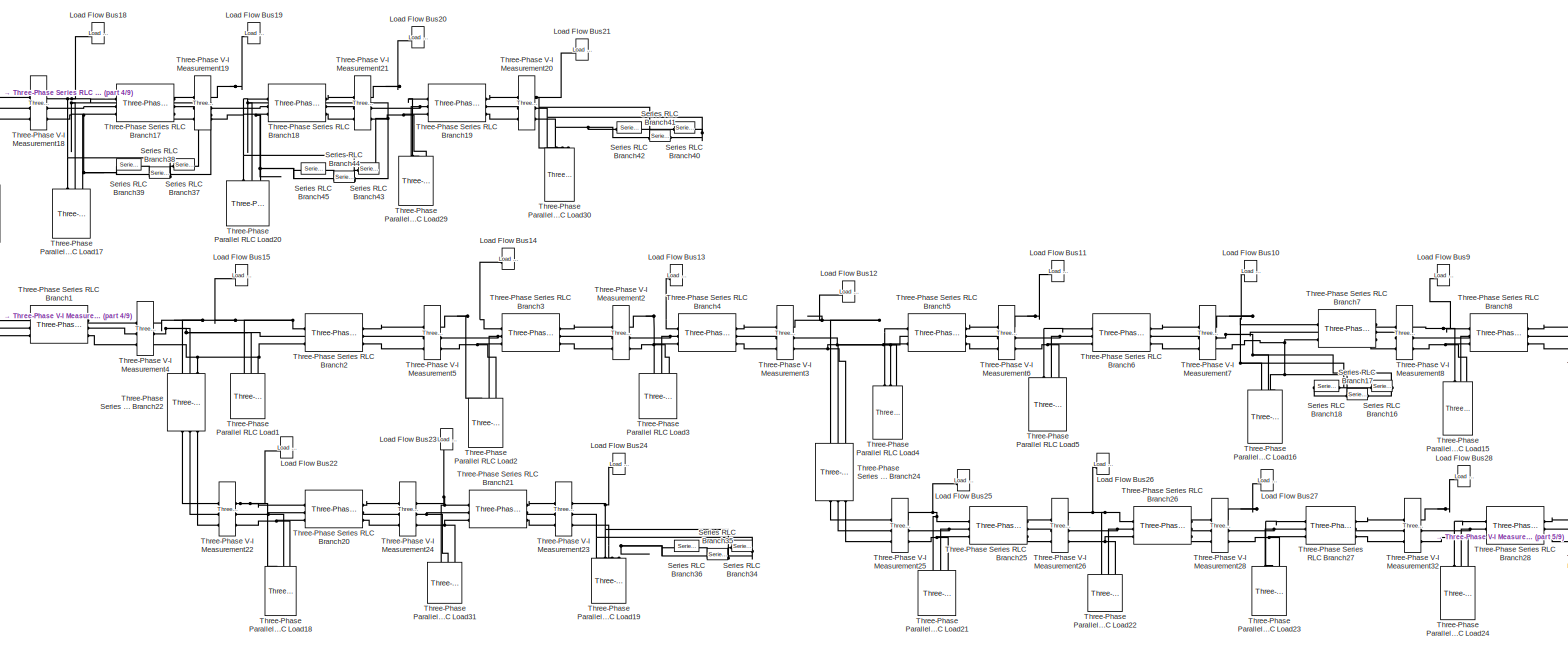
[diagram: root canvas - part 1/9, middle left region]
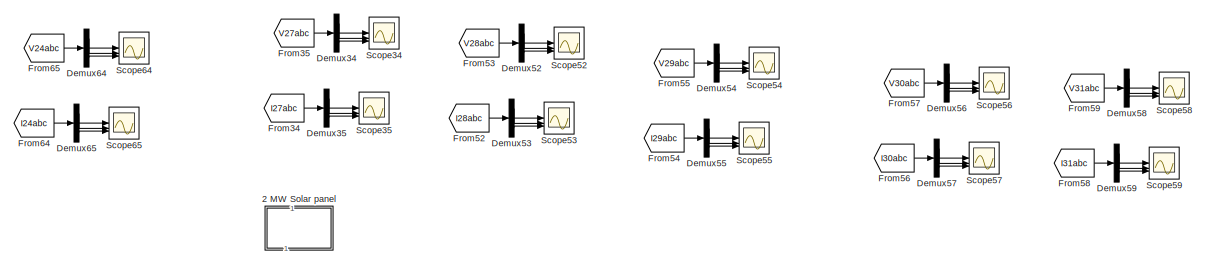
[diagram: root canvas - part 2/9, top right region]
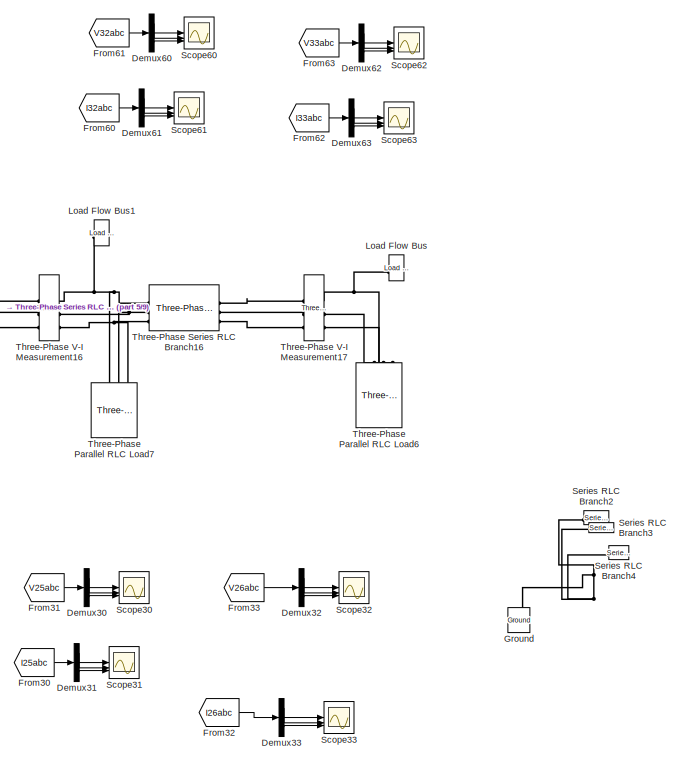
[diagram: root canvas - part 3/9, middle right region]
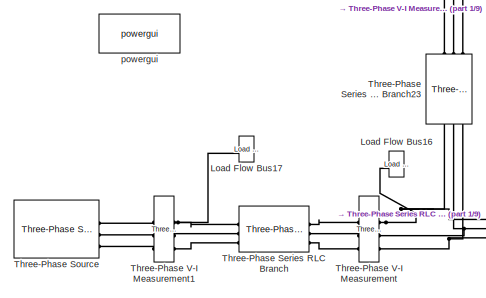
[diagram: root canvas - part 4/9, top left region]
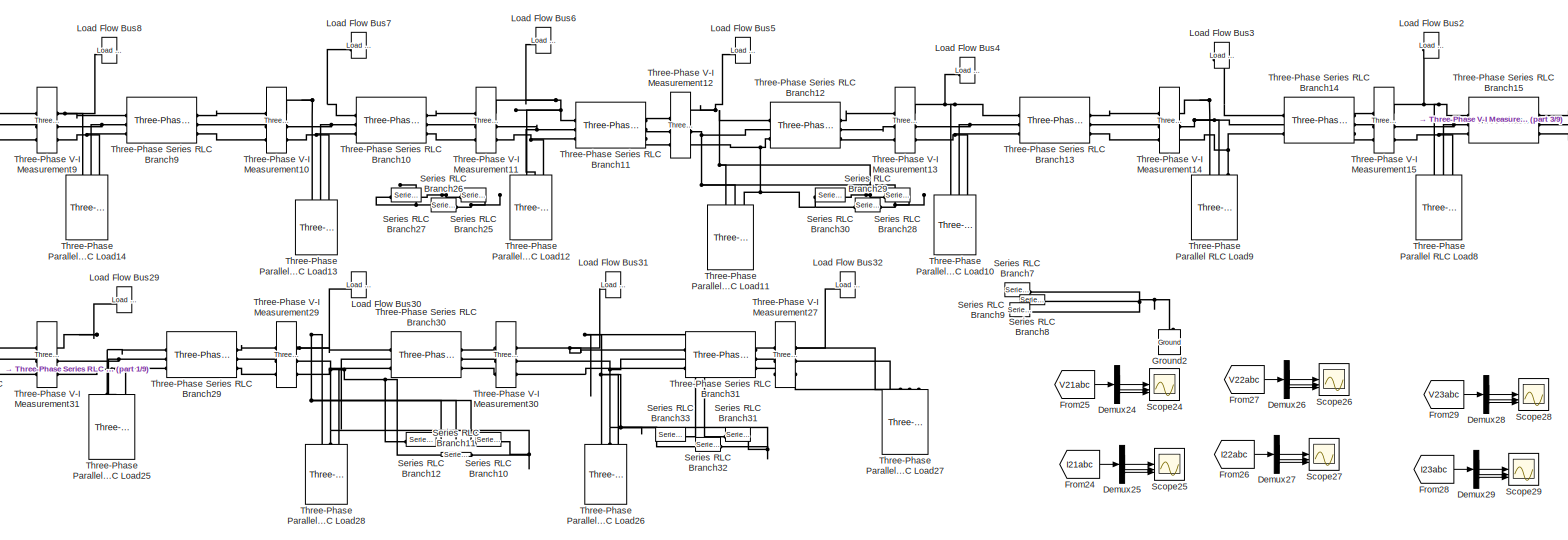
[diagram: root canvas - part 5/9, middle right region]
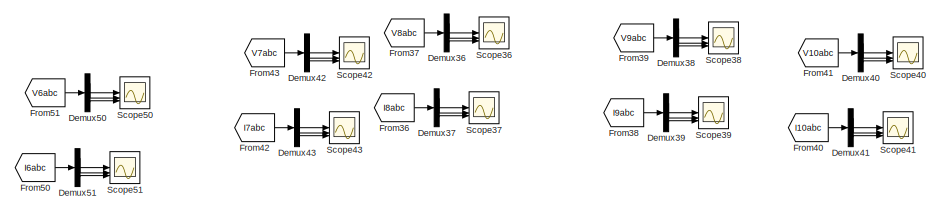
[diagram: root canvas - part 6/9, bottom left region]
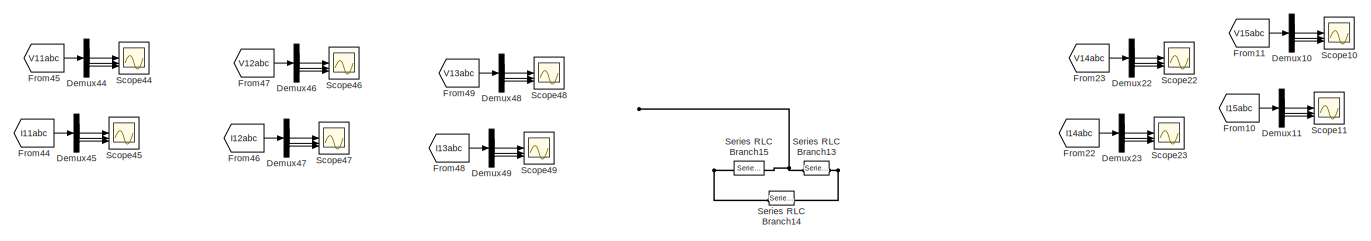
[diagram: root canvas - part 7/9, bottom center region]
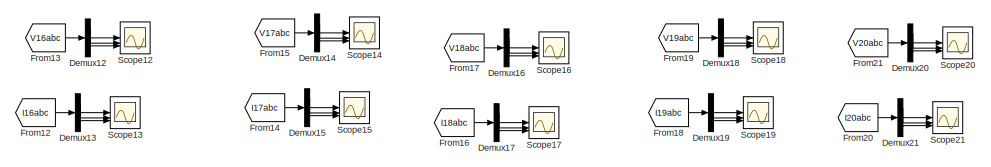
[diagram: root canvas - part 8/9, bottom right region]
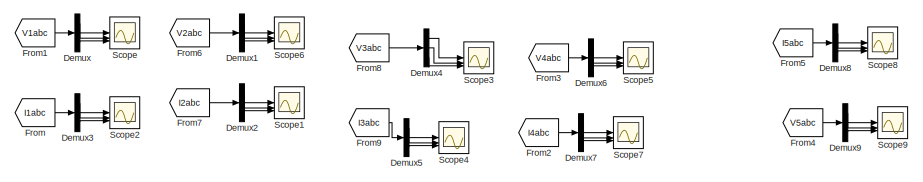
[diagram: root canvas - part 9/9, bottom left region]
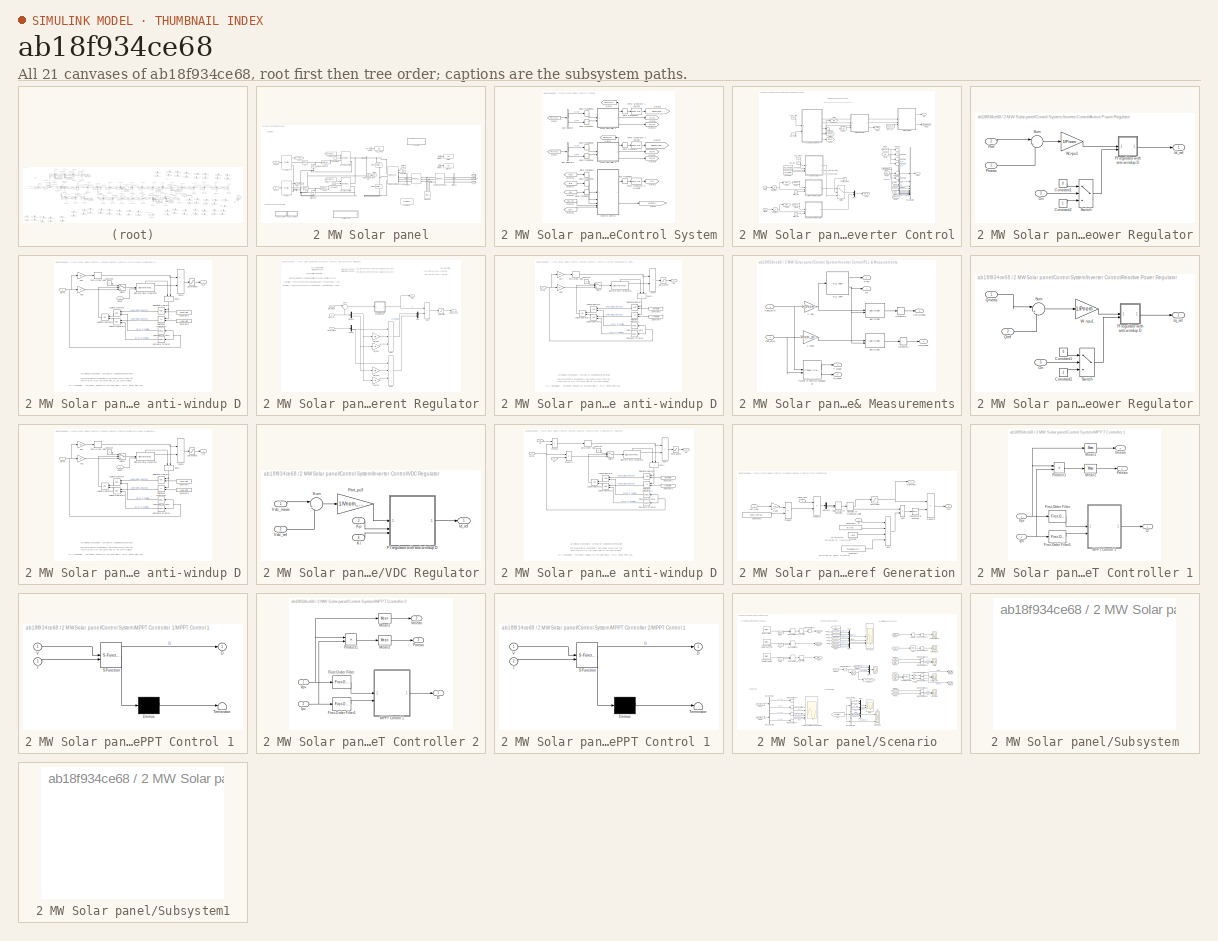
[diagram: thumbnail index - all 21 canvases of the model, root first then tree order]
MODEL slx_ab18f934ce68
KIND model
CONFIG AbsTol = auto
CONFIG EnableMultiTasking = on
CONFIG FixedStep = auto
CONFIG MaxStep = auto
CONFIG MinStep = auto
CONFIG RelTol = 1e-3
CONFIG SampleTimeConstraint = Unconstrained
CONFIG SolverName = FixedStepAuto
CONFIG StartTime = 0.0
CONFIG StopTime = 0.3
BLOCK [SubSystem] 2 MW Solar panel
  NameLocation = left
BLOCK [Reference] 2 MW Solar panel/150 kvar  REF=spsThreePhaseSeriesRLCLoadLib/Three-Phase
Series RLC Load
  AttributesFormatString = \n
  LibrarySourceBlock = sps_lib/Passives/Three-Phase\nSeries RLC Load
  SourceBlock = spsThreePhaseSeriesRLCLoadLib/Three-Phase\nSeries RLC Load
  SourceType = Three-Phase Series RLC Load
BLOCK [Reference] 2 MW Solar panel/2.25-MVA 500V // 25 kV  REF=spsThreePhaseTransformerTwoWindingsLib/Three-Phase
Transformer
(Two Windings)
  AttributesFormatString = \n
  LibrarySourceBlock = sps_lib/Power Grid Elements/Three-Phase\nTransformer\n(Two Windings)
  SourceBlock = spsThreePhaseTransformerTwoWindingsLib/Three-Phase\nTransformer\n(Two Windings)
  SourceType = Three-Phase Transformer (Two Windings)
BLOCK [Reference] 2 MW Solar panel/Boost Converter1  REF=spsBoostConverterLib/Boost Converter
  LibrarySourceBlock = sps_lib/Power Electronics/Boost Converter
  SourceBlock = spsBoostConverterLib/Boost Converter
  SourceType = Boost Converter
BLOCK [Reference] 2 MW Solar panel/Boost Converter2  REF=spsBoostConverterLib/Boost Converter
  LibrarySourceBlock = sps_lib/Power Electronics/Boost Converter
  SourceBlock = spsBoostConverterLib/Boost Converter
  SourceType = Boost Converter
BLOCK [Reference] 2 MW Solar panel/Clink M  REF=spsSeriesRLCBranchLib/Series RLC Branch
  LibrarySourceBlock = sps_lib/Passives/Series RLC Branch
  NameLocation = left
  SourceBlock = spsSeriesRLCBranchLib/Series RLC Branch
  SourceType = Series RLC Branch
BLOCK [Reference] 2 MW Solar panel/Clink P  REF=spsSeriesRLCBranchLib/Series RLC Branch
  LibrarySourceBlock = sps_lib/Passives/Series RLC Branch
  NameLocation = left
  SourceBlock = spsSeriesRLCBranchLib/Series RLC Branch
  SourceType = Series RLC Branch
BLOCK [Constant] 2 MW Solar panel/Constant
  SampleTime = Ts
  Value = 0
BLOCK [Constant] 2 MW Solar panel/Constant7
  SampleTime = Ts
  Value = 0
BLOCK [Constant] 2 MW Solar panel/Constant8
  SampleTime = Ts
  Value = 0
BLOCK [SubSystem] 2 MW Solar panel/Control System
BLOCK [BusSelector] 2 MW Solar panel/Control System/Bus Selector
  OutputSignals = V_PV,I_PV
BLOCK [BusSelector] 2 MW Solar panel/Control System/Bus Selector2
  OutputSignals = V_PV,I_PV
BLOCK [From] 2 MW Solar panel/Control System/From1
  GotoTag = PVArray1
  TagVisibility = global
BLOCK [From] 2 MW Solar panel/Control System/From2
  GotoTag = PVArray2
  TagVisibility = global
BLOCK [From] 2 MW Solar panel/Control System/From23
  GotoTag = Vgrid
  TagVisibility = global
BLOCK [From] 2 MW Solar panel/Control System/From24
  GotoTag = Igrid
  TagVisibility = global
BLOCK [From] 2 MW Solar panel/Control System/From25
  GotoTag = Vdc
  TagVisibility = global
BLOCK [From] 2 MW Solar panel/Control System/From26
  GotoTag = Qref
  TagVisibility = global
BLOCK [From] 2 MW Solar panel/Control System/From28
  GotoTag = Vdc_ref
  TagVisibility = global
BLOCK [Goto] 2 MW Solar panel/Control System/Goto1
  GotoTag = Dboost_PV1
  TagVisibility = global
BLOCK [Goto] 2 MW Solar panel/Control System/Goto10
  GotoTag = BoostConverter1
  TagVisibility = global
BLOCK [Goto] 2 MW Solar panel/Control System/Goto11
  GotoTag = Vref
  TagVisibility = global
BLOCK [Goto] 2 MW Solar panel/Control System/Goto13
  GotoTag = Pm_PV1
  TagVisibility = global
BLOCK [Goto] 2 MW Solar panel/Control System/Goto15
  GotoTag = BoostConverter2
  TagVisibility = global
BLOCK [Goto] 2 MW Solar panel/Control System/Goto19
  GotoTag = Pm_PV2
  TagVisibility = global
BLOCK [Goto] 2 MW Solar panel/Control System/Goto2
  GotoTag = Dboost_PV2
  TagVisibility = global
BLOCK [Goto] 2 MW Solar panel/Control System/Goto20
  GotoTag = Vm_PV2
  TagVisibility = global
BLOCK [Goto] 2 MW Solar panel/Control System/Goto7
  GotoTag = InverterControl
  TagVisibility = global
BLOCK [Goto] 2 MW Solar panel/Control System/Goto9
  GotoTag = Vm_PV1
  TagVisibility = global
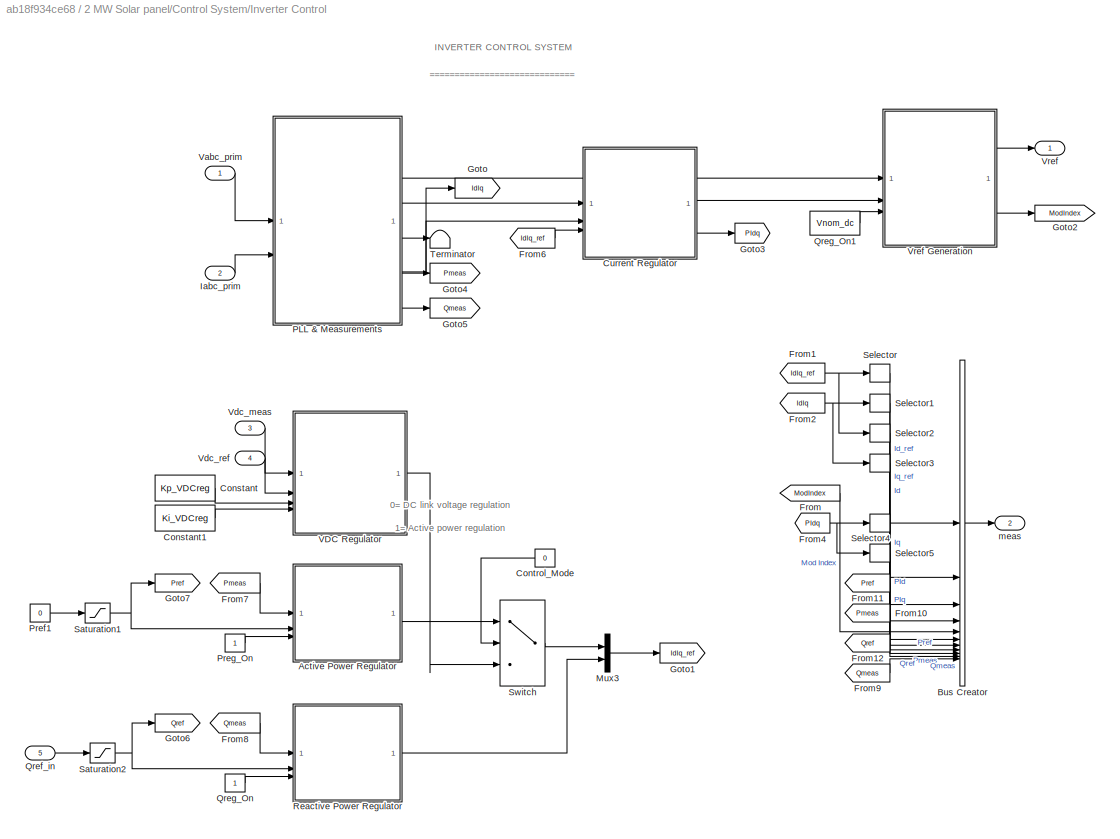
BLOCK [SubSystem] 2 MW Solar panel/Control System/Inverter Control
BLOCK [SubSystem] 2 MW Solar panel/Control System/Inverter Control/Active Power Regulator
BLOCK [Constant] 2 MW Solar panel/Control System/Inverter Control/Active Power Regulator/Constant1
  Value = 0
BLOCK [Constant] 2 MW Solar panel/Control System/Inverter Control/Active Power Regulator/Constant2
BLOCK [Outport] 2 MW Solar panel/Control System/Inverter Control/Active Power Regulator/Id_ref
  InitialOutput = 0
  VectorParamsAs1DForOutWhenUnconnected = off
BLOCK [Inport] 2 MW Solar panel/Control System/Inverter Control/Active Power Regulator/On
  Port = 3
  PortDimensions = 1
BLOCK [SubSystem] 2 MW Solar panel/Control System/Inverter Control/Active Power Regulator/PI regulator with anti-windup D
  DialogController = POWERSYS.PowerSysDialog
BLOCK [Reference] 2 MW Solar panel/Control System/Inverter Control/Active Power Regulator/PI regulator with anti-windup D/Compare To Zero  REF=simulink/Logic and Bit
Operations/Compare
To Zero
  SourceBlock = simulink/Logic and Bit\nOperations/Compare\nTo Zero
  SourceType = Compare To Zero
BLOCK [Reference] 2 MW Solar panel/Control System/Inverter Control/Active Power Regulator/PI regulator with anti-windup D/Compare To Zero1  REF=simulink/Logic and Bit
Operations/Compare
To Zero
  SourceBlock = simulink/Logic and Bit\nOperations/Compare\nTo Zero
  SourceType = Compare To Zero
BLOCK [Constant] 2 MW Solar panel/Control System/Inverter Control/Active Power Regulator/PI regulator with anti-windup D/Constant
  Value = 0
BLOCK [Constant] 2 MW Solar panel/Control System/Inverter Control/Active Power Regulator/PI regulator with anti-windup D/Constant1
  Value = UpperLimit
BLOCK [Constant] 2 MW Solar panel/Control System/Inverter Control/Active Power Regulator/PI regulator with anti-windup D/Constant3
  Value = LowerLimit
BLOCK [DiscreteIntegrator] 2 MW Solar panel/Control System/Inverter Control/Active Power Regulator/PI regulator with anti-windup D/Discrete-Time Integrator
  ExternalReset = level
  ICPrevOutput = DiscIntNeverNeededParam
  ICPrevScaledInput = DiscIntNeverNeededParam
  InitialCondition = Init
  IntegratorMethod = Integration: Trapezoidal
  LimitOutput = on
  LowerSaturationLimit = LowerLimit
  SampleTime = Ts
  ShowStatePort = on
  UpperSaturationLimit = UpperLimit
BLOCK [Inport] 2 MW Solar panel/Control System/Inverter Control/Active Power Regulator/PI regulator with anti-windup D/Error
  SampleTime = Ts
BLOCK [Gain] 2 MW Solar panel/Control System/Inverter Control/Active Power Regulator/PI regulator with anti-windup D/Kp4
  Gain = Kp
  OutDataTypeStr = Inherit: Same as input
  ParamDataTypeStr = Inherit: Same as input
  SampleTime = Ts
  SaturateOnIntegerOverflow = on
BLOCK [Gain] 2 MW Solar panel/Control System/Inverter Control/Active Power Regulator/PI regulator with anti-windup D/Kp5
  Gain = Ki
  OutDataTypeStr = Inherit: Same as input
  ParamDataTypeStr = Inherit: Same as input
  SampleTime = Ts
  SaturateOnIntegerOverflow = on
BLOCK [Logic] 2 MW Solar panel/Control System/Inverter Control/Active Power Regulator/PI regulator with anti-windup D/Logical Operator
  AllPortsSameDT = off
  OutDataTypeStr = boolean
BLOCK [Logic] 2 MW Solar panel/Control System/Inverter Control/Active Power Regulator/PI regulator with anti-windup D/Logical Operator1
  AllPortsSameDT = off
  OutDataTypeStr = boolean
BLOCK [Logic] 2 MW Solar panel/Control System/Inverter Control/Active Power Regulator/PI regulator with anti-windup D/Logical Operator2
  AllPortsSameDT = off
  Operator = OR
  OutDataTypeStr = boolean
BLOCK [Outport] 2 MW Solar panel/Control System/Inverter Control/Active Power Regulator/PI regulator with anti-windup D/Out
  InitialOutput = 0
  SampleTime = Ts
  VectorParamsAs1DForOutWhenUnconnected = off
BLOCK [RelationalOperator] 2 MW Solar panel/Control System/Inverter Control/Active Power Regulator/PI regulator with anti-windup D/Relational Operator
  InputSameDT = off
  OutDataTypeStr = boolean
BLOCK [RelationalOperator] 2 MW Solar panel/Control System/Inverter Control/Active Power Regulator/PI regulator with anti-windup D/Relational Operator1
  InputSameDT = off
  Operator = <=
  OutDataTypeStr = boolean
BLOCK [Inport] 2 MW Solar panel/Control System/Inverter Control/Active Power Regulator/PI regulator with anti-windup D/Reset
  Port = 2
  SampleTime = Ts
BLOCK [Saturate] 2 MW Solar panel/Control System/Inverter Control/Active Power Regulator/PI regulator with anti-windup D/Saturation2
  LowerLimit = LowerLimit
  NameLocation = top
  SampleTime = Ts
  UpperLimit = UpperLimit
BLOCK [Sum] 2 MW Solar panel/Control System/Inverter Control/Active Power Regulator/PI regulator with anti-windup D/Sum1
  IconShape = rectangular
  InputSameDT = on
  NameLocation = left
  OutDataTypeStr = Inherit: Same as first input
  SampleTime = Ts
  SaturateOnIntegerOverflow = on
BLOCK [Sum] 2 MW Solar panel/Control System/Inverter Control/Active Power Regulator/PI regulator with anti-windup D/Sum6
  IconShape = rectangular
  InputSameDT = on
  OutDataTypeStr = Inherit: Same as first input
  SampleTime = Ts
  SaturateOnIntegerOverflow = on
BLOCK [Switch] 2 MW Solar panel/Control System/Inverter Control/Active Power Regulator/PI regulator with anti-windup D/Switch
  Criteria = u2 > Threshold
  InputSameDT = off
  SaturateOnIntegerOverflow = off
BLOCK [ZeroOrderHold] 2 MW Solar panel/Control System/Inverter Control/Active Power Regulator/PI regulator with anti-windup D/Zero-Order Hold
  SampleTime = Ts
BLOCK [Inport] 2 MW Solar panel/Control System/Inverter Control/Active Power Regulator/Pmeas
  PortDimensions = 1
BLOCK [Inport] 2 MW Solar panel/Control System/Inverter Control/Active Power Regulator/Pref
  Port = 2
  PortDimensions = 1
BLOCK [Sum] 2 MW Solar panel/Control System/Inverter Control/Active Power Regulator/Sum
  Inputs = |+-
BLOCK [Switch] 2 MW Solar panel/Control System/Inverter Control/Active Power Regulator/Switch
  Criteria = u2 ~= 0
  InputSameDT = off
  SaturateOnIntegerOverflow = off
BLOCK [Gain] 2 MW Solar panel/Control System/Inverter Control/Active Power Regulator/W->pu1
  Gain = 1/Pnom
  OutDataTypeStr = Inherit: Same as input
  ParamDataTypeStr = Inherit: Same as input
  SaturateOnIntegerOverflow = on
BLOCK [BusCreator] 2 MW Solar panel/Control System/Inverter Control/Bus Creator
  DisplayOption = bar
  InheritFromInputs = on
  Inputs = 11
BLOCK [Constant] 2 MW Solar panel/Control System/Inverter Control/Constant
  SampleTime = Ts
  Value = Kp_VDCreg
BLOCK [Constant] 2 MW Solar panel/Control System/Inverter Control/Constant1
  SampleTime = Ts
  Value = Ki_VDCreg
BLOCK [Constant] 2 MW Solar panel/Control System/Inverter Control/Control_Mode
  Value = 0
BLOCK [SubSystem] 2 MW Solar panel/Control System/Inverter Control/Current Regulator
BLOCK [Sum] 2 MW Solar panel/Control System/Inverter Control/Current Regulator/Add1
  IconShape = rectangular
  Inputs = ++-
BLOCK [Sum] 2 MW Solar panel/Control System/Inverter Control/Current Regulator/Add2
  IconShape = rectangular
BLOCK [Sum] 2 MW Solar panel/Control System/Inverter Control/Current Regulator/Add3
  IconShape = rectangular
  Inputs = +++
BLOCK [Demux] 2 MW Solar panel/Control System/Inverter Control/Current Regulator/Demux
  Outputs = 2
BLOCK [Demux] 2 MW Solar panel/Control System/Inverter Control/Current Regulator/Demux1
  Outputs = 2
BLOCK [Inport] 2 MW Solar panel/Control System/Inverter Control/Current Regulator/IdIq_meas
  Port = 2
  PortDimensions = 2
BLOCK [Inport] 2 MW Solar panel/Control System/Inverter Control/Current Regulator/IdIq_ref
  Port = 3
  PortDimensions = 2
BLOCK [Gain] 2 MW Solar panel/Control System/Inverter Control/Current Regulator/Ltot_pu1
  Gain = Lff
  OutDataTypeStr = Inherit: Same as input
  ParamDataTypeStr = Inherit: Same as input
  SaturateOnIntegerOverflow = on
BLOCK [Gain] 2 MW Solar panel/Control System/Inverter Control/Current Regulator/Ltot_pu2
  Gain = Lff
  OutDataTypeStr = Inherit: Same as input
  ParamDataTypeStr = Inherit: Same as input
  SaturateOnIntegerOverflow = on
BLOCK [Mux] 2 MW Solar panel/Control System/Inverter Control/Current Regulator/Mux
  DisplayOption = bar
  Inputs = 2
BLOCK [SubSystem] 2 MW Solar panel/Control System/Inverter Control/Current Regulator/PI regulator with anti-windup D
  DialogController = POWERSYS.PowerSysDialog
BLOCK [Reference] 2 MW Solar panel/Control System/Inverter Control/Current Regulator/PI regulator with anti-windup D/Compare To Zero  REF=simulink/Logic and Bit
Operations/Compare
To Zero
  SourceBlock = simulink/Logic and Bit\nOperations/Compare\nTo Zero
  SourceType = Compare To Zero
BLOCK [Reference] 2 MW Solar panel/Control System/Inverter Control/Current Regulator/PI regulator with anti-windup D/Compare To Zero1  REF=simulink/Logic and Bit
Operations/Compare
To Zero
  SourceBlock = simulink/Logic and Bit\nOperations/Compare\nTo Zero
  SourceType = Compare To Zero
BLOCK [Constant] 2 MW Solar panel/Control System/Inverter Control/Current Regulator/PI regulator with anti-windup D/Constant
  Value = 0
BLOCK [Constant] 2 MW Solar panel/Control System/Inverter Control/Current Regulator/PI regulator with anti-windup D/Constant1
  Value = UpperLimit
BLOCK [Constant] 2 MW Solar panel/Control System/Inverter Control/Current Regulator/PI regulator with anti-windup D/Constant3
  Value = LowerLimit
BLOCK [DiscreteIntegrator] 2 MW Solar panel/Control System/Inverter Control/Current Regulator/PI regulator with anti-windup D/Discrete-Time Integrator
  ICPrevOutput = DiscIntNeverNeededParam
  ICPrevScaledInput = DiscIntNeverNeededParam
  InitialCondition = Init
  IntegratorMethod = Integration: Trapezoidal
  LimitOutput = on
  LowerSaturationLimit = LowerLimit
  SampleTime = Ts
  ShowStatePort = on
  UpperSaturationLimit = UpperLimit
BLOCK [Inport] 2 MW Solar panel/Control System/Inverter Control/Current Regulator/PI regulator with anti-windup D/Error
  SampleTime = Ts
BLOCK [Gain] 2 MW Solar panel/Control System/Inverter Control/Current Regulator/PI regulator with anti-windup D/Kp4
  Gain = Kp
  OutDataTypeStr = Inherit: Same as input
  ParamDataTypeStr = Inherit: Same as input
  SampleTime = Ts
  SaturateOnIntegerOverflow = on
BLOCK [Gain] 2 MW Solar panel/Control System/Inverter Control/Current Regulator/PI regulator with anti-windup D/Kp5
  Gain = Ki
  OutDataTypeStr = Inherit: Same as input
  ParamDataTypeStr = Inherit: Same as input
  SampleTime = Ts
  SaturateOnIntegerOverflow = on
BLOCK [Logic] 2 MW Solar panel/Control System/Inverter Control/Current Regulator/PI regulator with anti-windup D/Logical Operator
  AllPortsSameDT = off
  OutDataTypeStr = boolean
BLOCK [Logic] 2 MW Solar panel/Control System/Inverter Control/Current Regulator/PI regulator with anti-windup D/Logical Operator1
  AllPortsSameDT = off
  OutDataTypeStr = boolean
BLOCK [Logic] 2 MW Solar panel/Control System/Inverter Control/Current Regulator/PI regulator with anti-windup D/Logical Operator2
  AllPortsSameDT = off
  Operator = OR
  OutDataTypeStr = boolean
BLOCK [Outport] 2 MW Solar panel/Control System/Inverter Control/Current Regulator/PI regulator with anti-windup D/Out
  InitialOutput = 0
  SampleTime = Ts
  VectorParamsAs1DForOutWhenUnconnected = off
BLOCK [RelationalOperator] 2 MW Solar panel/Control System/Inverter Control/Current Regulator/PI regulator with anti-windup D/Relational Operator
  InputSameDT = off
  OutDataTypeStr = boolean
BLOCK [RelationalOperator] 2 MW Solar panel/Control System/Inverter Control/Current Regulator/PI regulator with anti-windup D/Relational Operator1
  InputSameDT = off
  Operator = <=
  OutDataTypeStr = boolean
BLOCK [Saturate] 2 MW Solar panel/Control System/Inverter Control/Current Regulator/PI regulator with anti-windup D/Saturation2
  LowerLimit = LowerLimit
  NameLocation = top
  SampleTime = Ts
  UpperLimit = UpperLimit
BLOCK [Sum] 2 MW Solar panel/Control System/Inverter Control/Current Regulator/PI regulator with anti-windup D/Sum1
  IconShape = rectangular
  InputSameDT = on
  NameLocation = left
  OutDataTypeStr = Inherit: Same as first input
  SampleTime = Ts
  SaturateOnIntegerOverflow = on
BLOCK [Sum] 2 MW Solar panel/Control System/Inverter Control/Current Regulator/PI regulator with anti-windup D/Sum6
  IconShape = rectangular
  InputSameDT = on
  OutDataTypeStr = Inherit: Same as first input
  SampleTime = Ts
  SaturateOnIntegerOverflow = on
BLOCK [Switch] 2 MW Solar panel/Control System/Inverter Control/Current Regulator/PI regulator with anti-windup D/Switch
  Criteria = u2 > Threshold
  InputSameDT = off
  SaturateOnIntegerOverflow = off
BLOCK [ZeroOrderHold] 2 MW Solar panel/Control System/Inverter Control/Current Regulator/PI regulator with anti-windup D/Zero-Order Hold
  SampleTime = Ts
BLOCK [Outport] 2 MW Solar panel/Control System/Inverter Control/Current Regulator/PIdq
  Port = 2
  VectorParamsAs1DForOutWhenUnconnected = off
BLOCK [Gain] 2 MW Solar panel/Control System/Inverter Control/Current Regulator/Rtot_pu1
  Gain = Rff
  NameLocation = top
  OutDataTypeStr = Inherit: Same as input
  ParamDataTypeStr = Inherit: Same as input
  SaturateOnIntegerOverflow = on
BLOCK [Gain] 2 MW Solar panel/Control System/Inverter Control/Current Regulator/Rtot_pu5
  Gain = Rff
  NameLocation = top
  OutDataTypeStr = Inherit: Same as input
  ParamDataTypeStr = Inherit: Same as input
  SaturateOnIntegerOverflow = on
BLOCK [Saturate] 2 MW Solar panel/Control System/Inverter Control/Current Regulator/Saturation
  LowerLimit = Limits_Ireg(2)
  UpperLimit = Limits_Ireg(1)
BLOCK [Sum] 2 MW Solar panel/Control System/Inverter Control/Current Regulator/Sum
  Inputs = |-+
BLOCK [Outport] 2 MW Solar panel/Control System/Inverter Control/Current Regulator/VdVq_conv
  VectorParamsAs1DForOutWhenUnconnected = off
BLOCK [Inport] 2 MW Solar panel/Control System/Inverter Control/Current Regulator/VdVq_meas
  PortDimensions = 2
BLOCK [From] 2 MW Solar panel/Control System/Inverter Control/From
  GotoTag = ModIndex
BLOCK [From] 2 MW Solar panel/Control System/Inverter Control/From1
  GotoTag = IdIq_ref
BLOCK [From] 2 MW Solar panel/Control System/Inverter Control/From10
  GotoTag = Pmeas
BLOCK [From] 2 MW Solar panel/Control System/Inverter Control/From11
  GotoTag = Pref
BLOCK [From] 2 MW Solar panel/Control System/Inverter Control/From12
  GotoTag = Qref
BLOCK [From] 2 MW Solar panel/Control System/Inverter Control/From2
  GotoTag = IdIq
BLOCK [From] 2 MW Solar panel/Control System/Inverter Control/From4
  GotoTag = PIdq
BLOCK [From] 2 MW Solar panel/Control System/Inverter Control/From6
  GotoTag = IdIq_ref
BLOCK [From] 2 MW Solar panel/Control System/Inverter Control/From7
  GotoTag = Pmeas
BLOCK [From] 2 MW Solar panel/Control System/Inverter Control/From8
  GotoTag = Qmeas
BLOCK [From] 2 MW Solar panel/Control System/Inverter Control/From9
  GotoTag = Qmeas
BLOCK [Goto] 2 MW Solar panel/Control System/Inverter Control/Goto
  GotoTag = IdIq
BLOCK [Goto] 2 MW Solar panel/Control System/Inverter Control/Goto1
  GotoTag = IdIq_ref
BLOCK [Goto] 2 MW Solar panel/Control System/Inverter Control/Goto2
  GotoTag = ModIndex
BLOCK [Goto] 2 MW Solar panel/Control System/Inverter Control/Goto3
  GotoTag = PIdq
BLOCK [Goto] 2 MW Solar panel/Control System/Inverter Control/Goto4
  GotoTag = Pmeas
BLOCK [Goto] 2 MW Solar panel/Control System/Inverter Control/Goto5
  GotoTag = Qmeas
BLOCK [Goto] 2 MW Solar panel/Control System/Inverter Control/Goto6
  GotoTag = Qref
BLOCK [Goto] 2 MW Solar panel/Control System/Inverter Control/Goto7
  GotoTag = Pref
BLOCK [Inport] 2 MW Solar panel/Control System/Inverter Control/Iabc_prim
  Port = 2
  PortDimensions = 3
BLOCK [Mux] 2 MW Solar panel/Control System/Inverter Control/Mux3
  DisplayOption = bar
  Inputs = 2
BLOCK [SubSystem] 2 MW Solar panel/Control System/Inverter Control/PLL & Measurements
BLOCK [Outport] 2 MW Solar panel/Control System/Inverter Control/PLL & Measurements/Freq
  Port = 4
  VectorParamsAs1DForOutWhenUnconnected = off
BLOCK [Inport] 2 MW Solar panel/Control System/Inverter Control/PLL & Measurements/Iabc_prim
  Port = 2
BLOCK [Outport] 2 MW Solar panel/Control System/Inverter Control/PLL & Measurements/IdIq_meas
  Port = 3
  VectorParamsAs1DForOutWhenUnconnected = off
BLOCK [Reference] 2 MW Solar panel/Control System/Inverter Control/PLL & Measurements/PLL (3ph)  REF=spsPLL3phLib/PLL
(3ph)
  LibrarySourceBlock = sps_lib/Control/PLL\n(3ph)
  SourceBlock = spsPLL3phLib/PLL\n(3ph)
  SourceType = PLL (3ph)
BLOCK [Outport] 2 MW Solar panel/Control System/Inverter Control/PLL & Measurements/P_meas
  Port = 5
  VectorParamsAs1DForOutWhenUnconnected = off
BLOCK [Reference] 2 MW Solar panel/Control System/Inverter Control/PLL & Measurements/Power (Positive-Sequence)  REF=spsPowerPositiveSequenceLib/Power
(Positive-Sequence)
  LibrarySourceBlock = sps_lib/Sensors and Measurements/Power\n(Positive-Sequence)
  SourceBlock = spsPowerPositiveSequenceLib/Power\n(Positive-Sequence)
  SourceType = Power (Positive-Sequence)
BLOCK [Outport] 2 MW Solar panel/Control System/Inverter Control/PLL & Measurements/Q_meas
  Port = 6
  VectorParamsAs1DForOutWhenUnconnected = off
BLOCK [Selector] 2 MW Solar panel/Control System/Inverter Control/PLL & Measurements/Selector1
  IndexOptions = Index vector (dialog)
  Indices = [1 2]
  InputPortWidth = 3
  OutputSizes = 1
BLOCK [Selector] 2 MW Solar panel/Control System/Inverter Control/PLL & Measurements/Selector2
  IndexOptions = Index vector (dialog)
  Indices = [1 2]
  InputPortWidth = 3
  OutputSizes = 1
BLOCK [Gain] 2 MW Solar panel/Control System/Inverter Control/PLL & Measurements/V->pu
  Gain = 1/(Vnom_prim*sqrt(2)/sqrt(3))
  OutDataTypeStr = Inherit: Same as input
  ParamDataTypeStr = Inherit: Same as input
  SaturateOnIntegerOverflow = on
BLOCK [Gain] 2 MW Solar panel/Control System/Inverter Control/PLL & Measurements/V->pu1
  Gain = Vnom_prim*sqrt(3)/Pnom/sqrt(2)
  OutDataTypeStr = Inherit: Same as input
  ParamDataTypeStr = Inherit: Same as input
  SaturateOnIntegerOverflow = on
BLOCK [Inport] 2 MW Solar panel/Control System/Inverter Control/PLL & Measurements/Vabc_prim
BLOCK [Outport] 2 MW Solar panel/Control System/Inverter Control/PLL & Measurements/VdVq_meas
  Port = 2
  VectorParamsAs1DForOutWhenUnconnected = off
BLOCK [Reference] 2 MW Solar panel/Control System/Inverter Control/PLL & Measurements/abc to dq0  REF=spsabctodq0Lib/abc to dq0
  LibrarySourceBlock = sps_lib/Control/abc to dq0
  SourceBlock = spsabctodq0Lib/abc to dq0
  SourceType = abc to dq0 Transformation
BLOCK [Reference] 2 MW Solar panel/Control System/Inverter Control/PLL & Measurements/abc to dq1  REF=spsabctodq0Lib/abc to dq0
  LibrarySourceBlock = sps_lib/Control/abc to dq0
  SourceBlock = spsabctodq0Lib/abc to dq0
  SourceType = abc to dq0 Transformation
BLOCK [Outport] 2 MW Solar panel/Control System/Inverter Control/PLL & Measurements/wt
  VectorParamsAs1DForOutWhenUnconnected = off
BLOCK [Constant] 2 MW Solar panel/Control System/Inverter Control/Pref1
  SampleTime = Ts
  Value = 0
BLOCK [Constant] 2 MW Solar panel/Control System/Inverter Control/Preg_On
BLOCK [Inport] 2 MW Solar panel/Control System/Inverter Control/Qref_in
  Port = 5
  PortDimensions = 1
BLOCK [Constant] 2 MW Solar panel/Control System/Inverter Control/Qreg_On
BLOCK [Constant] 2 MW Solar panel/Control System/Inverter Control/Qreg_On1
  Value = Vnom_dc
BLOCK [SubSystem] 2 MW Solar panel/Control System/Inverter Control/Reactive Power Regulator
BLOCK [Constant] 2 MW Solar panel/Control System/Inverter Control/Reactive Power Regulator/Constant1
  Value = 0
BLOCK [Constant] 2 MW Solar panel/Control System/Inverter Control/Reactive Power Regulator/Constant2
BLOCK [Outport] 2 MW Solar panel/Control System/Inverter Control/Reactive Power Regulator/Iq_ref
  InitialOutput = 0
  VectorParamsAs1DForOutWhenUnconnected = off
BLOCK [Inport] 2 MW Solar panel/Control System/Inverter Control/Reactive Power Regulator/On
  Port = 3
  PortDimensions = 1
BLOCK [SubSystem] 2 MW Solar panel/Control System/Inverter Control/Reactive Power Regulator/PI regulator with anti-windup D
  DialogController = POWERSYS.PowerSysDialog
BLOCK [Reference] 2 MW Solar panel/Control System/Inverter Control/Reactive Power Regulator/PI regulator with anti-windup D/Compare To Zero  REF=simulink/Logic and Bit
Operations/Compare
To Zero
  SourceBlock = simulink/Logic and Bit\nOperations/Compare\nTo Zero
  SourceType = Compare To Zero
BLOCK [Reference] 2 MW Solar panel/Control System/Inverter Control/Reactive Power Regulator/PI regulator with anti-windup D/Compare To Zero1  REF=simulink/Logic and Bit
Operations/Compare
To Zero
  SourceBlock = simulink/Logic and Bit\nOperations/Compare\nTo Zero
  SourceType = Compare To Zero
BLOCK [Constant] 2 MW Solar panel/Control System/Inverter Control/Reactive Power Regulator/PI regulator with anti-windup D/Constant
  Value = 0
BLOCK [Constant] 2 MW Solar panel/Control System/Inverter Control/Reactive Power Regulator/PI regulator with anti-windup D/Constant1
  Value = UpperLimit
BLOCK [Constant] 2 MW Solar panel/Control System/Inverter Control/Reactive Power Regulator/PI regulator with anti-windup D/Constant3
  Value = LowerLimit
BLOCK [DiscreteIntegrator] 2 MW Solar panel/Control System/Inverter Control/Reactive Power Regulator/PI regulator with anti-windup D/Discrete-Time Integrator
  ExternalReset = level
  ICPrevOutput = DiscIntNeverNeededParam
  ICPrevScaledInput = DiscIntNeverNeededParam
  InitialCondition = Init
  IntegratorMethod = Integration: Trapezoidal
  LimitOutput = on
  LowerSaturationLimit = LowerLimit
  SampleTime = Ts
  ShowStatePort = on
  UpperSaturationLimit = UpperLimit
BLOCK [Inport] 2 MW Solar panel/Control System/Inverter Control/Reactive Power Regulator/PI regulator with anti-windup D/Error
  SampleTime = Ts
BLOCK [Gain] 2 MW Solar panel/Control System/Inverter Control/Reactive Power Regulator/PI regulator with anti-windup D/Kp4
  Gain = Kp
  OutDataTypeStr = Inherit: Same as input
  ParamDataTypeStr = Inherit: Same as input
  SampleTime = Ts
  SaturateOnIntegerOverflow = on
BLOCK [Gain] 2 MW Solar panel/Control System/Inverter Control/Reactive Power Regulator/PI regulator with anti-windup D/Kp5
  Gain = Ki
  OutDataTypeStr = Inherit: Same as input
  ParamDataTypeStr = Inherit: Same as input
  SampleTime = Ts
  SaturateOnIntegerOverflow = on
BLOCK [Logic] 2 MW Solar panel/Control System/Inverter Control/Reactive Power Regulator/PI regulator with anti-windup D/Logical Operator
  AllPortsSameDT = off
  OutDataTypeStr = boolean
BLOCK [Logic] 2 MW Solar panel/Control System/Inverter Control/Reactive Power Regulator/PI regulator with anti-windup D/Logical Operator1
  AllPortsSameDT = off
  OutDataTypeStr = boolean
BLOCK [Logic] 2 MW Solar panel/Control System/Inverter Control/Reactive Power Regulator/PI regulator with anti-windup D/Logical Operator2
  AllPortsSameDT = off
  Operator = OR
  OutDataTypeStr = boolean
BLOCK [Outport] 2 MW Solar panel/Control System/Inverter Control/Reactive Power Regulator/PI regulator with anti-windup D/Out
  InitialOutput = 0
  SampleTime = Ts
  VectorParamsAs1DForOutWhenUnconnected = off
BLOCK [RelationalOperator] 2 MW Solar panel/Control System/Inverter Control/Reactive Power Regulator/PI regulator with anti-windup D/Relational Operator
  InputSameDT = off
  OutDataTypeStr = boolean
BLOCK [RelationalOperator] 2 MW Solar panel/Control System/Inverter Control/Reactive Power Regulator/PI regulator with anti-windup D/Relational Operator1
  InputSameDT = off
  Operator = <=
  OutDataTypeStr = boolean
BLOCK [Inport] 2 MW Solar panel/Control System/Inverter Control/Reactive Power Regulator/PI regulator with anti-windup D/Reset
  Port = 2
  SampleTime = Ts
BLOCK [Saturate] 2 MW Solar panel/Control System/Inverter Control/Reactive Power Regulator/PI regulator with anti-windup D/Saturation2
  LowerLimit = LowerLimit
  NameLocation = top
  SampleTime = Ts
  UpperLimit = UpperLimit
BLOCK [Sum] 2 MW Solar panel/Control System/Inverter Control/Reactive Power Regulator/PI regulator with anti-windup D/Sum1
  IconShape = rectangular
  InputSameDT = on
  NameLocation = left
  OutDataTypeStr = Inherit: Same as first input
  SampleTime = Ts
  SaturateOnIntegerOverflow = on
BLOCK [Sum] 2 MW Solar panel/Control System/Inverter Control/Reactive Power Regulator/PI regulator with anti-windup D/Sum6
  IconShape = rectangular
  InputSameDT = on
  OutDataTypeStr = Inherit: Same as first input
  SampleTime = Ts
  SaturateOnIntegerOverflow = on
BLOCK [Switch] 2 MW Solar panel/Control System/Inverter Control/Reactive Power Regulator/PI regulator with anti-windup D/Switch
  Criteria = u2 > Threshold
  InputSameDT = off
  SaturateOnIntegerOverflow = off
BLOCK [ZeroOrderHold] 2 MW Solar panel/Control System/Inverter Control/Reactive Power Regulator/PI regulator with anti-windup D/Zero-Order Hold
  SampleTime = Ts
BLOCK [Inport] 2 MW Solar panel/Control System/Inverter Control/Reactive Power Regulator/Qmeas
  PortDimensions = 1
BLOCK [Inport] 2 MW Solar panel/Control System/Inverter Control/Reactive Power Regulator/Qref
  Port = 2
  PortDimensions = 1
BLOCK [Sum] 2 MW Solar panel/Control System/Inverter Control/Reactive Power Regulator/Sum
  Inputs = |+-
BLOCK [Switch] 2 MW Solar panel/Control System/Inverter Control/Reactive Power Regulator/Switch
  Criteria = u2 ~= 0
  InputSameDT = off
  SaturateOnIntegerOverflow = off
BLOCK [Gain] 2 MW Solar panel/Control System/Inverter Control/Reactive Power Regulator/W->pu1
  Gain = 1/Pnom
  OutDataTypeStr = Inherit: Same as input
  ParamDataTypeStr = Inherit: Same as input
  SaturateOnIntegerOverflow = on
BLOCK [Saturate] 2 MW Solar panel/Control System/Inverter Control/Saturation1
  LowerLimit = -2e6
  UpperLimit = 2e6
BLOCK [Saturate] 2 MW Solar panel/Control System/Inverter Control/Saturation2
  LowerLimit = -1e6
  UpperLimit = 1e6
BLOCK [Selector] 2 MW Solar panel/Control System/Inverter Control/Selector
  IndexOptions = Index vector (dialog)
  Indices = 1
  InputPortWidth = 2
  OutputSizes = 1
BLOCK [Selector] 2 MW Solar panel/Control System/Inverter Control/Selector1
  IndexOptions = Index vector (dialog)
  Indices = 1
  InputPortWidth = 2
  OutputSizes = 1
BLOCK [Selector] 2 MW Solar panel/Control System/Inverter Control/Selector2
  IndexOptions = Index vector (dialog)
  Indices = 2
  InputPortWidth = 2
  OutputSizes = 1
BLOCK [Selector] 2 MW Solar panel/Control System/Inverter Control/Selector3
  IndexOptions = Index vector (dialog)
  Indices = 2
  InputPortWidth = 2
  OutputSizes = 1
BLOCK [Selector] 2 MW Solar panel/Control System/Inverter Control/Selector4
  IndexOptions = Index vector (dialog)
  Indices = 1
  InputPortWidth = 2
  OutputSizes = 1
BLOCK [Selector] 2 MW Solar panel/Control System/Inverter Control/Selector5
  IndexOptions = Index vector (dialog)
  Indices = 2
  InputPortWidth = 2
  OutputSizes = 1
BLOCK [Switch] 2 MW Solar panel/Control System/Inverter Control/Switch
  Criteria = u2 ~= 0
  InputSameDT = off
  SaturateOnIntegerOverflow = off
BLOCK [Terminator] 2 MW Solar panel/Control System/Inverter Control/Terminator
BLOCK [SubSystem] 2 MW Solar panel/Control System/Inverter Control/VDC Regulator
BLOCK [Outport] 2 MW Solar panel/Control System/Inverter Control/VDC Regulator/Id_ref
  InitialOutput = 0
  SampleTime = Ts
  VectorParamsAs1DForOutWhenUnconnected = off
BLOCK [Inport] 2 MW Solar panel/Control System/Inverter Control/VDC Regulator/Ki
  Port = 4
  PortDimensions = 1
BLOCK [Inport] 2 MW Solar panel/Control System/Inverter Control/VDC Regulator/Kp
  Port = 3
  PortDimensions = 1
BLOCK [SubSystem] 2 MW Solar panel/Control System/Inverter Control/VDC Regulator/PI regulator with anti-windup D
  DialogController = POWERSYS.PowerSysDialog
BLOCK [Reference] 2 MW Solar panel/Control System/Inverter Control/VDC Regulator/PI regulator with anti-windup D/Compare To Zero  REF=simulink/Logic and Bit
Operations/Compare
To Zero
  SourceBlock = simulink/Logic and Bit\nOperations/Compare\nTo Zero
  SourceType = Compare To Zero
BLOCK [Reference] 2 MW Solar panel/Control System/Inverter Control/VDC Regulator/PI regulator with anti-windup D/Compare To Zero1  REF=simulink/Logic and Bit
Operations/Compare
To Zero
  SourceBlock = simulink/Logic and Bit\nOperations/Compare\nTo Zero
  SourceType = Compare To Zero
BLOCK [Constant] 2 MW Solar panel/Control System/Inverter Control/VDC Regulator/PI regulator with anti-windup D/Constant
  Value = 0
BLOCK [Constant] 2 MW Solar panel/Control System/Inverter Control/VDC Regulator/PI regulator with anti-windup D/Constant1
  Value = UpperLimit
BLOCK [Constant] 2 MW Solar panel/Control System/Inverter Control/VDC Regulator/PI regulator with anti-windup D/Constant3
  Value = LowerLimit
BLOCK [DiscreteIntegrator] 2 MW Solar panel/Control System/Inverter Control/VDC Regulator/PI regulator with anti-windup D/Discrete-Time Integrator
  ICPrevOutput = DiscIntNeverNeededParam
  ICPrevScaledInput = DiscIntNeverNeededParam
  InitialCondition = Init
  IntegratorMethod = Integration: Trapezoidal
  LimitOutput = on
  LowerSaturationLimit = LowerLimit
  SampleTime = Ts
  ShowStatePort = on
  UpperSaturationLimit = UpperLimit
BLOCK [Inport] 2 MW Solar panel/Control System/Inverter Control/VDC Regulator/PI regulator with anti-windup D/Error
  SampleTime = Ts
BLOCK [Inport] 2 MW Solar panel/Control System/Inverter Control/VDC Regulator/PI regulator with anti-windup D/Ki
  Port = 3
  SampleTime = Ts
BLOCK [Inport] 2 MW Solar panel/Control System/Inverter Control/VDC Regulator/PI regulator with anti-windup D/Kp
  Port = 2
  SampleTime = Ts
BLOCK [Logic] 2 MW Solar panel/Control System/Inverter Control/VDC Regulator/PI regulator with anti-windup D/Logical Operator
  AllPortsSameDT = off
  OutDataTypeStr = boolean
BLOCK [Logic] 2 MW Solar panel/Control System/Inverter Control/VDC Regulator/PI regulator with anti-windup D/Logical Operator1
  AllPortsSameDT = off
  OutDataTypeStr = boolean
BLOCK [Logic] 2 MW Solar panel/Control System/Inverter Control/VDC Regulator/PI regulator with anti-windup D/Logical Operator2
  AllPortsSameDT = off
  Operator = OR
  OutDataTypeStr = boolean
BLOCK [Outport] 2 MW Solar panel/Control System/Inverter Control/VDC Regulator/PI regulator with anti-windup D/Out
  InitialOutput = 0
  SampleTime = Ts
  VectorParamsAs1DForOutWhenUnconnected = off
BLOCK [Product] 2 MW Solar panel/Control System/Inverter Control/VDC Regulator/PI regulator with anti-windup D/Product
BLOCK [Product] 2 MW Solar panel/Control System/Inverter Control/VDC Regulator/PI regulator with anti-windup D/Product1
BLOCK [RelationalOperator] 2 MW Solar panel/Control System/Inverter Control/VDC Regulator/PI regulator with anti-windup D/Relational Operator
  InputSameDT = off
  OutDataTypeStr = boolean
BLOCK [RelationalOperator] 2 MW Solar panel/Control System/Inverter Control/VDC Regulator/PI regulator with anti-windup D/Relational Operator1
  InputSameDT = off
  Operator = <=
  OutDataTypeStr = boolean
BLOCK [Saturate] 2 MW Solar panel/Control System/Inverter Control/VDC Regulator/PI regulator with anti-windup D/Saturation2
  LowerLimit = LowerLimit
  NameLocation = top
  SampleTime = Ts
  UpperLimit = UpperLimit
BLOCK [Sum] 2 MW Solar panel/Control System/Inverter Control/VDC Regulator/PI regulator with anti-windup D/Sum1
  IconShape = rectangular
  InputSameDT = on
  NameLocation = left
  OutDataTypeStr = Inherit: Same as first input
  SampleTime = Ts
  SaturateOnIntegerOverflow = on
BLOCK [Sum] 2 MW Solar panel/Control System/Inverter Control/VDC Regulator/PI regulator with anti-windup D/Sum6
  IconShape = rectangular
  InputSameDT = on
  OutDataTypeStr = Inherit: Same as first input
  SampleTime = Ts
  SaturateOnIntegerOverflow = on
BLOCK [Switch] 2 MW Solar panel/Control System/Inverter Control/VDC Regulator/PI regulator with anti-windup D/Switch
  Criteria = u2 > Threshold
  InputSameDT = off
  SaturateOnIntegerOverflow = off
BLOCK [ZeroOrderHold] 2 MW Solar panel/Control System/Inverter Control/VDC Regulator/PI regulator with anti-windup D/Zero-Order Hold
  SampleTime = Ts
BLOCK [Gain] 2 MW Solar panel/Control System/Inverter Control/VDC Regulator/Rtot_pu3
  Gain = 1/Vnom_dc
  OutDataTypeStr = Inherit: Same as input
  ParamDataTypeStr = Inherit: Same as input
  SaturateOnIntegerOverflow = on
BLOCK [Sum] 2 MW Solar panel/Control System/Inverter Control/VDC Regulator/Sum
  Inputs = |+-
BLOCK [Inport] 2 MW Solar panel/Control System/Inverter Control/VDC Regulator/Vdc_meas
  PortDimensions = 1
BLOCK [Inport] 2 MW Solar panel/Control System/Inverter Control/VDC Regulator/Vdc_ref
  Port = 2
  PortDimensions = 1
BLOCK [Inport] 2 MW Solar panel/Control System/Inverter Control/Vabc_prim
  PortDimensions = 3
BLOCK [Inport] 2 MW Solar panel/Control System/Inverter Control/Vdc_meas
  Port = 3
  PortDimensions = 1
BLOCK [Inport] 2 MW Solar panel/Control System/Inverter Control/Vdc_ref
  Port = 4
  PortDimensions = 1
BLOCK [Outport] 2 MW Solar panel/Control System/Inverter Control/Vref
  NameLocation = top
  VectorParamsAs1DForOutWhenUnconnected = off
BLOCK [SubSystem] 2 MW Solar panel/Control System/Inverter Control/Vref Generation
BLOCK [Sum] 2 MW Solar panel/Control System/Inverter Control/Vref Generation/Add1
  IconShape = rectangular
  Inputs = ++++
BLOCK [Sum] 2 MW Solar panel/Control System/Inverter Control/Vref Generation/Add2
  IconShape = rectangular
BLOCK [ComplexToMagnitudeAngle] 2 MW Solar panel/Control System/Inverter Control/Vref Generation/Complex to Magnitude-Angle
BLOCK [Constant] 2 MW Solar panel/Control System/Inverter Control/Vref Generation/Constant
  Value = -pi/6
BLOCK [Constant] 2 MW Solar panel/Control System/Inverter Control/Vref Generation/Constant2
  Value = [ 0  -2*pi/3  2*pi/3  ]
BLOCK [Constant] 2 MW Solar panel/Control System/Inverter Control/Vref Generation/Constant3
  Value = Vnom_sec*sqrt(2)/sqrt(3)
BLOCK [Constant] 2 MW Solar panel/Control System/Inverter Control/Vref Generation/Constant4
  Value = Ts*Fnom*(2*pi)
BLOCK [Demux] 2 MW Solar panel/Control System/Inverter Control/Vref Generation/Demux1
  Outputs = 2
BLOCK [Gain] 2 MW Solar panel/Control System/Inverter Control/Vref Generation/Gain1
  Gain = 1/2
BLOCK [Outport] 2 MW Solar panel/Control System/Inverter Control/Vref Generation/ModIndex
  Port = 2
  VectorParamsAs1DForOutWhenUnconnected = off
BLOCK [Product] 2 MW Solar panel/Control System/Inverter Control/Vref Generation/Product
  Inputs = */
  RndMeth = Zero
BLOCK [Product] 2 MW Solar panel/Control System/Inverter Control/Vref Generation/Product1
  Inputs = */
  RndMeth = Zero
BLOCK [Product] 2 MW Solar panel/Control System/Inverter Control/Vref Generation/Product2
  Inputs = **
  RndMeth = Zero
BLOCK [RealImagToComplex] 2 MW Solar panel/Control System/Inverter Control/Vref Generation/Real-Imag to Complex
BLOCK [Saturate] 2 MW Solar panel/Control System/Inverter Control/Vref Generation/Saturation
  LowerLimit = 0
  UpperLimit = 1
BLOCK [Trigonometry] 2 MW Solar panel/Control System/Inverter Control/Vref Generation/Trigonometric Function
BLOCK [Inport] 2 MW Solar panel/Control System/Inverter Control/Vref Generation/VdVq_conv
  Port = 2
BLOCK [Inport] 2 MW Solar panel/Control System/Inverter Control/Vref Generation/Vdc_meas
  Port = 3
BLOCK [Outport] 2 MW Solar panel/Control System/Inverter Control/Vref Generation/Vref
  VectorParamsAs1DForOutWhenUnconnected = off
BLOCK [Inport] 2 MW Solar panel/Control System/Inverter Control/Vref Generation/wt
BLOCK [Outport] 2 MW Solar panel/Control System/Inverter Control/meas
  NameLocation = top
  Port = 2
  VectorParamsAs1DForOutWhenUnconnected = off
BLOCK [SubSystem] 2 MW Solar panel/Control System/MPPT Controller 1
BLOCK [Outport] 2 MW Solar panel/Control System/MPPT Controller 1/D
  VectorParamsAs1DForOutWhenUnconnected = off
BLOCK [Reference] 2 MW Solar panel/Control System/MPPT Controller 1/First-Order Filter  REF=spsFirstOrderFilterLib/First-Order
Filter
  LibrarySourceBlock = sps_lib/Control/Filters/First-Order\nFilter
  SourceBlock = spsFirstOrderFilterLib/First-Order\nFilter
  SourceType = First-Order Filter
BLOCK [Reference] 2 MW Solar panel/Control System/MPPT Controller 1/First-Order Filter1  REF=spsFirstOrderFilterLib/First-Order
Filter
  LibrarySourceBlock = sps_lib/Control/Filters/First-Order\nFilter
  SourceBlock = spsFirstOrderFilterLib/First-Order\nFilter
  SourceType = First-Order Filter
BLOCK [Inport] 2 MW Solar panel/Control System/MPPT Controller 1/Ipv
  Port = 2
BLOCK [SubSystem] 2 MW Solar panel/Control System/MPPT Controller 1/MPPT Control 1 
  ErrorFcn = Stateflow.Translate.translate
  NameLocation = top
  PermitHierarchicalResolution = ExplicitOnly
  SFBlockType = MATLAB Function
  TreatAsAtomicUnit = on
BLOCK [Demux] 2 MW Solar panel/Control System/MPPT Controller 1/MPPT Control 1 / Demux 
  Outputs = 1
BLOCK [S-Function] 2 MW Solar panel/Control System/MPPT Controller 1/MPPT Control 1 / SFunction 
  EnableBusSupport = on
  FunctionName = sf_sfun
  Parameters = Dinit,Dmax,Dmin,deltaD
  PortCounts = [2 2]
  SFcnIsStateOwnerBlock = off
  SFunctionDeploymentMode = off
  Tag = Stateflow S-Function 2
BLOCK [Terminator] 2 MW Solar panel/Control System/MPPT Controller 1/MPPT Control 1 / Terminator 
BLOCK [Outport] 2 MW Solar panel/Control System/MPPT Controller 1/MPPT Control 1 /D
  VectorParamsAs1DForOutWhenUnconnected = off
BLOCK [Inport] 2 MW Solar panel/Control System/MPPT Controller 1/MPPT Control 1 /I
  Port = 2
BLOCK [Inport] 2 MW Solar panel/Control System/MPPT Controller 1/MPPT Control 1 /V
BLOCK [Reference] 2 MW Solar panel/Control System/MPPT Controller 1/Mean1  REF=spsMeanLib/Mean
  LibrarySourceBlock = sps_lib/Sensors and Measurements/Mean
  SourceBlock = spsMeanLib/Mean
  SourceType = Mean
BLOCK [Reference] 2 MW Solar panel/Control System/MPPT Controller 1/Mean2  REF=spsMeanLib/Mean
  LibrarySourceBlock = sps_lib/Sensors and Measurements/Mean
  SourceBlock = spsMeanLib/Mean
  SourceType = Mean
BLOCK [Outport] 2 MW Solar panel/Control System/MPPT Controller 1/Pmean
  Port = 3
  VectorParamsAs1DForOutWhenUnconnected = off
BLOCK [Product] 2 MW Solar panel/Control System/MPPT Controller 1/Product1
BLOCK [Outport] 2 MW Solar panel/Control System/MPPT Controller 1/Vmean
  Port = 2
  VectorParamsAs1DForOutWhenUnconnected = off
BLOCK [Inport] 2 MW Solar panel/Control System/MPPT Controller 1/Vpv
BLOCK [SubSystem] 2 MW Solar panel/Control System/MPPT Controller 2
BLOCK [Outport] 2 MW Solar panel/Control System/MPPT Controller 2/D
  VectorParamsAs1DForOutWhenUnconnected = off
BLOCK [Reference] 2 MW Solar panel/Control System/MPPT Controller 2/First-Order Filter  REF=spsFirstOrderFilterLib/First-Order
Filter
  LibrarySourceBlock = sps_lib/Control/Filters/First-Order\nFilter
  SourceBlock = spsFirstOrderFilterLib/First-Order\nFilter
  SourceType = First-Order Filter
BLOCK [Reference] 2 MW Solar panel/Control System/MPPT Controller 2/First-Order Filter1  REF=spsFirstOrderFilterLib/First-Order
Filter
  LibrarySourceBlock = sps_lib/Control/Filters/First-Order\nFilter
  SourceBlock = spsFirstOrderFilterLib/First-Order\nFilter
  SourceType = First-Order Filter
BLOCK [Inport] 2 MW Solar panel/Control System/MPPT Controller 2/Ipv
  Port = 2
BLOCK [SubSystem] 2 MW Solar panel/Control System/MPPT Controller 2/MPPT Control 1 
  ErrorFcn = Stateflow.Translate.translate
  NameLocation = top
  PermitHierarchicalResolution = ExplicitOnly
  SFBlockType = MATLAB Function
  TreatAsAtomicUnit = on
BLOCK [Demux] 2 MW Solar panel/Control System/MPPT Controller 2/MPPT Control 1 / Demux 
  Outputs = 1
BLOCK [S-Function] 2 MW Solar panel/Control System/MPPT Controller 2/MPPT Control 1 / SFunction 
  EnableBusSupport = on
  FunctionName = sf_sfun
  Parameters = Dinit,Dmax,Dmin,deltaD
  PortCounts = [2 2]
  SFcnIsStateOwnerBlock = off
  SFunctionDeploymentMode = off
  Tag = Stateflow S-Function 3
BLOCK [Terminator] 2 MW Solar panel/Control System/MPPT Controller 2/MPPT Control 1 / Terminator 
BLOCK [Outport] 2 MW Solar panel/Control System/MPPT Controller 2/MPPT Control 1 /D
  VectorParamsAs1DForOutWhenUnconnected = off
BLOCK [Inport] 2 MW Solar panel/Control System/MPPT Controller 2/MPPT Control 1 /I
  Port = 2
BLOCK [Inport] 2 MW Solar panel/Control System/MPPT Controller 2/MPPT Control 1 /V
BLOCK [Reference] 2 MW Solar panel/Control System/MPPT Controller 2/Mean1  REF=spsMeanLib/Mean
  LibrarySourceBlock = sps_lib/Sensors and Measurements/Mean
  SourceBlock = spsMeanLib/Mean
  SourceType = Mean
BLOCK [Reference] 2 MW Solar panel/Control System/MPPT Controller 2/Mean2  REF=spsMeanLib/Mean
  LibrarySourceBlock = sps_lib/Sensors and Measurements/Mean
  SourceBlock = spsMeanLib/Mean
  SourceType = Mean
BLOCK [Outport] 2 MW Solar panel/Control System/MPPT Controller 2/Pmean
  Port = 3
  VectorParamsAs1DForOutWhenUnconnected = off
BLOCK [Product] 2 MW Solar panel/Control System/MPPT Controller 2/Product1
BLOCK [Outport] 2 MW Solar panel/Control System/MPPT Controller 2/Vmean
  Port = 2
  VectorParamsAs1DForOutWhenUnconnected = off
BLOCK [Inport] 2 MW Solar panel/Control System/MPPT Controller 2/Vpv
BLOCK [Reference] 2 MW Solar panel/Control System/PWM Generator 1 (DC-DC)  REF=spsPWMGeneratorDCDCLib/PWM Generator
(DC-DC)
  LibrarySourceBlock = sps_lib/Power Electronics/Power Electronics Control/PWM Generator\n(DC-DC)
  NameLocation = top
  SourceBlock = spsPWMGeneratorDCDCLib/PWM Generator\n(DC-DC)
  SourceType = PWM Generator (DC-DC)
BLOCK [Reference] 2 MW Solar panel/Control System/PWM Generator 2 (DC-DC)  REF=spsPWMGeneratorDCDCLib/PWM Generator
(DC-DC)
  LibrarySourceBlock = sps_lib/Power Electronics/Power Electronics Control/PWM Generator\n(DC-DC)
  NameLocation = top
  SourceBlock = spsPWMGeneratorDCDCLib/PWM Generator\n(DC-DC)
  SourceType = PWM Generator (DC-DC)
BLOCK [Reference] 2 MW Solar panel/Control System/PWM Generator 3 (3-Level)  REF=spsPWMGenerator3LevelLib/PWM Generator
(3-Level)
  LibrarySourceBlock = sps_lib/Power Electronics/Power Electronics Control/PWM Generator\n(3-Level)
  NameLocation = top
  SourceBlock = spsPWMGenerator3LevelLib/PWM Generator\n(3-Level)
  SourceType = PWM Generator (3-Level)
BLOCK [RateTransition] 2 MW Solar panel/Control System/Rate Transition1
  OutPortSampleTime = Ts_Power
BLOCK [RateTransition] 2 MW Solar panel/Control System/Rate Transition10
  OutPortSampleTime = Ts_Power
BLOCK [RateTransition] 2 MW Solar panel/Control System/Rate Transition2
  OutPortSampleTime = Ts_Power
BLOCK [RateTransition] 2 MW Solar panel/Control System/Rate Transition3
  OutPortSampleTime = Ts
BLOCK [RateTransition] 2 MW Solar panel/Control System/Rate Transition4
  OutPortSampleTime = Ts
BLOCK [RateTransition] 2 MW Solar panel/Control System/Rate Transition5
  OutPortSampleTime = Ts
BLOCK [RateTransition] 2 MW Solar panel/Control System/Rate Transition6
  OutPortSampleTime = Ts
BLOCK [RateTransition] 2 MW Solar panel/Control System/Rate Transition7
  OutPortSampleTime = Ts
BLOCK [RateTransition] 2 MW Solar panel/Control System/Rate Transition8
  OutPortSampleTime = Ts
BLOCK [RateTransition] 2 MW Solar panel/Control System/Rate Transition9
  OutPortSampleTime = Ts
BLOCK [Reference] 2 MW Solar panel/D1  REF=spsDiodeLib/Diode
  LibrarySourceBlock = sps_lib/Power Electronics/Diode
  SourceBlock = spsDiodeLib/Diode
  SourceType = Diode
BLOCK [Reference] 2 MW Solar panel/D2  REF=spsDiodeLib/Diode
  LibrarySourceBlock = sps_lib/Power Electronics/Diode
  SourceBlock = spsDiodeLib/Diode
  SourceType = Diode
BLOCK [From] 2 MW Solar panel/From18
  GotoTag = Irr
  TagVisibility = global
BLOCK [From] 2 MW Solar panel/From19
  GotoTag = Vref
  TagVisibility = global
BLOCK [From] 2 MW Solar panel/From20
  GotoTag = BoostConverter1
  TagVisibility = global
BLOCK [From] 2 MW Solar panel/From30
  GotoTag = Irr
  TagVisibility = global
BLOCK [From] 2 MW Solar panel/From33
  GotoTag = Vdc_mean
  TagVisibility = global
BLOCK [From] 2 MW Solar panel/From35
  GotoTag = Pgrid
  TagVisibility = global
BLOCK [From] 2 MW Solar panel/From36
  GotoTag = Qgrid
  TagVisibility = global
BLOCK [From] 2 MW Solar panel/From6
  GotoTag = BoostConverter2
  TagVisibility = global
BLOCK [Goto] 2 MW Solar panel/Goto
  GotoTag = PVArray2
  TagVisibility = global
BLOCK [Goto] 2 MW Solar panel/Goto1
  GotoTag = PVArray1
  TagVisibility = global
BLOCK [Goto] 2 MW Solar panel/Goto2
  GotoTag = Vdc
  TagVisibility = global
BLOCK [Reference] 2 MW Solar panel/Grid bus  REF=spsThreePhaseVIMeasurementLib/Three-Phase
V-I Measurement
  LibrarySourceBlock = sps_lib/Sensors and Measurements/Three-Phase\nV-I Measurement
  SourceBlock = spsThreePhaseVIMeasurementLib/Three-Phase\nV-I Measurement
  SourceType = Three-Phase VI Measurement
BLOCK [Reference] 2 MW Solar panel/Inverter bus  REF=spsThreePhaseVIMeasurementLib/Three-Phase
V-I Measurement
  LibrarySourceBlock = sps_lib/Sensors and Measurements/Three-Phase\nV-I Measurement
  SourceBlock = spsThreePhaseVIMeasurementLib/Three-Phase\nV-I Measurement
  SourceType = Three-Phase VI Measurement
BLOCK [Reference] 2 MW Solar panel/L  REF=spsThreePhaseSeriesRLCBranchLib/Three-Phase
Series RLC Branch
  AttributesFormatString = \n
  LibrarySourceBlock = sps_lib/Passives/Three-Phase\nSeries RLC Branch
  SourceBlock = spsThreePhaseSeriesRLCBranchLib/Three-Phase\nSeries RLC Branch
  SourceType = Three-Phase Series RLC Branch
BLOCK [Reference] 2 MW Solar panel/Lpv1  REF=spsSeriesRLCBranchLib/Series RLC Branch
  LibrarySourceBlock = sps_lib/Passives/Series RLC Branch
  NameLocation = top
  SourceBlock = spsSeriesRLCBranchLib/Series RLC Branch
  SourceType = Series RLC Branch
BLOCK [Reference] 2 MW Solar panel/Lpv2  REF=spsSeriesRLCBranchLib/Series RLC Branch
  LibrarySourceBlock = sps_lib/Passives/Series RLC Branch
  NameLocation = top
  SourceBlock = spsSeriesRLCBranchLib/Series RLC Branch
  SourceType = Series RLC Branch
BLOCK [Display] 2 MW Solar panel/P (MW)
  Decimation = 200
  Format = bank
BLOCK [Reference] 2 MW Solar panel/PV Array 1  REF=spsPVArrayLib/PV Array
  AttributesFormatString = (%<RobustCellTemperature> deg. C)
  LibrarySourceBlock = sps_lib/Sources/PV Array
  SourceBlock = spsPVArrayLib/PV Array
  SourceType = PV array
BLOCK [Reference] 2 MW Solar panel/PV Array 2  REF=spsPVArrayLib/PV Array
  AttributesFormatString = (%<RobustCellTemperature> deg. C)
  LibrarySourceBlock = sps_lib/Sources/PV Array
  SourceBlock = spsPVArrayLib/PV Array
  SourceType = PV array
BLOCK [Display] 2 MW Solar panel/Q (Mvar)
  Decimation = 200
  Format = bank
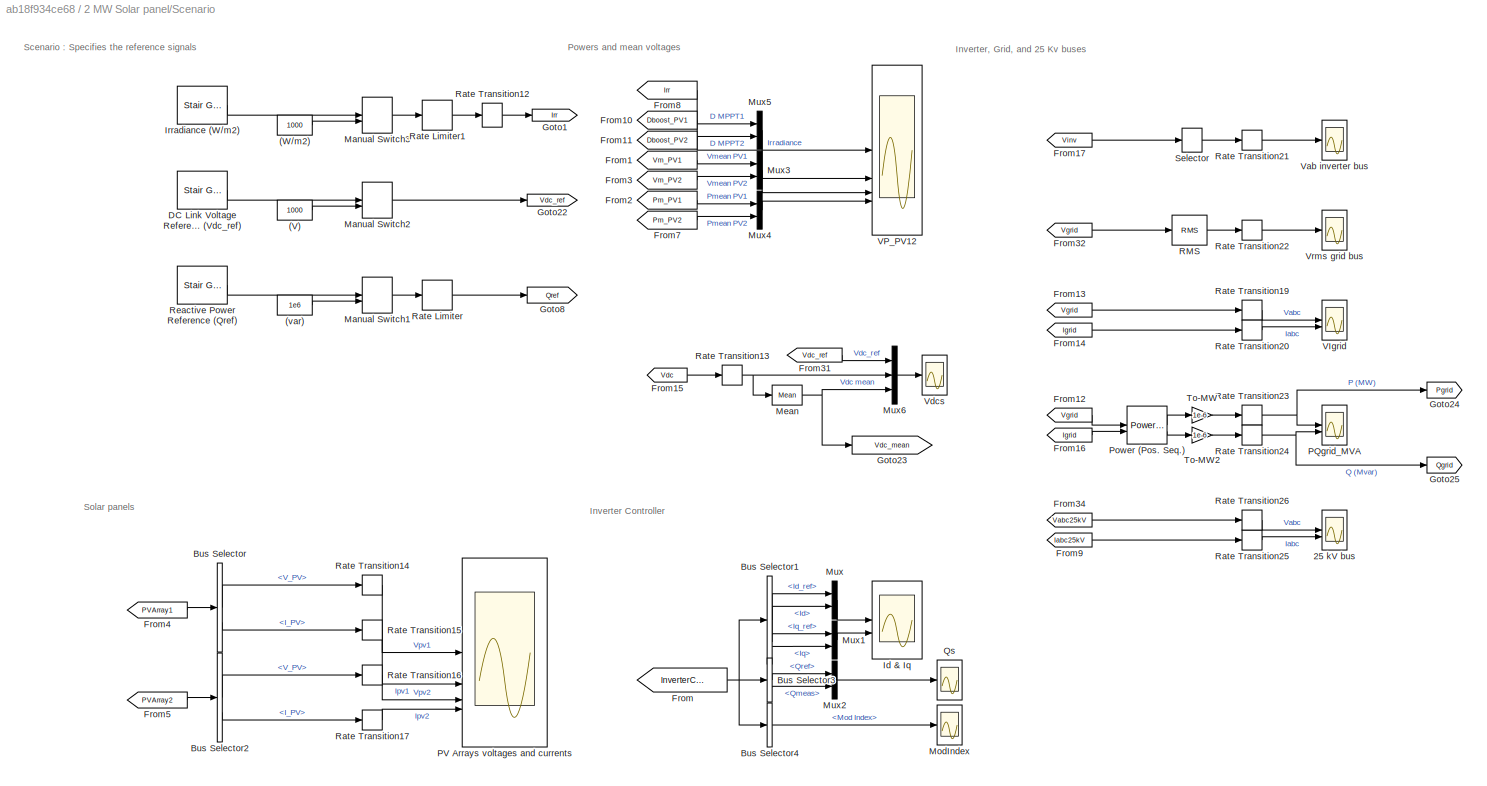
BLOCK [SubSystem] 2 MW Solar panel/Scenario
BLOCK [Constant] 2 MW Solar panel/Scenario/(V)
  Value = 1000
BLOCK [Constant] 2 MW Solar panel/Scenario/(W//m2)
  Value = 1000
BLOCK [Constant] 2 MW Solar panel/Scenario/(var)
  Value = 1e6
BLOCK [Scope] 2 MW Solar panel/Scenario/25 kV bus
  Floating = off
  NumInputPorts = 2
  ScopeSpecificationString = Simulink.scopes.TimeScopeBlockCfg('CurrentConfiguration', extmgr.ConfigurationSet(extmgr.Configuration('Core','General UI',true),extmgr.Configuration('Core','Source UI',true),extmgr.Configuration('Sources','WiredSimulink',true,'DataLoggingVariableName','ScopeData7','DataLoggingSaveFormat','StructureWithTime','DataLoggingDecimation','100'),extmgr.Configuration('Visuals','Time Domain',true,'Serializ...<+2159ch>
BLOCK [BusSelector] 2 MW Solar panel/Scenario/Bus Selector
  OutputSignals = V_PV,I_PV
BLOCK [BusSelector] 2 MW Solar panel/Scenario/Bus Selector1
  OutputSignals = Id_ref,Id,Iq_ref,Iq
BLOCK [BusSelector] 2 MW Solar panel/Scenario/Bus Selector2
  OutputSignals = V_PV,I_PV
BLOCK [BusSelector] 2 MW Solar panel/Scenario/Bus Selector3
  OutputSignals = Qref,Qmeas
BLOCK [BusSelector] 2 MW Solar panel/Scenario/Bus Selector4
  OutputSignals = Mod Index
BLOCK [Reference] 2 MW Solar panel/Scenario/DC Link Voltage Reference (Vdc_ref)  REF=spsStairGeneratorLib/Stair
Generator
  LibrarySourceBlock = sps_lib/Sources/Signal Generator Sources/Stair\nGenerator
  SourceBlock = spsStairGeneratorLib/Stair\nGenerator
  SourceType = Stair Generator
BLOCK [From] 2 MW Solar panel/Scenario/From
  GotoTag = InverterControl
  TagVisibility = global
BLOCK [From] 2 MW Solar panel/Scenario/From1
  GotoTag = Vm_PV1
  TagVisibility = global
BLOCK [From] 2 MW Solar panel/Scenario/From10
  GotoTag = Dboost_PV1
  TagVisibility = global
BLOCK [From] 2 MW Solar panel/Scenario/From11
  GotoTag = Dboost_PV2
  TagVisibility = global
BLOCK [From] 2 MW Solar panel/Scenario/From12
  GotoTag = Vgrid
  TagVisibility = global
BLOCK [From] 2 MW Solar panel/Scenario/From13
  GotoTag = Vgrid
  TagVisibility = global
BLOCK [From] 2 MW Solar panel/Scenario/From14
  GotoTag = Igrid
  TagVisibility = global
BLOCK [From] 2 MW Solar panel/Scenario/From15
  GotoTag = Vdc
  TagVisibility = global
BLOCK [From] 2 MW Solar panel/Scenario/From16
  GotoTag = Igrid
  TagVisibility = global
BLOCK [From] 2 MW Solar panel/Scenario/From17
  GotoTag = Vinv
  TagVisibility = global
BLOCK [From] 2 MW Solar panel/Scenario/From2
  GotoTag = Pm_PV1
  TagVisibility = global
BLOCK [From] 2 MW Solar panel/Scenario/From3
  GotoTag = Vm_PV2
  TagVisibility = global
BLOCK [From] 2 MW Solar panel/Scenario/From31
  GotoTag = Vdc_ref
  TagVisibility = global
BLOCK [From] 2 MW Solar panel/Scenario/From32
  GotoTag = Vgrid
  TagVisibility = global
BLOCK [From] 2 MW Solar panel/Scenario/From34
  GotoTag = Vabc25kV
BLOCK [From] 2 MW Solar panel/Scenario/From4
  GotoTag = PVArray1
  TagVisibility = global
BLOCK [From] 2 MW Solar panel/Scenario/From5
  GotoTag = PVArray2
  TagVisibility = global
BLOCK [From] 2 MW Solar panel/Scenario/From7
  GotoTag = Pm_PV2
  TagVisibility = global
BLOCK [From] 2 MW Solar panel/Scenario/From8
  GotoTag = Irr
  TagVisibility = global
BLOCK [From] 2 MW Solar panel/Scenario/From9
  GotoTag = Iabc25kV
BLOCK [Goto] 2 MW Solar panel/Scenario/Goto1
  GotoTag = Irr
  TagVisibility = global
BLOCK [Goto] 2 MW Solar panel/Scenario/Goto22
  GotoTag = Vdc_ref
  TagVisibility = global
BLOCK [Goto] 2 MW Solar panel/Scenario/Goto23
  GotoTag = Vdc_mean
  TagVisibility = global
BLOCK [Goto] 2 MW Solar panel/Scenario/Goto24
  GotoTag = Pgrid
  TagVisibility = global
BLOCK [Goto] 2 MW Solar panel/Scenario/Goto25
  GotoTag = Qgrid
  TagVisibility = global
BLOCK [Goto] 2 MW Solar panel/Scenario/Goto8
  GotoTag = Qref
  TagVisibility = global
BLOCK [Scope] 2 MW Solar panel/Scenario/Id & Iq
  Floating = off
  NumInputPorts = 2
  ScopeSpecificationString = Simulink.scopes.TimeScopeBlockCfg('CurrentConfiguration', extmgr.ConfigurationSet(extmgr.Configuration('Core','General UI',true),extmgr.Configuration('Core','Source UI',true),extmgr.Configuration('Sources','WiredSimulink',true,'DataLoggingVariableName','ScopeData1'),extmgr.Configuration('Visuals','Time Domain',true,'SerializedDisplays',{struct('MinYLimReal','-1.96699','MaxYLimReal','2.70288','YLab...<+2077ch>
BLOCK [Reference] 2 MW Solar panel/Scenario/Irradiance (W//m2)  REF=spsStairGeneratorLib/Stair
Generator
  LibrarySourceBlock = sps_lib/Sources/Signal Generator Sources/Stair\nGenerator
  SourceBlock = spsStairGeneratorLib/Stair\nGenerator
  SourceType = Stair Generator
BLOCK [ManualSwitch] 2 MW Solar panel/Scenario/Manual Switch1
  CurrentSetting = 0
BLOCK [ManualSwitch] 2 MW Solar panel/Scenario/Manual Switch2
  CurrentSetting = 0
BLOCK [ManualSwitch] 2 MW Solar panel/Scenario/Manual Switch3
  CurrentSetting = 0
BLOCK [Reference] 2 MW Solar panel/Scenario/Mean  REF=spsMeanLib/Mean
  LibrarySourceBlock = sps_lib/Sensors and Measurements/Mean
  SourceBlock = spsMeanLib/Mean
  SourceType = Mean
BLOCK [Scope] 2 MW Solar panel/Scenario/ModIndex
  Floating = off
  NumInputPorts = 1
  ScopeSpecificationString = Simulink.scopes.TimeScopeBlockCfg('CurrentConfiguration', extmgr.ConfigurationSet(extmgr.Configuration('Core','General UI',true),extmgr.Configuration('Core','Source UI',true),extmgr.Configuration('Sources','WiredSimulink',true,'DataLoggingVariableName','ScopeData3'),extmgr.Configuration('Visuals','Time Domain',true,'SerializedDisplays',{struct('MinYLimReal','0.26945','MaxYLimReal','1.07072','YLabe...<+1470ch>
BLOCK [Mux] 2 MW Solar panel/Scenario/Mux
  DisplayOption = bar
  Inputs = 2
BLOCK [Mux] 2 MW Solar panel/Scenario/Mux1
  DisplayOption = bar
  Inputs = 2
BLOCK [Mux] 2 MW Solar panel/Scenario/Mux2
  DisplayOption = bar
  Inputs = 2
BLOCK [Mux] 2 MW Solar panel/Scenario/Mux3
  DisplayOption = bar
  Inputs = 2
BLOCK [Mux] 2 MW Solar panel/Scenario/Mux4
  DisplayOption = bar
  Inputs = 2
BLOCK [Mux] 2 MW Solar panel/Scenario/Mux5
  DisplayOption = bar
  Inputs = 2
BLOCK [Mux] 2 MW Solar panel/Scenario/Mux6
  DisplayOption = bar
  Inputs = 3
BLOCK [Scope] 2 MW Solar panel/Scenario/PQgrid_MVA
  Floating = off
  NumInputPorts = 2
  ScopeSpecificationString = Simulink.scopes.TimeScopeBlockCfg('CurrentConfiguration', extmgr.ConfigurationSet(extmgr.Configuration('Core','General UI',true),extmgr.Configuration('Core','Source UI',true),extmgr.Configuration('Sources','WiredSimulink',true,'DataLoggingVariableName','ScopeData4','DataLogging',true,'DataLoggingSaveFormat','StructureWithTime'),extmgr.Configuration('Visuals','Time Domain',true,'SerializedDisplays'...<+2242ch>
BLOCK [Scope] 2 MW Solar panel/Scenario/PV Arrays voltages and currents
  Floating = off
  NumInputPorts = 4
  ScopeSpecificationString = Simulink.scopes.TimeScopeBlockCfg('CurrentConfiguration', extmgr.ConfigurationSet(extmgr.Configuration('Core','General UI',true),extmgr.Configuration('Core','Source UI',true),extmgr.Configuration('Sources','WiredSimulink',true,'DataLoggingVariableName','ScopeData6','DataLogging',true,'DataLoggingSaveFormat','StructureWithTime'),extmgr.Configuration('Visuals','Time Domain',true,'SerializedDisplays'...<+3549ch>
BLOCK [Reference] 2 MW Solar panel/Scenario/Power (Pos. Seq.)  REF=spsPowerPositiveSequenceLib/Power
(Positive-Sequence)
  LibrarySourceBlock = sps_lib/Sensors and Measurements/Power\n(Positive-Sequence)
  SourceBlock = spsPowerPositiveSequenceLib/Power\n(Positive-Sequence)
  SourceType = Power (Positive-Sequence)
BLOCK [Scope] 2 MW Solar panel/Scenario/Qs
  Floating = off
  NameLocation = top
  NumInputPorts = 1
  ScopeSpecificationString = Simulink.scopes.TimeScopeBlockCfg('CurrentConfiguration', extmgr.ConfigurationSet(extmgr.Configuration('Core','General UI',true),extmgr.Configuration('Core','Source UI',true),extmgr.Configuration('Sources','WiredSimulink',true,'DataLoggingVariableName','ScopeData5','DataLogging',true,'DataLoggingSaveFormat','StructureWithTime'),extmgr.Configuration('Visuals','Time Domain',true,'SerializedDisplays'...<+1664ch>
BLOCK [Reference] 2 MW Solar panel/Scenario/RMS  REF=spsRMSLib/RMS
  LibrarySourceBlock = sps_lib/Sensors and Measurements/RMS
  SourceBlock = spsRMSLib/RMS
  SourceType = RMS
BLOCK [RateLimiter] 2 MW Solar panel/Scenario/Rate Limiter
  FallingSlewLimit = -1e6/(1/60)
  InitialCondition = 1e6
  RisingSlewLimit = 1e6/(1/60)
  SampleTimeMode = inherited
BLOCK [RateLimiter] 2 MW Solar panel/Scenario/Rate Limiter1
  FallingSlewLimit = -1000/(1/60)
  InitialCondition = 1000
  RisingSlewLimit = 1000/(1/60)
  SampleTimeMode = inherited
BLOCK [RateTransition] 2 MW Solar panel/Scenario/Rate Transition12
  OutPortSampleTime = Ts_Power
BLOCK [RateTransition] 2 MW Solar panel/Scenario/Rate Transition13
  OutPortSampleTime = Ts
BLOCK [RateTransition] 2 MW Solar panel/Scenario/Rate Transition14
  OutPortSampleTime = Ts
BLOCK [RateTransition] 2 MW Solar panel/Scenario/Rate Transition15
  OutPortSampleTime = Ts
BLOCK [RateTransition] 2 MW Solar panel/Scenario/Rate Transition16
  OutPortSampleTime = Ts
BLOCK [RateTransition] 2 MW Solar panel/Scenario/Rate Transition17
  OutPortSampleTime = Ts
BLOCK [RateTransition] 2 MW Solar panel/Scenario/Rate Transition19
  OutPortSampleTime = Ts
BLOCK [RateTransition] 2 MW Solar panel/Scenario/Rate Transition20
  OutPortSampleTime = Ts
BLOCK [RateTransition] 2 MW Solar panel/Scenario/Rate Transition21
  OutPortSampleTime = Ts
BLOCK [RateTransition] 2 MW Solar panel/Scenario/Rate Transition22
  OutPortSampleTime = Ts
BLOCK [RateTransition] 2 MW Solar panel/Scenario/Rate Transition23
  OutPortSampleTime = Ts
BLOCK [RateTransition] 2 MW Solar panel/Scenario/Rate Transition24
  OutPortSampleTime = Ts
BLOCK [RateTransition] 2 MW Solar panel/Scenario/Rate Transition25
  OutPortSampleTime = Ts
BLOCK [RateTransition] 2 MW Solar panel/Scenario/Rate Transition26
  OutPortSampleTime = Ts
BLOCK [Reference] 2 MW Solar panel/Scenario/Reactive Power Reference (Qref)   REF=spsStairGeneratorLib/Stair
Generator
  LibrarySourceBlock = sps_lib/Sources/Signal Generator Sources/Stair\nGenerator
  SourceBlock = spsStairGeneratorLib/Stair\nGenerator
  SourceType = Stair Generator
BLOCK [Selector] 2 MW Solar panel/Scenario/Selector
  IndexOptions = Index vector (dialog)
  Indices = 1
  InputPortWidth = 3
  OutputSizes = 1
BLOCK [Gain] 2 MW Solar panel/Scenario/To-MW
  Gain = 1e-6
  NameLocation = top
BLOCK [Gain] 2 MW Solar panel/Scenario/To-MW2
  Gain = 1e-6
  NameLocation = top
BLOCK [Scope] 2 MW Solar panel/Scenario/VIgrid
  Floating = off
  NumInputPorts = 2
  ScopeSpecificationString = Simulink.scopes.TimeScopeBlockCfg('CurrentConfiguration', extmgr.ConfigurationSet(extmgr.Configuration('Core','General UI',true),extmgr.Configuration('Core','Source UI',true),extmgr.Configuration('Sources','WiredSimulink',true,'DataLoggingVariableName','ScopeData8','DataLoggingSaveFormat','StructureWithTime','DataLoggingDecimation','100','DataLogging',true),extmgr.Configuration('Visuals','Time Dom...<+2189ch>
BLOCK [Scope] 2 MW Solar panel/Scenario/VP_PV12
  Floating = off
  NumInputPorts = 4
  ScopeSpecificationString = Simulink.scopes.TimeScopeBlockCfg('CurrentConfiguration', extmgr.ConfigurationSet(extmgr.Configuration('Core','General UI',true),extmgr.Configuration('Core','Source UI',true),extmgr.Configuration('Sources','WiredSimulink',true,'DataLoggingVariableName','ScopeData9','DataLogging',true,'DataLoggingSaveFormat','StructureWithTime'),extmgr.Configuration('Visuals','Time Domain',true,'SerializedDisplays'...<+4001ch>
BLOCK [Scope] 2 MW Solar panel/Scenario/Vab inverter bus
  Floating = off
  NumInputPorts = 1
  ScopeSpecificationString = Simulink.scopes.TimeScopeBlockCfg('CurrentConfiguration', extmgr.ConfigurationSet(extmgr.Configuration('Core','General UI',true),extmgr.Configuration('Core','Source UI',true),extmgr.Configuration('Sources','WiredSimulink',true,'DataLoggingVariableName','ScopeData10','DataLogging',true,'DataLoggingSaveFormat','StructureWithTime'),extmgr.Configuration('Visuals','Time Domain',true,'SerializedDisplays...<+1548ch>
BLOCK [Scope] 2 MW Solar panel/Scenario/Vdcs
  Floating = off
  NumInputPorts = 1
  ScopeSpecificationString = Simulink.scopes.TimeScopeBlockCfg('CurrentConfiguration', extmgr.ConfigurationSet(extmgr.Configuration('Core','General UI',true),extmgr.Configuration('Core','Source UI',true),extmgr.Configuration('Sources','WiredSimulink',true,'DataLoggingVariableName','ScopeData11','DataLogging',true,'DataLoggingSaveFormat','StructureWithTime'),extmgr.Configuration('Visuals','Time Domain',true,'SerializedDisplays...<+1649ch>
BLOCK [Scope] 2 MW Solar panel/Scenario/Vrms grid bus
  Floating = off
  NumInputPorts = 1
  ScopeSpecificationString = Simulink.scopes.TimeScopeBlockCfg('CurrentConfiguration', extmgr.ConfigurationSet(extmgr.Configuration('Core','General UI',true),extmgr.Configuration('Core','Source UI',true),extmgr.Configuration('Sources','WiredSimulink',true,'DataLogging',true,'DataLoggingSaveFormat','StructureWithTime'),extmgr.Configuration('Visuals','Time Domain',true,'SerializedDisplays',{struct('MinYLimReal','-2419.42944','M...<+1574ch>
BLOCK [Reference] 2 MW Solar panel/Series RLC Branch  REF=spsSeriesRLCBranchLib/Series RLC Branch
  LibrarySourceBlock = sps_lib/Passives/Series RLC Branch
  SourceBlock = spsSeriesRLCBranchLib/Series RLC Branch
  SourceType = Series RLC Branch
BLOCK [Reference] 2 MW Solar panel/Series RLC Branch1  REF=spsSeriesRLCBranchLib/Series RLC Branch
  LibrarySourceBlock = sps_lib/Passives/Series RLC Branch
  SourceBlock = spsSeriesRLCBranchLib/Series RLC Branch
  SourceType = Series RLC Branch
BLOCK [SubSystem] 2 MW Solar panel/Subsystem
  OpenFcn = SystemName1=gcs;\nBlockName1=[SystemName1, '/', 'PV Array 1'];\nset_param(BlockName1,'RobustCellTemperature','25');\nset_param(BlockName1,'ForegroundColor','black');\nBlockName2=[SystemName1, '/', 'PV Array 2'];\nset_param(BlockName2,'RobustCellTemperature','25');\nset_param(BlockName2,'ForegroundColor','black');
BLOCK [SubSystem] 2 MW Solar panel/Subsystem1
  OpenFcn = SystemName1=gcs;\nBlockName1=[SystemName1, '/', 'PV Array 1'];\nset_param(BlockName1,'RobustCellTemperature','45');\nset_param(BlockName1,'ForegroundColor','red');\nBlockName2=[SystemName1, '/', 'PV Array 2'];\nset_param(BlockName2,'RobustCellTemperature','45');\nset_param(BlockName2,'ForegroundColor','red');
BLOCK [Reference] 2 MW Solar panel/Three-Level NPC Converter  REF=spsThreeLevelNPCConverterLib/Three-Level
NPC Converter
  LibrarySourceBlock = sps_lib/Power Electronics/Three-Level\nNPC Converter
  SourceBlock = spsThreeLevelNPCConverterLib/Three-Level\nNPC Converter
  SourceType = Three-Level NPC Converter
BLOCK [Display] 2 MW Solar panel/Vdc_mean
  Decimation = 200
BLOCK [Reference] 2 MW Solar panel/Voltage Measurement  REF=spsVoltageMeasurementLib/Voltage Measurement
  LibrarySourceBlock = sps_lib/Sensors and Measurements/Voltage Measurement
  SourceBlock = spsVoltageMeasurementLib/Voltage Measurement
  SourceType = Voltage Measurement
  UserDataPersistent = on
BLOCK [PMIOPort] 2 MW Solar panel/a
  Side = Right
BLOCK [PMIOPort] 2 MW Solar panel/b
  Port = 2
  Side = Right
BLOCK [PMIOPort] 2 MW Solar panel/c
  Port = 3
  Side = Right
BLOCK [Reference] 2 MW Solar panel/powergui  REF=spspowerguiLib/powergui
  LibrarySourceBlock = sps_lib/powergui
  Priority = 2
  SourceBlock = spspowerguiLib/powergui
  SourceType = PSB option menu block
BLOCK [Demux] Demux
  Outputs = 3
BLOCK [Demux] Demux1
  Outputs = 3
BLOCK [Demux] Demux10
  Outputs = 3
BLOCK [Demux] Demux11
  Outputs = 3
BLOCK [Demux] Demux12
  Outputs = 3
BLOCK [Demux] Demux13
  Outputs = 3
BLOCK [Demux] Demux14
  Outputs = 3
BLOCK [Demux] Demux15
  Outputs = 3
BLOCK [Demux] Demux16
  Outputs = 3
BLOCK [Demux] Demux17
  Outputs = 3
BLOCK [Demux] Demux18
  Outputs = 3
BLOCK [Demux] Demux19
  Outputs = 3
BLOCK [Demux] Demux2
  Outputs = 3
BLOCK [Demux] Demux20
  Outputs = 3
BLOCK [Demux] Demux21
  Outputs = 3
BLOCK [Demux] Demux22
  Outputs = 3
BLOCK [Demux] Demux23
  Outputs = 3
BLOCK [Demux] Demux24
  Outputs = 3
BLOCK [Demux] Demux25
  Outputs = 3
BLOCK [Demux] Demux26
  Outputs = 3
BLOCK [Demux] Demux27
  Outputs = 3
BLOCK [Demux] Demux28
  Outputs = 3
BLOCK [Demux] Demux29
  Outputs = 3
BLOCK [Demux] Demux3
  Outputs = 3
BLOCK [Demux] Demux30
  Outputs = 3
BLOCK [Demux] Demux31
  Outputs = 3
BLOCK [Demux] Demux32
  Outputs = 3
BLOCK [Demux] Demux33
  Outputs = 3
BLOCK [Demux] Demux34
  Outputs = 3
BLOCK [Demux] Demux35
  Outputs = 3
BLOCK [Demux] Demux36
  Outputs = 3
BLOCK [Demux] Demux37
  Outputs = 3
BLOCK [Demux] Demux38
  Outputs = 3
BLOCK [Demux] Demux39
  Outputs = 3
BLOCK [Demux] Demux4
  Outputs = 3
BLOCK [Demux] Demux40
  Outputs = 3
BLOCK [Demux] Demux41
  Outputs = 3
BLOCK [Demux] Demux42
  Outputs = 3
BLOCK [Demux] Demux43
  Outputs = 3
BLOCK [Demux] Demux44
  Outputs = 3
BLOCK [Demux] Demux45
  Outputs = 3
BLOCK [Demux] Demux46
  Outputs = 3
BLOCK [Demux] Demux47
  Outputs = 3
BLOCK [Demux] Demux48
  Outputs = 3
BLOCK [Demux] Demux49
  Outputs = 3
BLOCK [Demux] Demux5
  Outputs = 3
BLOCK [Demux] Demux50
  Outputs = 3
BLOCK [Demux] Demux51
  Outputs = 3
BLOCK [Demux] Demux52
  Outputs = 3
BLOCK [Demux] Demux53
  Outputs = 3
BLOCK [Demux] Demux54
  Outputs = 3
BLOCK [Demux] Demux55
  Outputs = 3
BLOCK [Demux] Demux56
  Outputs = 3
BLOCK [Demux] Demux57
  Outputs = 3
BLOCK [Demux] Demux58
  Outputs = 3
BLOCK [Demux] Demux59
  Outputs = 3
BLOCK [Demux] Demux6
  Outputs = 3
BLOCK [Demux] Demux60
  Outputs = 3
BLOCK [Demux] Demux61
  Outputs = 3
BLOCK [Demux] Demux62
  Outputs = 3
BLOCK [Demux] Demux63
  Outputs = 3
BLOCK [Demux] Demux64
  Outputs = 3
BLOCK [Demux] Demux65
  Outputs = 3
BLOCK [Demux] Demux7
  Outputs = 3
BLOCK [Demux] Demux8
  Outputs = 3
BLOCK [Demux] Demux9
  Outputs = 3
BLOCK [From] From
  GotoTag = I1abc
  TagVisibility = global
BLOCK [From] From1
  GotoTag = V1abc
  TagVisibility = global
BLOCK [From] From10
  GotoTag = I15abc
  TagVisibility = global
BLOCK [From] From11
  GotoTag = V15abc
  TagVisibility = global
BLOCK [From] From12
  GotoTag = I16abc
  TagVisibility = global
BLOCK [From] From13
  GotoTag = V16abc
  TagVisibility = global
BLOCK [From] From14
  GotoTag = I17abc
  TagVisibility = global
BLOCK [From] From15
  GotoTag = V17abc
  TagVisibility = global
BLOCK [From] From16
  GotoTag = I18abc
  TagVisibility = global
BLOCK [From] From17
  GotoTag = V18abc
  TagVisibility = global
BLOCK [From] From18
  GotoTag = I19abc
  TagVisibility = global
BLOCK [From] From19
  GotoTag = V19abc
  TagVisibility = global
BLOCK [From] From2
  GotoTag = I4abc
  TagVisibility = global
BLOCK [From] From20
  GotoTag = I20abc
  TagVisibility = global
BLOCK [From] From21
  GotoTag = V20abc
  TagVisibility = global
BLOCK [From] From22
  GotoTag = I14abc
  TagVisibility = global
BLOCK [From] From23
  GotoTag = V14abc
  TagVisibility = global
BLOCK [From] From24
  GotoTag = I21abc
  TagVisibility = global
BLOCK [From] From25
  GotoTag = V21abc
  TagVisibility = global
BLOCK [From] From26
  GotoTag = I22abc
  TagVisibility = global
BLOCK [From] From27
  GotoTag = V22abc
  TagVisibility = global
BLOCK [From] From28
  GotoTag = I23abc
  TagVisibility = global
BLOCK [From] From29
  GotoTag = V23abc
  TagVisibility = global
BLOCK [From] From3
  GotoTag = V4abc
  TagVisibility = global
BLOCK [From] From30
  GotoTag = I25abc
  TagVisibility = global
BLOCK [From] From31
  GotoTag = V25abc
  TagVisibility = global
BLOCK [From] From32
  GotoTag = I26abc
  TagVisibility = global
BLOCK [From] From33
  GotoTag = V26abc
  TagVisibility = global
BLOCK [From] From34
  GotoTag = I27abc
  TagVisibility = global
BLOCK [From] From35
  GotoTag = V27abc
  TagVisibility = global
BLOCK [From] From36
  GotoTag = I8abc
  TagVisibility = global
BLOCK [From] From37
  GotoTag = V8abc
  TagVisibility = global
BLOCK [From] From38
  GotoTag = I9abc
  TagVisibility = global
BLOCK [From] From39
  GotoTag = V9abc
  TagVisibility = global
BLOCK [From] From4
  GotoTag = V5abc
  TagVisibility = global
BLOCK [From] From40
  GotoTag = I10abc
  TagVisibility = global
BLOCK [From] From41
  GotoTag = V10abc
  TagVisibility = global
BLOCK [From] From42
  GotoTag = I7abc
  TagVisibility = global
BLOCK [From] From43
  GotoTag = V7abc
  TagVisibility = global
BLOCK [From] From44
  GotoTag = I11abc
  TagVisibility = global
BLOCK [From] From45
  GotoTag = V11abc
  TagVisibility = global
BLOCK [From] From46
  GotoTag = I12abc
  TagVisibility = global
BLOCK [From] From47
  GotoTag = V12abc
  TagVisibility = global
BLOCK [From] From48
  GotoTag = I13abc
  TagVisibility = global
BLOCK [From] From49
  GotoTag = V13abc
  TagVisibility = global
BLOCK [From] From5
  GotoTag = I5abc
  TagVisibility = global
BLOCK [From] From50
  GotoTag = I6abc
  TagVisibility = global
BLOCK [From] From51
  GotoTag = V6abc
  TagVisibility = global
BLOCK [From] From52
  GotoTag = I28abc
  TagVisibility = global
BLOCK [From] From53
  GotoTag = V28abc
  TagVisibility = global
BLOCK [From] From54
  GotoTag = I29abc
  TagVisibility = global
BLOCK [From] From55
  GotoTag = V29abc
  TagVisibility = global
BLOCK [From] From56
  GotoTag = I30abc
  TagVisibility = global
BLOCK [From] From57
  GotoTag = V30abc
  TagVisibility = global
BLOCK [From] From58
  GotoTag = I31abc
  TagVisibility = global
BLOCK [From] From59
  GotoTag = V31abc
  TagVisibility = global
BLOCK [From] From6
  GotoTag = V2abc
  TagVisibility = global
BLOCK [From] From60
  GotoTag = I32abc
  TagVisibility = global
BLOCK [From] From61
  GotoTag = V32abc
  TagVisibility = global
BLOCK [From] From62
  GotoTag = I33abc
  TagVisibility = global
BLOCK [From] From63
  GotoTag = V33abc
  TagVisibility = global
BLOCK [From] From64
  GotoTag = I24abc
  TagVisibility = global
BLOCK [From] From65
  GotoTag = V24abc
  TagVisibility = global
BLOCK [From] From7
  GotoTag = I2abc
  TagVisibility = global
BLOCK [From] From8
  GotoTag = V3abc
  TagVisibility = global
BLOCK [From] From9
  GotoTag = I3abc
  TagVisibility = global
BLOCK [Reference] Ground  REF=spsGroundLib/Ground
  LibrarySourceBlock = sps_lib/Utilities/Ground
  NameLocation = right
  SourceBlock = spsGroundLib/Ground
  SourceType = Ground
BLOCK [Reference] Ground2  REF=spsGroundLib/Ground
  LibrarySourceBlock = sps_lib/Utilities/Ground
  NameLocation = right
  SourceBlock = spsGroundLib/Ground
  SourceType = Ground
BLOCK [Reference] Load Flow Bus  REF=spsLoadFlowBusLib/Load Flow Bus
  AttributesFormatString = %<ID>\n%<Vbase>V\n%<VLF>pu\n%<angleLF>deg.
  LibrarySourceBlock = sps_lib/Utilities/Load Flow Bus
  SourceBlock = spsLoadFlowBusLib/Load Flow Bus
  SourceType = Load Flow Bus
BLOCK [Reference] Load Flow Bus1  REF=spsLoadFlowBusLib/Load Flow Bus
  AttributesFormatString = %<ID>\n%<Vbase>V\n%<VLF>pu\n%<angleLF>deg.
  LibrarySourceBlock = sps_lib/Utilities/Load Flow Bus
  SourceBlock = spsLoadFlowBusLib/Load Flow Bus
  SourceType = Load Flow Bus
BLOCK [Reference] Load Flow Bus10  REF=spsLoadFlowBusLib/Load Flow Bus
  AttributesFormatString = %<ID>\n%<Vbase>V\n%<VLF>pu\n%<angleLF>deg.
  LibrarySourceBlock = sps_lib/Utilities/Load Flow Bus
  SourceBlock = spsLoadFlowBusLib/Load Flow Bus
  SourceType = Load Flow Bus
BLOCK [Reference] Load Flow Bus11  REF=spsLoadFlowBusLib/Load Flow Bus
  AttributesFormatString = %<ID>\n%<Vbase>V\n%<VLF>pu\n%<angleLF>deg.
  LibrarySourceBlock = sps_lib/Utilities/Load Flow Bus
  SourceBlock = spsLoadFlowBusLib/Load Flow Bus
  SourceType = Load Flow Bus
BLOCK [Reference] Load Flow Bus12  REF=spsLoadFlowBusLib/Load Flow Bus
  AttributesFormatString = %<ID>\n%<Vbase>V\n%<VLF>pu\n%<angleLF>deg.
  LibrarySourceBlock = sps_lib/Utilities/Load Flow Bus
  SourceBlock = spsLoadFlowBusLib/Load Flow Bus
  SourceType = Load Flow Bus
BLOCK [Reference] Load Flow Bus13  REF=spsLoadFlowBusLib/Load Flow Bus
  AttributesFormatString = %<ID>\n%<Vbase>V\n%<VLF>pu\n%<angleLF>deg.
  LibrarySourceBlock = sps_lib/Utilities/Load Flow Bus
  SourceBlock = spsLoadFlowBusLib/Load Flow Bus
  SourceType = Load Flow Bus
BLOCK [Reference] Load Flow Bus14  REF=spsLoadFlowBusLib/Load Flow Bus
  AttributesFormatString = %<ID>\n%<Vbase>V\n%<VLF>pu\n%<angleLF>deg.
  LibrarySourceBlock = sps_lib/Utilities/Load Flow Bus
  SourceBlock = spsLoadFlowBusLib/Load Flow Bus
  SourceType = Load Flow Bus
BLOCK [Reference] Load Flow Bus15  REF=spsLoadFlowBusLib/Load Flow Bus
  AttributesFormatString = %<ID>\n%<Vbase>V\n%<VLF>pu\n%<angleLF>deg.
  LibrarySourceBlock = sps_lib/Utilities/Load Flow Bus
  SourceBlock = spsLoadFlowBusLib/Load Flow Bus
  SourceType = Load Flow Bus
BLOCK [Reference] Load Flow Bus16  REF=spsLoadFlowBusLib/Load Flow Bus
  AttributesFormatString = %<ID>\n%<Vbase>V\n%<VLF>pu\n%<angleLF>deg.
  LibrarySourceBlock = sps_lib/Utilities/Load Flow Bus
  SourceBlock = spsLoadFlowBusLib/Load Flow Bus
  SourceType = Load Flow Bus
BLOCK [Reference] Load Flow Bus17  REF=spsLoadFlowBusLib/Load Flow Bus
  AttributesFormatString = %<ID>\n%<Vbase>V\n%<VLF>pu\n%<angleLF>deg.
  LibrarySourceBlock = sps_lib/Utilities/Load Flow Bus
  SourceBlock = spsLoadFlowBusLib/Load Flow Bus
  SourceType = Load Flow Bus
BLOCK [Reference] Load Flow Bus18  REF=spsLoadFlowBusLib/Load Flow Bus
  AttributesFormatString = %<ID>\n%<Vbase>V\n%<VLF>pu\n%<angleLF>deg.
  LibrarySourceBlock = sps_lib/Utilities/Load Flow Bus
  SourceBlock = spsLoadFlowBusLib/Load Flow Bus
  SourceType = Load Flow Bus
BLOCK [Reference] Load Flow Bus19  REF=spsLoadFlowBusLib/Load Flow Bus
  AttributesFormatString = %<ID>\n%<Vbase>V\n%<VLF>pu\n%<angleLF>deg.
  LibrarySourceBlock = sps_lib/Utilities/Load Flow Bus
  SourceBlock = spsLoadFlowBusLib/Load Flow Bus
  SourceType = Load Flow Bus
BLOCK [Reference] Load Flow Bus2  REF=spsLoadFlowBusLib/Load Flow Bus
  AttributesFormatString = %<ID>\n%<Vbase>V\n%<VLF>pu\n%<angleLF>deg.
  LibrarySourceBlock = sps_lib/Utilities/Load Flow Bus
  SourceBlock = spsLoadFlowBusLib/Load Flow Bus
  SourceType = Load Flow Bus
BLOCK [Reference] Load Flow Bus20  REF=spsLoadFlowBusLib/Load Flow Bus
  AttributesFormatString = %<ID>\n%<Vbase>V\n%<VLF>pu\n%<angleLF>deg.
  LibrarySourceBlock = sps_lib/Utilities/Load Flow Bus
  SourceBlock = spsLoadFlowBusLib/Load Flow Bus
  SourceType = Load Flow Bus
BLOCK [Reference] Load Flow Bus21  REF=spsLoadFlowBusLib/Load Flow Bus
  AttributesFormatString = %<ID>\n%<Vbase>V\n%<VLF>pu\n%<angleLF>deg.
  LibrarySourceBlock = sps_lib/Utilities/Load Flow Bus
  SourceBlock = spsLoadFlowBusLib/Load Flow Bus
  SourceType = Load Flow Bus
BLOCK [Reference] Load Flow Bus22  REF=spsLoadFlowBusLib/Load Flow Bus
  AttributesFormatString = %<ID>\n%<Vbase>V\n%<VLF>pu\n%<angleLF>deg.
  LibrarySourceBlock = sps_lib/Utilities/Load Flow Bus
  SourceBlock = spsLoadFlowBusLib/Load Flow Bus
  SourceType = Load Flow Bus
BLOCK [Reference] Load Flow Bus23  REF=spsLoadFlowBusLib/Load Flow Bus
  AttributesFormatString = %<ID>\n%<Vbase>V\n%<VLF>pu\n%<angleLF>deg.
  LibrarySourceBlock = sps_lib/Utilities/Load Flow Bus
  SourceBlock = spsLoadFlowBusLib/Load Flow Bus
  SourceType = Load Flow Bus
BLOCK [Reference] Load Flow Bus24  REF=spsLoadFlowBusLib/Load Flow Bus
  AttributesFormatString = %<ID>\n%<Vbase>V\n%<VLF>pu\n%<angleLF>deg.
  LibrarySourceBlock = sps_lib/Utilities/Load Flow Bus
  SourceBlock = spsLoadFlowBusLib/Load Flow Bus
  SourceType = Load Flow Bus
BLOCK [Reference] Load Flow Bus25  REF=spsLoadFlowBusLib/Load Flow Bus
  AttributesFormatString = %<ID>\n%<Vbase>V\n%<VLF>pu\n%<angleLF>deg.
  LibrarySourceBlock = sps_lib/Utilities/Load Flow Bus
  SourceBlock = spsLoadFlowBusLib/Load Flow Bus
  SourceType = Load Flow Bus
BLOCK [Reference] Load Flow Bus26  REF=spsLoadFlowBusLib/Load Flow Bus
  AttributesFormatString = %<ID>\n%<Vbase>V\n%<VLF>pu\n%<angleLF>deg.
  LibrarySourceBlock = sps_lib/Utilities/Load Flow Bus
  SourceBlock = spsLoadFlowBusLib/Load Flow Bus
  SourceType = Load Flow Bus
BLOCK [Reference] Load Flow Bus27  REF=spsLoadFlowBusLib/Load Flow Bus
  AttributesFormatString = %<ID>\n%<Vbase>V\n%<VLF>pu\n%<angleLF>deg.
  LibrarySourceBlock = sps_lib/Utilities/Load Flow Bus
  SourceBlock = spsLoadFlowBusLib/Load Flow Bus
  SourceType = Load Flow Bus
BLOCK [Reference] Load Flow Bus28  REF=spsLoadFlowBusLib/Load Flow Bus
  AttributesFormatString = %<ID>\n%<Vbase>V\n%<VLF>pu\n%<angleLF>deg.
  LibrarySourceBlock = sps_lib/Utilities/Load Flow Bus
  SourceBlock = spsLoadFlowBusLib/Load Flow Bus
  SourceType = Load Flow Bus
BLOCK [Reference] Load Flow Bus29  REF=spsLoadFlowBusLib/Load Flow Bus
  AttributesFormatString = %<ID>\n%<Vbase>V\n%<VLF>pu\n%<angleLF>deg.
  LibrarySourceBlock = sps_lib/Utilities/Load Flow Bus
  SourceBlock = spsLoadFlowBusLib/Load Flow Bus
  SourceType = Load Flow Bus
BLOCK [Reference] Load Flow Bus3  REF=spsLoadFlowBusLib/Load Flow Bus
  AttributesFormatString = %<ID>\n%<Vbase>V\n%<VLF>pu\n%<angleLF>deg.
  LibrarySourceBlock = sps_lib/Utilities/Load Flow Bus
  SourceBlock = spsLoadFlowBusLib/Load Flow Bus
  SourceType = Load Flow Bus
BLOCK [Reference] Load Flow Bus30  REF=spsLoadFlowBusLib/Load Flow Bus
  AttributesFormatString = %<ID>\n%<Vbase>V\n%<VLF>pu\n%<angleLF>deg.
  LibrarySourceBlock = sps_lib/Utilities/Load Flow Bus
  SourceBlock = spsLoadFlowBusLib/Load Flow Bus
  SourceType = Load Flow Bus
BLOCK [Reference] Load Flow Bus31  REF=spsLoadFlowBusLib/Load Flow Bus
  AttributesFormatString = %<ID>\n%<Vbase>V\n%<VLF>pu\n%<angleLF>deg.
  LibrarySourceBlock = sps_lib/Utilities/Load Flow Bus
  SourceBlock = spsLoadFlowBusLib/Load Flow Bus
  SourceType = Load Flow Bus
BLOCK [Reference] Load Flow Bus32  REF=spsLoadFlowBusLib/Load Flow Bus
  AttributesFormatString = %<ID>\n%<Vbase>V\n%<VLF>pu\n%<angleLF>deg.
  LibrarySourceBlock = sps_lib/Utilities/Load Flow Bus
  SourceBlock = spsLoadFlowBusLib/Load Flow Bus
  SourceType = Load Flow Bus
BLOCK [Reference] Load Flow Bus4  REF=spsLoadFlowBusLib/Load Flow Bus
  AttributesFormatString = %<ID>\n%<Vbase>V\n%<VLF>pu\n%<angleLF>deg.
  LibrarySourceBlock = sps_lib/Utilities/Load Flow Bus
  SourceBlock = spsLoadFlowBusLib/Load Flow Bus
  SourceType = Load Flow Bus
BLOCK [Reference] Load Flow Bus5  REF=spsLoadFlowBusLib/Load Flow Bus
  AttributesFormatString = %<ID>\n%<Vbase>V\n%<VLF>pu\n%<angleLF>deg.
  LibrarySourceBlock = sps_lib/Utilities/Load Flow Bus
  SourceBlock = spsLoadFlowBusLib/Load Flow Bus
  SourceType = Load Flow Bus
BLOCK [Reference] Load Flow Bus6  REF=spsLoadFlowBusLib/Load Flow Bus
  AttributesFormatString = %<ID>\n%<Vbase>V\n%<VLF>pu\n%<angleLF>deg.
  LibrarySourceBlock = sps_lib/Utilities/Load Flow Bus
  SourceBlock = spsLoadFlowBusLib/Load Flow Bus
  SourceType = Load Flow Bus
BLOCK [Reference] Load Flow Bus7  REF=spsLoadFlowBusLib/Load Flow Bus
  AttributesFormatString = %<ID>\n%<Vbase>V\n%<VLF>pu\n%<angleLF>deg.
  LibrarySourceBlock = sps_lib/Utilities/Load Flow Bus
  SourceBlock = spsLoadFlowBusLib/Load Flow Bus
  SourceType = Load Flow Bus
BLOCK [Reference] Load Flow Bus8  REF=spsLoadFlowBusLib/Load Flow Bus
  AttributesFormatString = %<ID>\n%<Vbase>V\n%<VLF>pu\n%<angleLF>deg.
  LibrarySourceBlock = sps_lib/Utilities/Load Flow Bus
  SourceBlock = spsLoadFlowBusLib/Load Flow Bus
  SourceType = Load Flow Bus
BLOCK [Reference] Load Flow Bus9  REF=spsLoadFlowBusLib/Load Flow Bus
  AttributesFormatString = %<ID>\n%<Vbase>V\n%<VLF>pu\n%<angleLF>deg.
  LibrarySourceBlock = sps_lib/Utilities/Load Flow Bus
  SourceBlock = spsLoadFlowBusLib/Load Flow Bus
  SourceType = Load Flow Bus
BLOCK [Scope] Scope
  Floating = off
  NumInputPorts = 3
  ScopeSpecificationString = Simulink.scopes.TimeScopeBlockCfg('CurrentConfiguration', extmgr.ConfigurationSet(extmgr.Configuration('Core','General UI',true),extmgr.Configuration('Core','Source UI',true),extmgr.Configuration('Sources','WiredSimulink',true,'DataLoggingVariableName','V1abc','DataLogging',true,'DataLoggingSaveFormat','StructureWithTime'),extmgr.Configuration('Visuals','Time Domain',true,'SerializedDisplays',{str...<+2748ch>
BLOCK [Scope] Scope1
  Floating = off
  NumInputPorts = 3
  ScopeSpecificationString = Simulink.scopes.TimeScopeBlockCfg('CurrentConfiguration', extmgr.ConfigurationSet(extmgr.Configuration('Core','General UI',true),extmgr.Configuration('Core','Source UI',true),extmgr.Configuration('Sources','WiredSimulink',true,'DataLoggingVariableName','I2abc','DataLogging',true,'DataLoggingSaveFormat','StructureWithTime'),extmgr.Configuration('Visuals','Time Domain',true,'SerializedDisplays',{str...<+2735ch>
BLOCK [Scope] Scope10
  Floating = off
  NumInputPorts = 3
  ScopeSpecificationString = Simulink.scopes.TimeScopeBlockCfg('CurrentConfiguration', extmgr.ConfigurationSet(extmgr.Configuration('Core','General UI',true),extmgr.Configuration('Core','Source UI',true),extmgr.Configuration('Sources','WiredSimulink',true,'DataLoggingVariableName','V15abc','DataLogging',true,'DataLoggingSaveFormat','StructureWithTime'),extmgr.Configuration('Visuals','Time Domain',true,'SerializedDisplays',{st...<+2752ch>
BLOCK [Scope] Scope11
  Floating = off
  NumInputPorts = 3
  ScopeSpecificationString = Simulink.scopes.TimeScopeBlockCfg('CurrentConfiguration', extmgr.ConfigurationSet(extmgr.Configuration('Core','General UI',true),extmgr.Configuration('Core','Source UI',true),extmgr.Configuration('Sources','WiredSimulink',true,'DataLoggingVariableName','I15abc','DataLogging',true,'DataLoggingSaveFormat','StructureWithTime'),extmgr.Configuration('Visuals','Time Domain',true,'SerializedDisplays',{st...<+2731ch>
BLOCK [Scope] Scope12
  Floating = off
  NumInputPorts = 3
  ScopeSpecificationString = Simulink.scopes.TimeScopeBlockCfg('CurrentConfiguration', extmgr.ConfigurationSet(extmgr.Configuration('Core','General UI',true),extmgr.Configuration('Core','Source UI',true),extmgr.Configuration('Sources','WiredSimulink',true,'DataLoggingVariableName','V16abc','DataLogging',true,'DataLoggingSaveFormat','StructureWithTime'),extmgr.Configuration('Visuals','Time Domain',true,'SerializedDisplays',{st...<+2755ch>
BLOCK [Scope] Scope13
  Floating = off
  NumInputPorts = 3
  ScopeSpecificationString = Simulink.scopes.TimeScopeBlockCfg('CurrentConfiguration', extmgr.ConfigurationSet(extmgr.Configuration('Core','General UI',true),extmgr.Configuration('Core','Source UI',true),extmgr.Configuration('Sources','WiredSimulink',true,'DataLoggingVariableName','I16abc','DataLogging',true,'DataLoggingSaveFormat','StructureWithTime'),extmgr.Configuration('Visuals','Time Domain',true,'SerializedDisplays',{st...<+2729ch>
BLOCK [Scope] Scope14
  Floating = off
  NumInputPorts = 3
  ScopeSpecificationString = Simulink.scopes.TimeScopeBlockCfg('CurrentConfiguration', extmgr.ConfigurationSet(extmgr.Configuration('Core','General UI',true),extmgr.Configuration('Core','Source UI',true),extmgr.Configuration('Sources','WiredSimulink',true,'DataLoggingVariableName','V17abc','DataLogging',true,'DataLoggingSaveFormat','StructureWithTime'),extmgr.Configuration('Visuals','Time Domain',true,'SerializedDisplays',{st...<+2755ch>
BLOCK [Scope] Scope15
  Floating = off
  NumInputPorts = 3
  ScopeSpecificationString = Simulink.scopes.TimeScopeBlockCfg('CurrentConfiguration', extmgr.ConfigurationSet(extmgr.Configuration('Core','General UI',true),extmgr.Configuration('Core','Source UI',true),extmgr.Configuration('Sources','WiredSimulink',true,'DataLoggingVariableName','I17abc','DataLogging',true,'DataLoggingSaveFormat','StructureWithTime'),extmgr.Configuration('Visuals','Time Domain',true,'SerializedDisplays',{st...<+2730ch>
BLOCK [Scope] Scope16
  Floating = off
  NumInputPorts = 3
  ScopeSpecificationString = Simulink.scopes.TimeScopeBlockCfg('CurrentConfiguration', extmgr.ConfigurationSet(extmgr.Configuration('Core','General UI',true),extmgr.Configuration('Core','Source UI',true),extmgr.Configuration('Sources','WiredSimulink',true,'DataLoggingVariableName','V18abc','DataLogging',true,'DataLoggingSaveFormat','StructureWithTime'),extmgr.Configuration('Visuals','Time Domain',true,'SerializedDisplays',{st...<+2788ch>
BLOCK [Scope] Scope17
  Floating = off
  NumInputPorts = 3
  ScopeSpecificationString = Simulink.scopes.TimeScopeBlockCfg('CurrentConfiguration', extmgr.ConfigurationSet(extmgr.Configuration('Core','General UI',true),extmgr.Configuration('Core','Source UI',true),extmgr.Configuration('Sources','WiredSimulink',true,'DataLoggingVariableName','I18abc','DataLogging',true,'DataLoggingSaveFormat','StructureWithTime'),extmgr.Configuration('Visuals','Time Domain',true,'SerializedDisplays',{st...<+2721ch>
BLOCK [Scope] Scope18
  Floating = off
  NumInputPorts = 3
  ScopeSpecificationString = Simulink.scopes.TimeScopeBlockCfg('CurrentConfiguration', extmgr.ConfigurationSet(extmgr.Configuration('Core','General UI',true),extmgr.Configuration('Core','Source UI',true),extmgr.Configuration('Sources','WiredSimulink',true,'DataLoggingVariableName','V19abc','DataLogging',true,'DataLoggingSaveFormat','StructureWithTime'),extmgr.Configuration('Visuals','Time Domain',true,'SerializedDisplays',{st...<+2755ch>
BLOCK [Scope] Scope19
  Floating = off
  NumInputPorts = 3
  ScopeSpecificationString = Simulink.scopes.TimeScopeBlockCfg('CurrentConfiguration', extmgr.ConfigurationSet(extmgr.Configuration('Core','General UI',true),extmgr.Configuration('Core','Source UI',true),extmgr.Configuration('Sources','WiredSimulink',true,'DataLoggingVariableName','I19abc','DataLogging',true,'DataLoggingSaveFormat','StructureWithTime'),extmgr.Configuration('Visuals','Time Domain',true,'SerializedDisplays',{st...<+2724ch>
BLOCK [Scope] Scope2
  Floating = off
  NumInputPorts = 3
  ScopeSpecificationString = Simulink.scopes.TimeScopeBlockCfg('CurrentConfiguration', extmgr.ConfigurationSet(extmgr.Configuration('Core','General UI',true),extmgr.Configuration('Core','Source UI',true),extmgr.Configuration('Sources','WiredSimulink',true,'DataLoggingVariableName','I1abc','DataLogging',true,'DataLoggingSaveFormat','StructureWithTime'),extmgr.Configuration('Visuals','Time Domain',true,'SerializedDisplays',{str...<+2735ch>
BLOCK [Scope] Scope20
  Floating = off
  NumInputPorts = 3
  ScopeSpecificationString = Simulink.scopes.TimeScopeBlockCfg('CurrentConfiguration', extmgr.ConfigurationSet(extmgr.Configuration('Core','General UI',true),extmgr.Configuration('Core','Source UI',true),extmgr.Configuration('Sources','WiredSimulink',true,'DataLoggingVariableName','V20abc','DataLogging',true,'DataLoggingSaveFormat','StructureWithTime'),extmgr.Configuration('Visuals','Time Domain',true,'SerializedDisplays',{st...<+2755ch>
BLOCK [Scope] Scope21
  Floating = off
  NumInputPorts = 3
  ScopeSpecificationString = Simulink.scopes.TimeScopeBlockCfg('CurrentConfiguration', extmgr.ConfigurationSet(extmgr.Configuration('Core','General UI',true),extmgr.Configuration('Core','Source UI',true),extmgr.Configuration('Sources','WiredSimulink',true,'DataLoggingVariableName','I20abc','DataLogging',true,'DataLoggingSaveFormat','StructureWithTime'),extmgr.Configuration('Visuals','Time Domain',true,'SerializedDisplays',{st...<+2724ch>
BLOCK [Scope] Scope22
  Floating = off
  NumInputPorts = 3
  ScopeSpecificationString = Simulink.scopes.TimeScopeBlockCfg('CurrentConfiguration', extmgr.ConfigurationSet(extmgr.Configuration('Core','General UI',true),extmgr.Configuration('Core','Source UI',true),extmgr.Configuration('Sources','WiredSimulink',true,'DataLoggingVariableName','V14abc','DataLogging',true,'DataLoggingSaveFormat','StructureWithTime'),extmgr.Configuration('Visuals','Time Domain',true,'SerializedDisplays',{st...<+2755ch>
BLOCK [Scope] Scope23
  Floating = off
  NumInputPorts = 3
  ScopeSpecificationString = Simulink.scopes.TimeScopeBlockCfg('CurrentConfiguration', extmgr.ConfigurationSet(extmgr.Configuration('Core','General UI',true),extmgr.Configuration('Core','Source UI',true),extmgr.Configuration('Sources','WiredSimulink',true,'DataLoggingVariableName','I14abc','DataLogging',true,'DataLoggingSaveFormat','StructureWithTime'),extmgr.Configuration('Visuals','Time Domain',true,'SerializedDisplays',{st...<+2731ch>
BLOCK [Scope] Scope24
  Floating = off
  NumInputPorts = 3
  ScopeSpecificationString = Simulink.scopes.TimeScopeBlockCfg('CurrentConfiguration', extmgr.ConfigurationSet(extmgr.Configuration('Core','General UI',true),extmgr.Configuration('Core','Source UI',true),extmgr.Configuration('Sources','WiredSimulink',true,'DataLoggingVariableName','V21abc','DataLogging',true,'DataLoggingSaveFormat','StructureWithTime'),extmgr.Configuration('Visuals','Time Domain',true,'SerializedDisplays',{st...<+2752ch>
BLOCK [Scope] Scope25
  Floating = off
  NumInputPorts = 3
  ScopeSpecificationString = Simulink.scopes.TimeScopeBlockCfg('CurrentConfiguration', extmgr.ConfigurationSet(extmgr.Configuration('Core','General UI',true),extmgr.Configuration('Core','Source UI',true),extmgr.Configuration('Sources','WiredSimulink',true,'DataLoggingVariableName','I21abc','DataLogging',true,'DataLoggingSaveFormat','StructureWithTime'),extmgr.Configuration('Visuals','Time Domain',true,'SerializedDisplays',{st...<+2724ch>
BLOCK [Scope] Scope26
  Floating = off
  NumInputPorts = 3
  ScopeSpecificationString = Simulink.scopes.TimeScopeBlockCfg('CurrentConfiguration', extmgr.ConfigurationSet(extmgr.Configuration('Core','General UI',true),extmgr.Configuration('Core','Source UI',true),extmgr.Configuration('Sources','WiredSimulink',true,'DataLoggingVariableName','V22abc','DataLogging',true,'DataLoggingSaveFormat','StructureWithTime'),extmgr.Configuration('Visuals','Time Domain',true,'SerializedDisplays',{st...<+2755ch>
BLOCK [Scope] Scope27
  Floating = off
  NumInputPorts = 3
  ScopeSpecificationString = Simulink.scopes.TimeScopeBlockCfg('CurrentConfiguration', extmgr.ConfigurationSet(extmgr.Configuration('Core','General UI',true),extmgr.Configuration('Core','Source UI',true),extmgr.Configuration('Sources','WiredSimulink',true,'DataLoggingVariableName','I22abc','DataLogging',true,'DataLoggingSaveFormat','StructureWithTime'),extmgr.Configuration('Visuals','Time Domain',true,'SerializedDisplays',{st...<+2757ch>
BLOCK [Scope] Scope28
  Floating = off
  NumInputPorts = 3
  ScopeSpecificationString = Simulink.scopes.TimeScopeBlockCfg('CurrentConfiguration', extmgr.ConfigurationSet(extmgr.Configuration('Core','General UI',true),extmgr.Configuration('Core','Source UI',true),extmgr.Configuration('Sources','WiredSimulink',true,'DataLoggingVariableName','V23abc','DataLogging',true,'DataLoggingSaveFormat','StructureWithTime'),extmgr.Configuration('Visuals','Time Domain',true,'SerializedDisplays',{st...<+2754ch>
BLOCK [Scope] Scope29
  Floating = off
  NumInputPorts = 3
  ScopeSpecificationString = Simulink.scopes.TimeScopeBlockCfg('CurrentConfiguration', extmgr.ConfigurationSet(extmgr.Configuration('Core','General UI',true),extmgr.Configuration('Core','Source UI',true),extmgr.Configuration('Sources','WiredSimulink',true,'DataLoggingVariableName','I23abc','DataLogging',true,'DataLoggingSaveFormat','StructureWithTime'),extmgr.Configuration('Visuals','Time Domain',true,'SerializedDisplays',{st...<+2728ch>
BLOCK [Scope] Scope3
  Floating = off
  NumInputPorts = 3
  ScopeSpecificationString = Simulink.scopes.TimeScopeBlockCfg('CurrentConfiguration', extmgr.ConfigurationSet(extmgr.Configuration('Core','General UI',true),extmgr.Configuration('Core','Source UI',true),extmgr.Configuration('Sources','WiredSimulink',true,'DataLoggingVariableName','V3abc','DataLogging',true,'DataLoggingSaveFormat','StructureWithTime'),extmgr.Configuration('Visuals','Time Domain',true,'SerializedDisplays',{str...<+2751ch>
BLOCK [Scope] Scope30
  Floating = off
  NumInputPorts = 3
  ScopeSpecificationString = Simulink.scopes.TimeScopeBlockCfg('CurrentConfiguration', extmgr.ConfigurationSet(extmgr.Configuration('Core','General UI',true),extmgr.Configuration('Core','Source UI',true),extmgr.Configuration('Sources','WiredSimulink',true,'DataLoggingVariableName','V25abc','DataLogging',true,'DataLoggingSaveFormat','StructureWithTime'),extmgr.Configuration('Visuals','Time Domain',true,'SerializedDisplays',{st...<+2755ch>
BLOCK [Scope] Scope31
  Floating = off
  NumInputPorts = 3
  ScopeSpecificationString = Simulink.scopes.TimeScopeBlockCfg('CurrentConfiguration', extmgr.ConfigurationSet(extmgr.Configuration('Core','General UI',true),extmgr.Configuration('Core','Source UI',true),extmgr.Configuration('Sources','WiredSimulink',true,'DataLoggingVariableName','I25abc','DataLogging',true,'DataLoggingSaveFormat','StructureWithTime'),extmgr.Configuration('Visuals','Time Domain',true,'SerializedDisplays',{st...<+2731ch>
BLOCK [Scope] Scope32
  Floating = off
  NumInputPorts = 3
  ScopeSpecificationString = Simulink.scopes.TimeScopeBlockCfg('CurrentConfiguration', extmgr.ConfigurationSet(extmgr.Configuration('Core','General UI',true),extmgr.Configuration('Core','Source UI',true),extmgr.Configuration('Sources','WiredSimulink',true,'DataLoggingVariableName','V26abc','DataLogging',true,'DataLoggingSaveFormat','StructureWithTime'),extmgr.Configuration('Visuals','Time Domain',true,'SerializedDisplays',{st...<+2752ch>
BLOCK [Scope] Scope33
  Floating = off
  NumInputPorts = 3
  ScopeSpecificationString = Simulink.scopes.TimeScopeBlockCfg('CurrentConfiguration', extmgr.ConfigurationSet(extmgr.Configuration('Core','General UI',true),extmgr.Configuration('Core','Source UI',true),extmgr.Configuration('Sources','WiredSimulink',true,'DataLoggingVariableName','I26abc','DataLogging',true,'DataLoggingSaveFormat','StructureWithTime'),extmgr.Configuration('Visuals','Time Domain',true,'SerializedDisplays',{st...<+2728ch>
BLOCK [Scope] Scope34
  Floating = off
  NumInputPorts = 3
  ScopeSpecificationString = Simulink.scopes.TimeScopeBlockCfg('CurrentConfiguration', extmgr.ConfigurationSet(extmgr.Configuration('Core','General UI',true),extmgr.Configuration('Core','Source UI',true),extmgr.Configuration('Sources','WiredSimulink',true,'DataLoggingVariableName','V27abc','DataLogging',true,'DataLoggingSaveFormat','StructureWithTime'),extmgr.Configuration('Visuals','Time Domain',true,'SerializedDisplays',{st...<+2753ch>
BLOCK [Scope] Scope35
  Floating = off
  NumInputPorts = 3
  ScopeSpecificationString = Simulink.scopes.TimeScopeBlockCfg('CurrentConfiguration', extmgr.ConfigurationSet(extmgr.Configuration('Core','General UI',true),extmgr.Configuration('Core','Source UI',true),extmgr.Configuration('Sources','WiredSimulink',true,'DataLoggingVariableName','I27abc','DataLogging',true,'DataLoggingSaveFormat','StructureWithTime'),extmgr.Configuration('Visuals','Time Domain',true,'SerializedDisplays',{st...<+2728ch>
BLOCK [Scope] Scope36
  Floating = off
  NumInputPorts = 3
  ScopeSpecificationString = Simulink.scopes.TimeScopeBlockCfg('CurrentConfiguration', extmgr.ConfigurationSet(extmgr.Configuration('Core','General UI',true),extmgr.Configuration('Core','Source UI',true),extmgr.Configuration('Sources','WiredSimulink',true,'DataLoggingVariableName','V8abc','DataLogging',true,'DataLoggingSaveFormat','StructureWithTime'),extmgr.Configuration('Visuals','Time Domain',true,'SerializedDisplays',{str...<+2824ch>
BLOCK [Scope] Scope37
  Floating = off
  NumInputPorts = 3
  ScopeSpecificationString = Simulink.scopes.TimeScopeBlockCfg('CurrentConfiguration', extmgr.ConfigurationSet(extmgr.Configuration('Core','General UI',true),extmgr.Configuration('Core','Source UI',true),extmgr.Configuration('Sources','WiredSimulink',true,'DataLoggingVariableName','I8abc','DataLogging',true,'DataLoggingSaveFormat','StructureWithTime'),extmgr.Configuration('Visuals','Time Domain',true,'SerializedDisplays',{str...<+2730ch>
BLOCK [Scope] Scope38
  Floating = off
  NumInputPorts = 3
  ScopeSpecificationString = Simulink.scopes.TimeScopeBlockCfg('CurrentConfiguration', extmgr.ConfigurationSet(extmgr.Configuration('Core','General UI',true),extmgr.Configuration('Core','Source UI',true),extmgr.Configuration('Sources','WiredSimulink',true,'DataLoggingVariableName','V9abc','DataLogging',true,'DataLoggingSaveFormat','StructureWithTime'),extmgr.Configuration('Visuals','Time Domain',true,'SerializedDisplays',{str...<+2754ch>
BLOCK [Scope] Scope39
  Floating = off
  NumInputPorts = 3
  ScopeSpecificationString = Simulink.scopes.TimeScopeBlockCfg('CurrentConfiguration', extmgr.ConfigurationSet(extmgr.Configuration('Core','General UI',true),extmgr.Configuration('Core','Source UI',true),extmgr.Configuration('Sources','WiredSimulink',true,'DataLoggingVariableName','I9abc','DataLogging',true,'DataLoggingSaveFormat','StructureWithTime'),extmgr.Configuration('Visuals','Time Domain',true,'SerializedDisplays',{str...<+2742ch>
BLOCK [Scope] Scope4
  Floating = off
  NumInputPorts = 3
  ScopeSpecificationString = Simulink.scopes.TimeScopeBlockCfg('CurrentConfiguration', extmgr.ConfigurationSet(extmgr.Configuration('Core','General UI',true),extmgr.Configuration('Core','Source UI',true),extmgr.Configuration('Sources','WiredSimulink',true,'DataLoggingVariableName','I3abc','DataLogging',true,'DataLoggingSaveFormat','StructureWithTime'),extmgr.Configuration('Visuals','Time Domain',true,'SerializedDisplays',{str...<+2735ch>
BLOCK [Scope] Scope40
  Floating = off
  NumInputPorts = 3
  ScopeSpecificationString = Simulink.scopes.TimeScopeBlockCfg('CurrentConfiguration', extmgr.ConfigurationSet(extmgr.Configuration('Core','General UI',true),extmgr.Configuration('Core','Source UI',true),extmgr.Configuration('Sources','WiredSimulink',true,'DataLoggingVariableName','V10abc','DataLogging',true,'DataLoggingSaveFormat','StructureWithTime'),extmgr.Configuration('Visuals','Time Domain',true,'SerializedDisplays',{st...<+2755ch>
BLOCK [Scope] Scope41
  Floating = off
  NumInputPorts = 3
  ScopeSpecificationString = Simulink.scopes.TimeScopeBlockCfg('CurrentConfiguration', extmgr.ConfigurationSet(extmgr.Configuration('Core','General UI',true),extmgr.Configuration('Core','Source UI',true),extmgr.Configuration('Sources','WiredSimulink',true,'DataLoggingVariableName','I10abc','DataLogging',true,'DataLoggingSaveFormat','StructureWithTime'),extmgr.Configuration('Visuals','Time Domain',true,'SerializedDisplays',{st...<+2731ch>
BLOCK [Scope] Scope42
  Floating = off
  NumInputPorts = 3
  ScopeSpecificationString = Simulink.scopes.TimeScopeBlockCfg('CurrentConfiguration', extmgr.ConfigurationSet(extmgr.Configuration('Core','General UI',true),extmgr.Configuration('Core','Source UI',true),extmgr.Configuration('Sources','WiredSimulink',true,'DataLoggingVariableName','V7abc','DataLogging',true,'DataLoggingSaveFormat','StructureWithTime'),extmgr.Configuration('Visuals','Time Domain',true,'SerializedDisplays',{str...<+2752ch>
BLOCK [Scope] Scope43
  Floating = off
  NumInputPorts = 3
  ScopeSpecificationString = Simulink.scopes.TimeScopeBlockCfg('CurrentConfiguration', extmgr.ConfigurationSet(extmgr.Configuration('Core','General UI',true),extmgr.Configuration('Core','Source UI',true),extmgr.Configuration('Sources','WiredSimulink',true,'DataLoggingVariableName','I7abc','DataLogging',true,'DataLoggingSaveFormat','StructureWithTime'),extmgr.Configuration('Visuals','Time Domain',true,'SerializedDisplays',{str...<+2727ch>
BLOCK [Scope] Scope44
  Floating = off
  NumInputPorts = 3
  ScopeSpecificationString = Simulink.scopes.TimeScopeBlockCfg('CurrentConfiguration', extmgr.ConfigurationSet(extmgr.Configuration('Core','General UI',true),extmgr.Configuration('Core','Source UI',true),extmgr.Configuration('Sources','WiredSimulink',true,'DataLoggingVariableName','V11abc','DataLogging',true,'DataLoggingSaveFormat','StructureWithTime'),extmgr.Configuration('Visuals','Time Domain',true,'SerializedDisplays',{st...<+2755ch>
BLOCK [Scope] Scope45
  Floating = off
  NumInputPorts = 3
  ScopeSpecificationString = Simulink.scopes.TimeScopeBlockCfg('CurrentConfiguration', extmgr.ConfigurationSet(extmgr.Configuration('Core','General UI',true),extmgr.Configuration('Core','Source UI',true),extmgr.Configuration('Sources','WiredSimulink',true,'DataLoggingVariableName','I11abc','DataLogging',true,'DataLoggingSaveFormat','StructureWithTime'),extmgr.Configuration('Visuals','Time Domain',true,'SerializedDisplays',{st...<+2729ch>
BLOCK [Scope] Scope46
  Floating = off
  NumInputPorts = 3
  ScopeSpecificationString = Simulink.scopes.TimeScopeBlockCfg('CurrentConfiguration', extmgr.ConfigurationSet(extmgr.Configuration('Core','General UI',true),extmgr.Configuration('Core','Source UI',true),extmgr.Configuration('Sources','WiredSimulink',true,'DataLoggingVariableName','V12abc','DataLogging',true,'DataLoggingSaveFormat','StructureWithTime'),extmgr.Configuration('Visuals','Time Domain',true,'SerializedDisplays',{st...<+2753ch>
BLOCK [Scope] Scope47
  Floating = off
  NumInputPorts = 3
  ScopeSpecificationString = Simulink.scopes.TimeScopeBlockCfg('CurrentConfiguration', extmgr.ConfigurationSet(extmgr.Configuration('Core','General UI',true),extmgr.Configuration('Core','Source UI',true),extmgr.Configuration('Sources','WiredSimulink',true,'DataLoggingVariableName','I12abc','DataLogging',true,'DataLoggingSaveFormat','StructureWithTime'),extmgr.Configuration('Visuals','Time Domain',true,'SerializedDisplays',{st...<+2776ch>
BLOCK [Scope] Scope48
  Floating = off
  NumInputPorts = 3
  ScopeSpecificationString = Simulink.scopes.TimeScopeBlockCfg('CurrentConfiguration', extmgr.ConfigurationSet(extmgr.Configuration('Core','General UI',true),extmgr.Configuration('Core','Source UI',true),extmgr.Configuration('Sources','WiredSimulink',true,'DataLoggingVariableName','V13abc','DataLogging',true,'DataLoggingSaveFormat','StructureWithTime'),extmgr.Configuration('Visuals','Time Domain',true,'SerializedDisplays',{st...<+2754ch>
BLOCK [Scope] Scope49
  Floating = off
  NumInputPorts = 3
  ScopeSpecificationString = Simulink.scopes.TimeScopeBlockCfg('CurrentConfiguration', extmgr.ConfigurationSet(extmgr.Configuration('Core','General UI',true),extmgr.Configuration('Core','Source UI',true),extmgr.Configuration('Sources','WiredSimulink',true,'DataLoggingVariableName','I13abc','DataLogging',true,'DataLoggingSaveFormat','StructureWithTime'),extmgr.Configuration('Visuals','Time Domain',true,'SerializedDisplays',{st...<+2731ch>
BLOCK [Scope] Scope5
  Floating = off
  NumInputPorts = 3
  ScopeSpecificationString = Simulink.scopes.TimeScopeBlockCfg('CurrentConfiguration', extmgr.ConfigurationSet(extmgr.Configuration('Core','General UI',true),extmgr.Configuration('Core','Source UI',true),extmgr.Configuration('Sources','WiredSimulink',true,'DataLoggingVariableName','V4abc','DataLogging',true,'DataLoggingSaveFormat','StructureWithTime'),extmgr.Configuration('Visuals','Time Domain',true,'SerializedDisplays',{str...<+2750ch>
BLOCK [Scope] Scope50
  Floating = off
  NumInputPorts = 3
  ScopeSpecificationString = Simulink.scopes.TimeScopeBlockCfg('CurrentConfiguration', extmgr.ConfigurationSet(extmgr.Configuration('Core','General UI',true),extmgr.Configuration('Core','Source UI',true),extmgr.Configuration('Sources','WiredSimulink',true,'DataLoggingVariableName','V6abc','DataLogging',true,'DataLoggingSaveFormat','StructureWithTime'),extmgr.Configuration('Visuals','Time Domain',true,'SerializedDisplays',{str...<+2752ch>
BLOCK [Scope] Scope51
  Floating = off
  NumInputPorts = 3
  ScopeSpecificationString = Simulink.scopes.TimeScopeBlockCfg('CurrentConfiguration', extmgr.ConfigurationSet(extmgr.Configuration('Core','General UI',true),extmgr.Configuration('Core','Source UI',true),extmgr.Configuration('Sources','WiredSimulink',true,'DataLoggingVariableName','I6abc','DataLogging',true,'DataLoggingSaveFormat','StructureWithTime'),extmgr.Configuration('Visuals','Time Domain',true,'SerializedDisplays',{str...<+2730ch>
BLOCK [Scope] Scope52
  Floating = off
  NumInputPorts = 3
  ScopeSpecificationString = Simulink.scopes.TimeScopeBlockCfg('CurrentConfiguration', extmgr.ConfigurationSet(extmgr.Configuration('Core','General UI',true),extmgr.Configuration('Core','Source UI',true),extmgr.Configuration('Sources','WiredSimulink',true,'DataLoggingVariableName','V28abc','DataLogging',true,'DataLoggingSaveFormat','StructureWithTime'),extmgr.Configuration('Visuals','Time Domain',true,'SerializedDisplays',{st...<+2754ch>
BLOCK [Scope] Scope53
  Floating = off
  NumInputPorts = 3
  ScopeSpecificationString = Simulink.scopes.TimeScopeBlockCfg('CurrentConfiguration', extmgr.ConfigurationSet(extmgr.Configuration('Core','General UI',true),extmgr.Configuration('Core','Source UI',true),extmgr.Configuration('Sources','WiredSimulink',true,'DataLoggingVariableName','I28abc','DataLogging',true,'DataLoggingSaveFormat','StructureWithTime'),extmgr.Configuration('Visuals','Time Domain',true,'SerializedDisplays',{st...<+2731ch>
BLOCK [Scope] Scope54
  Floating = off
  NumInputPorts = 3
  ScopeSpecificationString = Simulink.scopes.TimeScopeBlockCfg('CurrentConfiguration', extmgr.ConfigurationSet(extmgr.Configuration('Core','General UI',true),extmgr.Configuration('Core','Source UI',true),extmgr.Configuration('Sources','WiredSimulink',true,'DataLoggingVariableName','V29abc','DataLogging',true,'DataLoggingSaveFormat','StructureWithTime'),extmgr.Configuration('Visuals','Time Domain',true,'SerializedDisplays',{st...<+2752ch>
BLOCK [Scope] Scope55
  Floating = off
  NumInputPorts = 3
  ScopeSpecificationString = Simulink.scopes.TimeScopeBlockCfg('CurrentConfiguration', extmgr.ConfigurationSet(extmgr.Configuration('Core','General UI',true),extmgr.Configuration('Core','Source UI',true),extmgr.Configuration('Sources','WiredSimulink',true,'DataLoggingVariableName','I29abc','DataLogging',true,'DataLoggingSaveFormat','StructureWithTime'),extmgr.Configuration('Visuals','Time Domain',true,'SerializedDisplays',{st...<+2731ch>
BLOCK [Scope] Scope56
  Floating = off
  NumInputPorts = 3
  ScopeSpecificationString = Simulink.scopes.TimeScopeBlockCfg('CurrentConfiguration', extmgr.ConfigurationSet(extmgr.Configuration('Core','General UI',true),extmgr.Configuration('Core','Source UI',true),extmgr.Configuration('Sources','WiredSimulink',true,'DataLoggingVariableName','V30abc','DataLogging',true,'DataLoggingSaveFormat','StructureWithTime'),extmgr.Configuration('Visuals','Time Domain',true,'SerializedDisplays',{st...<+2755ch>
BLOCK [Scope] Scope57
  Floating = off
  NumInputPorts = 3
  ScopeSpecificationString = Simulink.scopes.TimeScopeBlockCfg('CurrentConfiguration', extmgr.ConfigurationSet(extmgr.Configuration('Core','General UI',true),extmgr.Configuration('Core','Source UI',true),extmgr.Configuration('Sources','WiredSimulink',true,'DataLoggingVariableName','I30abc','DataLogging',true,'DataLoggingSaveFormat','StructureWithTime'),extmgr.Configuration('Visuals','Time Domain',true,'SerializedDisplays',{st...<+2731ch>
BLOCK [Scope] Scope58
  Floating = off
  NumInputPorts = 3
  ScopeSpecificationString = Simulink.scopes.TimeScopeBlockCfg('CurrentConfiguration', extmgr.ConfigurationSet(extmgr.Configuration('Core','General UI',true),extmgr.Configuration('Core','Source UI',true),extmgr.Configuration('Sources','WiredSimulink',true,'DataLoggingVariableName','V31abc','DataLogging',true,'DataLoggingSaveFormat','StructureWithTime'),extmgr.Configuration('Visuals','Time Domain',true,'SerializedDisplays',{st...<+2754ch>
BLOCK [Scope] Scope59
  Floating = off
  NumInputPorts = 3
  ScopeSpecificationString = Simulink.scopes.TimeScopeBlockCfg('CurrentConfiguration', extmgr.ConfigurationSet(extmgr.Configuration('Core','General UI',true),extmgr.Configuration('Core','Source UI',true),extmgr.Configuration('Sources','WiredSimulink',true,'DataLoggingVariableName','I31abc','DataLogging',true,'DataLoggingSaveFormat','StructureWithTime'),extmgr.Configuration('Visuals','Time Domain',true,'SerializedDisplays',{st...<+2728ch>
BLOCK [Scope] Scope6
  Floating = off
  NumInputPorts = 3
  ScopeSpecificationString = Simulink.scopes.TimeScopeBlockCfg('CurrentConfiguration', extmgr.ConfigurationSet(extmgr.Configuration('Core','General UI',true),extmgr.Configuration('Core','Source UI',true),extmgr.Configuration('Sources','WiredSimulink',true,'DataLoggingVariableName','V2abc','DataLogging',true,'DataLoggingSaveFormat','StructureWithTime'),extmgr.Configuration('Visuals','Time Domain',true,'SerializedDisplays',{str...<+2747ch>
BLOCK [Scope] Scope60
  Floating = off
  NumInputPorts = 3
  ScopeSpecificationString = Simulink.scopes.TimeScopeBlockCfg('CurrentConfiguration', extmgr.ConfigurationSet(extmgr.Configuration('Core','General UI',true),extmgr.Configuration('Core','Source UI',true),extmgr.Configuration('Sources','WiredSimulink',true,'DataLoggingVariableName','V32abc','DataLogging',true,'DataLoggingSaveFormat','StructureWithTime'),extmgr.Configuration('Visuals','Time Domain',true,'SerializedDisplays',{st...<+2754ch>
BLOCK [Scope] Scope61
  Floating = off
  NumInputPorts = 3
  ScopeSpecificationString = Simulink.scopes.TimeScopeBlockCfg('CurrentConfiguration', extmgr.ConfigurationSet(extmgr.Configuration('Core','General UI',true),extmgr.Configuration('Core','Source UI',true),extmgr.Configuration('Sources','WiredSimulink',true,'DataLoggingVariableName','I32abc','DataLogging',true,'DataLoggingSaveFormat','StructureWithTime'),extmgr.Configuration('Visuals','Time Domain',true,'SerializedDisplays',{st...<+2734ch>
BLOCK [Scope] Scope62
  Floating = off
  NumInputPorts = 3
  ScopeSpecificationString = Simulink.scopes.TimeScopeBlockCfg('CurrentConfiguration', extmgr.ConfigurationSet(extmgr.Configuration('Core','General UI',true),extmgr.Configuration('Core','Source UI',true),extmgr.Configuration('Sources','WiredSimulink',true,'DataLoggingVariableName','V33abc','DataLogging',true,'DataLoggingSaveFormat','StructureWithTime'),extmgr.Configuration('Visuals','Time Domain',true,'SerializedDisplays',{st...<+3505ch>
BLOCK [Scope] Scope63
  Floating = off
  NumInputPorts = 3
  ScopeSpecificationString = Simulink.scopes.TimeScopeBlockCfg('CurrentConfiguration', extmgr.ConfigurationSet(extmgr.Configuration('Core','General UI',true),extmgr.Configuration('Core','Source UI',true),extmgr.Configuration('Sources','WiredSimulink',true,'DataLoggingVariableName','I33abc','DataLogging',true,'DataLoggingSaveFormat','StructureWithTime'),extmgr.Configuration('Visuals','Time Domain',true,'SerializedDisplays',{st...<+2724ch>
BLOCK [Scope] Scope64
  Floating = off
  NumInputPorts = 3
  ScopeSpecificationString = Simulink.scopes.TimeScopeBlockCfg('CurrentConfiguration', extmgr.ConfigurationSet(extmgr.Configuration('Core','General UI',true),extmgr.Configuration('Core','Source UI',true),extmgr.Configuration('Sources','WiredSimulink',true,'DataLoggingVariableName','V24abc','DataLogging',true,'DataLoggingSaveFormat','StructureWithTime'),extmgr.Configuration('Visuals','Time Domain',true,'SerializedDisplays',{st...<+2755ch>
BLOCK [Scope] Scope65
  Floating = off
  NumInputPorts = 3
  ScopeSpecificationString = Simulink.scopes.TimeScopeBlockCfg('CurrentConfiguration', extmgr.ConfigurationSet(extmgr.Configuration('Core','General UI',true),extmgr.Configuration('Core','Source UI',true),extmgr.Configuration('Sources','WiredSimulink',true,'DataLoggingVariableName','I24abc','DataLogging',true,'DataLoggingSaveFormat','StructureWithTime'),extmgr.Configuration('Visuals','Time Domain',true,'SerializedDisplays',{st...<+2731ch>
BLOCK [Scope] Scope7
  Floating = off
  NumInputPorts = 3
  ScopeSpecificationString = Simulink.scopes.TimeScopeBlockCfg('CurrentConfiguration', extmgr.ConfigurationSet(extmgr.Configuration('Core','General UI',true),extmgr.Configuration('Core','Source UI',true),extmgr.Configuration('Sources','WiredSimulink',true,'DataLoggingVariableName','I4abc','DataLogging',true,'DataLoggingSaveFormat','StructureWithTime'),extmgr.Configuration('Visuals','Time Domain',true,'SerializedDisplays',{str...<+2728ch>
BLOCK [Scope] Scope8
  Floating = off
  NumInputPorts = 3
  ScopeSpecificationString = Simulink.scopes.TimeScopeBlockCfg('CurrentConfiguration', extmgr.ConfigurationSet(extmgr.Configuration('Core','General UI',true),extmgr.Configuration('Core','Source UI',true),extmgr.Configuration('Sources','WiredSimulink',true,'DataLoggingVariableName','I5abc','DataLogging',true,'DataLoggingSaveFormat','StructureWithTime'),extmgr.Configuration('Visuals','Time Domain',true,'SerializedDisplays',{str...<+2735ch>
BLOCK [Scope] Scope9
  Floating = off
  NumInputPorts = 3
  ScopeSpecificationString = Simulink.scopes.TimeScopeBlockCfg('CurrentConfiguration', extmgr.ConfigurationSet(extmgr.Configuration('Core','General UI',true),extmgr.Configuration('Core','Source UI',true),extmgr.Configuration('Sources','WiredSimulink',true,'DataLogging',true,'DataLoggingVariableName','V5abc','DataLoggingSaveFormat','StructureWithTime'),extmgr.Configuration('Visuals','Time Domain',true,'SerializedDisplays',{str...<+2751ch>
BLOCK [Reference] Series RLC Branch10  REF=spsSeriesRLCBranchLib/Series RLC Branch
  LibrarySourceBlock = sps_lib/Passives/Series RLC Branch
  SourceBlock = spsSeriesRLCBranchLib/Series RLC Branch
  SourceType = Series RLC Branch
BLOCK [Reference] Series RLC Branch11  REF=spsSeriesRLCBranchLib/Series RLC Branch
  LibrarySourceBlock = sps_lib/Passives/Series RLC Branch
  SourceBlock = spsSeriesRLCBranchLib/Series RLC Branch
  SourceType = Series RLC Branch
BLOCK [Reference] Series RLC Branch12  REF=spsSeriesRLCBranchLib/Series RLC Branch
  LibrarySourceBlock = sps_lib/Passives/Series RLC Branch
  SourceBlock = spsSeriesRLCBranchLib/Series RLC Branch
  SourceType = Series RLC Branch
BLOCK [Reference] Series RLC Branch13  REF=spsSeriesRLCBranchLib/Series RLC Branch
  LibrarySourceBlock = sps_lib/Passives/Series RLC Branch
  SourceBlock = spsSeriesRLCBranchLib/Series RLC Branch
  SourceType = Series RLC Branch
BLOCK [Reference] Series RLC Branch14  REF=spsSeriesRLCBranchLib/Series RLC Branch
  LibrarySourceBlock = sps_lib/Passives/Series RLC Branch
  SourceBlock = spsSeriesRLCBranchLib/Series RLC Branch
  SourceType = Series RLC Branch
BLOCK [Reference] Series RLC Branch15  REF=spsSeriesRLCBranchLib/Series RLC Branch
  LibrarySourceBlock = sps_lib/Passives/Series RLC Branch
  SourceBlock = spsSeriesRLCBranchLib/Series RLC Branch
  SourceType = Series RLC Branch
BLOCK [Reference] Series RLC Branch16  REF=spsSeriesRLCBranchLib/Series RLC Branch
  LibrarySourceBlock = sps_lib/Passives/Series RLC Branch
  SourceBlock = spsSeriesRLCBranchLib/Series RLC Branch
  SourceType = Series RLC Branch
BLOCK [Reference] Series RLC Branch17  REF=spsSeriesRLCBranchLib/Series RLC Branch
  LibrarySourceBlock = sps_lib/Passives/Series RLC Branch
  SourceBlock = spsSeriesRLCBranchLib/Series RLC Branch
  SourceType = Series RLC Branch
BLOCK [Reference] Series RLC Branch18  REF=spsSeriesRLCBranchLib/Series RLC Branch
  LibrarySourceBlock = sps_lib/Passives/Series RLC Branch
  SourceBlock = spsSeriesRLCBranchLib/Series RLC Branch
  SourceType = Series RLC Branch
BLOCK [Reference] Series RLC Branch2  REF=spsSeriesRLCBranchLib/Series RLC Branch
  LibrarySourceBlock = sps_lib/Passives/Series RLC Branch
  SourceBlock = spsSeriesRLCBranchLib/Series RLC Branch
  SourceType = Series RLC Branch
BLOCK [Reference] Series RLC Branch25  REF=spsSeriesRLCBranchLib/Series RLC Branch
  LibrarySourceBlock = sps_lib/Passives/Series RLC Branch
  SourceBlock = spsSeriesRLCBranchLib/Series RLC Branch
  SourceType = Series RLC Branch
BLOCK [Reference] Series RLC Branch26  REF=spsSeriesRLCBranchLib/Series RLC Branch
  LibrarySourceBlock = sps_lib/Passives/Series RLC Branch
  SourceBlock = spsSeriesRLCBranchLib/Series RLC Branch
  SourceType = Series RLC Branch
BLOCK [Reference] Series RLC Branch27  REF=spsSeriesRLCBranchLib/Series RLC Branch
  LibrarySourceBlock = sps_lib/Passives/Series RLC Branch
  SourceBlock = spsSeriesRLCBranchLib/Series RLC Branch
  SourceType = Series RLC Branch
BLOCK [Reference] Series RLC Branch28  REF=spsSeriesRLCBranchLib/Series RLC Branch
  LibrarySourceBlock = sps_lib/Passives/Series RLC Branch
  SourceBlock = spsSeriesRLCBranchLib/Series RLC Branch
  SourceType = Series RLC Branch
BLOCK [Reference] Series RLC Branch29  REF=spsSeriesRLCBranchLib/Series RLC Branch
  LibrarySourceBlock = sps_lib/Passives/Series RLC Branch
  SourceBlock = spsSeriesRLCBranchLib/Series RLC Branch
  SourceType = Series RLC Branch
BLOCK [Reference] Series RLC Branch3  REF=spsSeriesRLCBranchLib/Series RLC Branch
  LibrarySourceBlock = sps_lib/Passives/Series RLC Branch
  SourceBlock = spsSeriesRLCBranchLib/Series RLC Branch
  SourceType = Series RLC Branch
BLOCK [Reference] Series RLC Branch30  REF=spsSeriesRLCBranchLib/Series RLC Branch
  LibrarySourceBlock = sps_lib/Passives/Series RLC Branch
  SourceBlock = spsSeriesRLCBranchLib/Series RLC Branch
  SourceType = Series RLC Branch
BLOCK [Reference] Series RLC Branch31  REF=spsSeriesRLCBranchLib/Series RLC Branch
  LibrarySourceBlock = sps_lib/Passives/Series RLC Branch
  SourceBlock = spsSeriesRLCBranchLib/Series RLC Branch
  SourceType = Series RLC Branch
BLOCK [Reference] Series RLC Branch32  REF=spsSeriesRLCBranchLib/Series RLC Branch
  LibrarySourceBlock = sps_lib/Passives/Series RLC Branch
  SourceBlock = spsSeriesRLCBranchLib/Series RLC Branch
  SourceType = Series RLC Branch
BLOCK [Reference] Series RLC Branch33  REF=spsSeriesRLCBranchLib/Series RLC Branch
  LibrarySourceBlock = sps_lib/Passives/Series RLC Branch
  SourceBlock = spsSeriesRLCBranchLib/Series RLC Branch
  SourceType = Series RLC Branch
BLOCK [Reference] Series RLC Branch34  REF=spsSeriesRLCBranchLib/Series RLC Branch
  LibrarySourceBlock = sps_lib/Passives/Series RLC Branch
  SourceBlock = spsSeriesRLCBranchLib/Series RLC Branch
  SourceType = Series RLC Branch
BLOCK [Reference] Series RLC Branch35  REF=spsSeriesRLCBranchLib/Series RLC Branch
  LibrarySourceBlock = sps_lib/Passives/Series RLC Branch
  SourceBlock = spsSeriesRLCBranchLib/Series RLC Branch
  SourceType = Series RLC Branch
BLOCK [Reference] Series RLC Branch36  REF=spsSeriesRLCBranchLib/Series RLC Branch
  LibrarySourceBlock = sps_lib/Passives/Series RLC Branch
  SourceBlock = spsSeriesRLCBranchLib/Series RLC Branch
  SourceType = Series RLC Branch
BLOCK [Reference] Series RLC Branch37  REF=spsSeriesRLCBranchLib/Series RLC Branch
  LibrarySourceBlock = sps_lib/Passives/Series RLC Branch
  SourceBlock = spsSeriesRLCBranchLib/Series RLC Branch
  SourceType = Series RLC Branch
BLOCK [Reference] Series RLC Branch38  REF=spsSeriesRLCBranchLib/Series RLC Branch
  LibrarySourceBlock = sps_lib/Passives/Series RLC Branch
  SourceBlock = spsSeriesRLCBranchLib/Series RLC Branch
  SourceType = Series RLC Branch
BLOCK [Reference] Series RLC Branch39  REF=spsSeriesRLCBranchLib/Series RLC Branch
  LibrarySourceBlock = sps_lib/Passives/Series RLC Branch
  SourceBlock = spsSeriesRLCBranchLib/Series RLC Branch
  SourceType = Series RLC Branch
BLOCK [Reference] Series RLC Branch4  REF=spsSeriesRLCBranchLib/Series RLC Branch
  LibrarySourceBlock = sps_lib/Passives/Series RLC Branch
  SourceBlock = spsSeriesRLCBranchLib/Series RLC Branch
  SourceType = Series RLC Branch
BLOCK [Reference] Series RLC Branch40  REF=spsSeriesRLCBranchLib/Series RLC Branch
  LibrarySourceBlock = sps_lib/Passives/Series RLC Branch
  SourceBlock = spsSeriesRLCBranchLib/Series RLC Branch
  SourceType = Series RLC Branch
BLOCK [Reference] Series RLC Branch41  REF=spsSeriesRLCBranchLib/Series RLC Branch
  LibrarySourceBlock = sps_lib/Passives/Series RLC Branch
  SourceBlock = spsSeriesRLCBranchLib/Series RLC Branch
  SourceType = Series RLC Branch
BLOCK [Reference] Series RLC Branch42  REF=spsSeriesRLCBranchLib/Series RLC Branch
  LibrarySourceBlock = sps_lib/Passives/Series RLC Branch
  SourceBlock = spsSeriesRLCBranchLib/Series RLC Branch
  SourceType = Series RLC Branch
BLOCK [Reference] Series RLC Branch43  REF=spsSeriesRLCBranchLib/Series RLC Branch
  LibrarySourceBlock = sps_lib/Passives/Series RLC Branch
  SourceBlock = spsSeriesRLCBranchLib/Series RLC Branch
  SourceType = Series RLC Branch
BLOCK [Reference] Series RLC Branch44  REF=spsSeriesRLCBranchLib/Series RLC Branch
  LibrarySourceBlock = sps_lib/Passives/Series RLC Branch
  SourceBlock = spsSeriesRLCBranchLib/Series RLC Branch
  SourceType = Series RLC Branch
BLOCK [Reference] Series RLC Branch45  REF=spsSeriesRLCBranchLib/Series RLC Branch
  LibrarySourceBlock = sps_lib/Passives/Series RLC Branch
  SourceBlock = spsSeriesRLCBranchLib/Series RLC Branch
  SourceType = Series RLC Branch
BLOCK [Reference] Series RLC Branch7  REF=spsSeriesRLCBranchLib/Series RLC Branch
  LibrarySourceBlock = sps_lib/Passives/Series RLC Branch
  SourceBlock = spsSeriesRLCBranchLib/Series RLC Branch
  SourceType = Series RLC Branch
BLOCK [Reference] Series RLC Branch8  REF=spsSeriesRLCBranchLib/Series RLC Branch
  LibrarySourceBlock = sps_lib/Passives/Series RLC Branch
  SourceBlock = spsSeriesRLCBranchLib/Series RLC Branch
  SourceType = Series RLC Branch
BLOCK [Reference] Series RLC Branch9  REF=spsSeriesRLCBranchLib/Series RLC Branch
  LibrarySourceBlock = sps_lib/Passives/Series RLC Branch
  SourceBlock = spsSeriesRLCBranchLib/Series RLC Branch
  SourceType = Series RLC Branch
BLOCK [Reference] Three-Phase Parallel RLC Load1  REF=spsThreePhaseParallelRLCLoadLib/Three-Phase
Parallel RLC Load
  AttributesFormatString = \n
  LibrarySourceBlock = sps_lib/Passives/Three-Phase\nParallel RLC Load
  SourceBlock = spsThreePhaseParallelRLCLoadLib/Three-Phase\nParallel RLC Load
  SourceType = Three-Phase Parallel RLC Load
BLOCK [Reference] Three-Phase Parallel RLC Load10  REF=spsThreePhaseParallelRLCLoadLib/Three-Phase
Parallel RLC Load
  AttributesFormatString = \n
  LibrarySourceBlock = sps_lib/Passives/Three-Phase\nParallel RLC Load
  SourceBlock = spsThreePhaseParallelRLCLoadLib/Three-Phase\nParallel RLC Load
  SourceType = Three-Phase Parallel RLC Load
BLOCK [Reference] Three-Phase Parallel RLC Load11  REF=spsThreePhaseParallelRLCLoadLib/Three-Phase
Parallel RLC Load
  AttributesFormatString = \n
  LibrarySourceBlock = sps_lib/Passives/Three-Phase\nParallel RLC Load
  SourceBlock = spsThreePhaseParallelRLCLoadLib/Three-Phase\nParallel RLC Load
  SourceType = Three-Phase Parallel RLC Load
BLOCK [Reference] Three-Phase Parallel RLC Load12  REF=spsThreePhaseParallelRLCLoadLib/Three-Phase
Parallel RLC Load
  AttributesFormatString = \n
  LibrarySourceBlock = sps_lib/Passives/Three-Phase\nParallel RLC Load
  SourceBlock = spsThreePhaseParallelRLCLoadLib/Three-Phase\nParallel RLC Load
  SourceType = Three-Phase Parallel RLC Load
BLOCK [Reference] Three-Phase Parallel RLC Load13  REF=spsThreePhaseParallelRLCLoadLib/Three-Phase
Parallel RLC Load
  AttributesFormatString = \n
  LibrarySourceBlock = sps_lib/Passives/Three-Phase\nParallel RLC Load
  SourceBlock = spsThreePhaseParallelRLCLoadLib/Three-Phase\nParallel RLC Load
  SourceType = Three-Phase Parallel RLC Load
BLOCK [Reference] Three-Phase Parallel RLC Load14  REF=spsThreePhaseParallelRLCLoadLib/Three-Phase
Parallel RLC Load
  AttributesFormatString = \n
  LibrarySourceBlock = sps_lib/Passives/Three-Phase\nParallel RLC Load
  SourceBlock = spsThreePhaseParallelRLCLoadLib/Three-Phase\nParallel RLC Load
  SourceType = Three-Phase Parallel RLC Load
BLOCK [Reference] Three-Phase Parallel RLC Load15  REF=spsThreePhaseParallelRLCLoadLib/Three-Phase
Parallel RLC Load
  AttributesFormatString = \n
  LibrarySourceBlock = sps_lib/Passives/Three-Phase\nParallel RLC Load
  SourceBlock = spsThreePhaseParallelRLCLoadLib/Three-Phase\nParallel RLC Load
  SourceType = Three-Phase Parallel RLC Load
BLOCK [Reference] Three-Phase Parallel RLC Load16  REF=spsThreePhaseParallelRLCLoadLib/Three-Phase
Parallel RLC Load
  AttributesFormatString = \n
  LibrarySourceBlock = sps_lib/Passives/Three-Phase\nParallel RLC Load
  SourceBlock = spsThreePhaseParallelRLCLoadLib/Three-Phase\nParallel RLC Load
  SourceType = Three-Phase Parallel RLC Load
BLOCK [Reference] Three-Phase Parallel RLC Load17  REF=spsThreePhaseParallelRLCLoadLib/Three-Phase
Parallel RLC Load
  AttributesFormatString = \n
  LibrarySourceBlock = sps_lib/Passives/Three-Phase\nParallel RLC Load
  SourceBlock = spsThreePhaseParallelRLCLoadLib/Three-Phase\nParallel RLC Load
  SourceType = Three-Phase Parallel RLC Load
BLOCK [Reference] Three-Phase Parallel RLC Load18  REF=spsThreePhaseParallelRLCLoadLib/Three-Phase
Parallel RLC Load
  AttributesFormatString = \n
  LibrarySourceBlock = sps_lib/Passives/Three-Phase\nParallel RLC Load
  SourceBlock = spsThreePhaseParallelRLCLoadLib/Three-Phase\nParallel RLC Load
  SourceType = Three-Phase Parallel RLC Load
BLOCK [Reference] Three-Phase Parallel RLC Load19  REF=spsThreePhaseParallelRLCLoadLib/Three-Phase
Parallel RLC Load
  AttributesFormatString = \n
  LibrarySourceBlock = sps_lib/Passives/Three-Phase\nParallel RLC Load
  SourceBlock = spsThreePhaseParallelRLCLoadLib/Three-Phase\nParallel RLC Load
  SourceType = Three-Phase Parallel RLC Load
BLOCK [Reference] Three-Phase Parallel RLC Load2  REF=spsThreePhaseParallelRLCLoadLib/Three-Phase
Parallel RLC Load
  AttributesFormatString = \n
  LibrarySourceBlock = sps_lib/Passives/Three-Phase\nParallel RLC Load
  SourceBlock = spsThreePhaseParallelRLCLoadLib/Three-Phase\nParallel RLC Load
  SourceType = Three-Phase Parallel RLC Load
BLOCK [Reference] Three-Phase Parallel RLC Load20  REF=spsThreePhaseParallelRLCLoadLib/Three-Phase
Parallel RLC Load
  AttributesFormatString = \n
  LibrarySourceBlock = sps_lib/Passives/Three-Phase\nParallel RLC Load
  SourceBlock = spsThreePhaseParallelRLCLoadLib/Three-Phase\nParallel RLC Load
  SourceType = Three-Phase Parallel RLC Load
BLOCK [Reference] Three-Phase Parallel RLC Load21  REF=spsThreePhaseParallelRLCLoadLib/Three-Phase
Parallel RLC Load
  AttributesFormatString = \n
  LibrarySourceBlock = sps_lib/Passives/Three-Phase\nParallel RLC Load
  SourceBlock = spsThreePhaseParallelRLCLoadLib/Three-Phase\nParallel RLC Load
  SourceType = Three-Phase Parallel RLC Load
BLOCK [Reference] Three-Phase Parallel RLC Load22  REF=spsThreePhaseParallelRLCLoadLib/Three-Phase
Parallel RLC Load
  AttributesFormatString = \n
  LibrarySourceBlock = sps_lib/Passives/Three-Phase\nParallel RLC Load
  SourceBlock = spsThreePhaseParallelRLCLoadLib/Three-Phase\nParallel RLC Load
  SourceType = Three-Phase Parallel RLC Load
BLOCK [Reference] Three-Phase Parallel RLC Load23  REF=spsThreePhaseParallelRLCLoadLib/Three-Phase
Parallel RLC Load
  AttributesFormatString = \n
  LibrarySourceBlock = sps_lib/Passives/Three-Phase\nParallel RLC Load
  SourceBlock = spsThreePhaseParallelRLCLoadLib/Three-Phase\nParallel RLC Load
  SourceType = Three-Phase Parallel RLC Load
BLOCK [Reference] Three-Phase Parallel RLC Load24  REF=spsThreePhaseParallelRLCLoadLib/Three-Phase
Parallel RLC Load
  AttributesFormatString = \n
  LibrarySourceBlock = sps_lib/Passives/Three-Phase\nParallel RLC Load
  SourceBlock = spsThreePhaseParallelRLCLoadLib/Three-Phase\nParallel RLC Load
  SourceType = Three-Phase Parallel RLC Load
BLOCK [Reference] Three-Phase Parallel RLC Load25  REF=spsThreePhaseParallelRLCLoadLib/Three-Phase
Parallel RLC Load
  AttributesFormatString = \n
  LibrarySourceBlock = sps_lib/Passives/Three-Phase\nParallel RLC Load
  SourceBlock = spsThreePhaseParallelRLCLoadLib/Three-Phase\nParallel RLC Load
  SourceType = Three-Phase Parallel RLC Load
BLOCK [Reference] Three-Phase Parallel RLC Load26  REF=spsThreePhaseParallelRLCLoadLib/Three-Phase
Parallel RLC Load
  AttributesFormatString = \n
  LibrarySourceBlock = sps_lib/Passives/Three-Phase\nParallel RLC Load
  SourceBlock = spsThreePhaseParallelRLCLoadLib/Three-Phase\nParallel RLC Load
  SourceType = Three-Phase Parallel RLC Load
BLOCK [Reference] Three-Phase Parallel RLC Load27  REF=spsThreePhaseParallelRLCLoadLib/Three-Phase
Parallel RLC Load
  AttributesFormatString = \n
  LibrarySourceBlock = sps_lib/Passives/Three-Phase\nParallel RLC Load
  SourceBlock = spsThreePhaseParallelRLCLoadLib/Three-Phase\nParallel RLC Load
  SourceType = Three-Phase Parallel RLC Load
BLOCK [Reference] Three-Phase Parallel RLC Load28  REF=spsThreePhaseParallelRLCLoadLib/Three-Phase
Parallel RLC Load
  AttributesFormatString = \n
  LibrarySourceBlock = sps_lib/Passives/Three-Phase\nParallel RLC Load
  SourceBlock = spsThreePhaseParallelRLCLoadLib/Three-Phase\nParallel RLC Load
  SourceType = Three-Phase Parallel RLC Load
BLOCK [Reference] Three-Phase Parallel RLC Load29  REF=spsThreePhaseParallelRLCLoadLib/Three-Phase
Parallel RLC Load
  AttributesFormatString = \n
  LibrarySourceBlock = sps_lib/Passives/Three-Phase\nParallel RLC Load
  SourceBlock = spsThreePhaseParallelRLCLoadLib/Three-Phase\nParallel RLC Load
  SourceType = Three-Phase Parallel RLC Load
BLOCK [Reference] Three-Phase Parallel RLC Load3  REF=spsThreePhaseParallelRLCLoadLib/Three-Phase
Parallel RLC Load
  AttributesFormatString = \n
  LibrarySourceBlock = sps_lib/Passives/Three-Phase\nParallel RLC Load
  SourceBlock = spsThreePhaseParallelRLCLoadLib/Three-Phase\nParallel RLC Load
  SourceType = Three-Phase Parallel RLC Load
BLOCK [Reference] Three-Phase Parallel RLC Load30  REF=spsThreePhaseParallelRLCLoadLib/Three-Phase
Parallel RLC Load
  AttributesFormatString = \n
  LibrarySourceBlock = sps_lib/Passives/Three-Phase\nParallel RLC Load
  SourceBlock = spsThreePhaseParallelRLCLoadLib/Three-Phase\nParallel RLC Load
  SourceType = Three-Phase Parallel RLC Load
BLOCK [Reference] Three-Phase Parallel RLC Load31  REF=spsThreePhaseParallelRLCLoadLib/Three-Phase
Parallel RLC Load
  AttributesFormatString = \n
  LibrarySourceBlock = sps_lib/Passives/Three-Phase\nParallel RLC Load
  SourceBlock = spsThreePhaseParallelRLCLoadLib/Three-Phase\nParallel RLC Load
  SourceType = Three-Phase Parallel RLC Load
BLOCK [Reference] Three-Phase Parallel RLC Load4  REF=spsThreePhaseParallelRLCLoadLib/Three-Phase
Parallel RLC Load
  AttributesFormatString = \n
  LibrarySourceBlock = sps_lib/Passives/Three-Phase\nParallel RLC Load
  SourceBlock = spsThreePhaseParallelRLCLoadLib/Three-Phase\nParallel RLC Load
  SourceType = Three-Phase Parallel RLC Load
BLOCK [Reference] Three-Phase Parallel RLC Load5  REF=spsThreePhaseParallelRLCLoadLib/Three-Phase
Parallel RLC Load
  AttributesFormatString = \n
  LibrarySourceBlock = sps_lib/Passives/Three-Phase\nParallel RLC Load
  SourceBlock = spsThreePhaseParallelRLCLoadLib/Three-Phase\nParallel RLC Load
  SourceType = Three-Phase Parallel RLC Load
BLOCK [Reference] Three-Phase Parallel RLC Load6  REF=spsThreePhaseParallelRLCLoadLib/Three-Phase
Parallel RLC Load
  AttributesFormatString = \n
  LibrarySourceBlock = sps_lib/Passives/Three-Phase\nParallel RLC Load
  SourceBlock = spsThreePhaseParallelRLCLoadLib/Three-Phase\nParallel RLC Load
  SourceType = Three-Phase Parallel RLC Load
BLOCK [Reference] Three-Phase Parallel RLC Load7  REF=spsThreePhaseParallelRLCLoadLib/Three-Phase
Parallel RLC Load
  AttributesFormatString = \n
  LibrarySourceBlock = sps_lib/Passives/Three-Phase\nParallel RLC Load
  SourceBlock = spsThreePhaseParallelRLCLoadLib/Three-Phase\nParallel RLC Load
  SourceType = Three-Phase Parallel RLC Load
BLOCK [Reference] Three-Phase Parallel RLC Load8  REF=spsThreePhaseParallelRLCLoadLib/Three-Phase
Parallel RLC Load
  AttributesFormatString = \n
  LibrarySourceBlock = sps_lib/Passives/Three-Phase\nParallel RLC Load
  SourceBlock = spsThreePhaseParallelRLCLoadLib/Three-Phase\nParallel RLC Load
  SourceType = Three-Phase Parallel RLC Load
BLOCK [Reference] Three-Phase Parallel RLC Load9  REF=spsThreePhaseParallelRLCLoadLib/Three-Phase
Parallel RLC Load
  AttributesFormatString = \n
  LibrarySourceBlock = sps_lib/Passives/Three-Phase\nParallel RLC Load
  SourceBlock = spsThreePhaseParallelRLCLoadLib/Three-Phase\nParallel RLC Load
  SourceType = Three-Phase Parallel RLC Load
BLOCK [Reference] Three-Phase Series RLC Branch  REF=spsThreePhaseSeriesRLCBranchLib/Three-Phase
Series RLC Branch
  AttributesFormatString = \n
  LibrarySourceBlock = sps_lib/Passives/Three-Phase\nSeries RLC Branch
  SourceBlock = spsThreePhaseSeriesRLCBranchLib/Three-Phase\nSeries RLC Branch
  SourceType = Three-Phase Series RLC Branch
BLOCK [Reference] Three-Phase Series RLC Branch1  REF=spsThreePhaseSeriesRLCBranchLib/Three-Phase
Series RLC Branch
  AttributesFormatString = \n
  LibrarySourceBlock = sps_lib/Passives/Three-Phase\nSeries RLC Branch
  SourceBlock = spsThreePhaseSeriesRLCBranchLib/Three-Phase\nSeries RLC Branch
  SourceType = Three-Phase Series RLC Branch
BLOCK [Reference] Three-Phase Series RLC Branch10  REF=spsThreePhaseSeriesRLCBranchLib/Three-Phase
Series RLC Branch
  AttributesFormatString = \n
  LibrarySourceBlock = sps_lib/Passives/Three-Phase\nSeries RLC Branch
  SourceBlock = spsThreePhaseSeriesRLCBranchLib/Three-Phase\nSeries RLC Branch
  SourceType = Three-Phase Series RLC Branch
BLOCK [Reference] Three-Phase Series RLC Branch11  REF=spsThreePhaseSeriesRLCBranchLib/Three-Phase
Series RLC Branch
  AttributesFormatString = \n
  LibrarySourceBlock = sps_lib/Passives/Three-Phase\nSeries RLC Branch
  SourceBlock = spsThreePhaseSeriesRLCBranchLib/Three-Phase\nSeries RLC Branch
  SourceType = Three-Phase Series RLC Branch
BLOCK [Reference] Three-Phase Series RLC Branch12  REF=spsThreePhaseSeriesRLCBranchLib/Three-Phase
Series RLC Branch
  AttributesFormatString = \n
  LibrarySourceBlock = sps_lib/Passives/Three-Phase\nSeries RLC Branch
  SourceBlock = spsThreePhaseSeriesRLCBranchLib/Three-Phase\nSeries RLC Branch
  SourceType = Three-Phase Series RLC Branch
BLOCK [Reference] Three-Phase Series RLC Branch13  REF=spsThreePhaseSeriesRLCBranchLib/Three-Phase
Series RLC Branch
  AttributesFormatString = \n
  LibrarySourceBlock = sps_lib/Passives/Three-Phase\nSeries RLC Branch
  SourceBlock = spsThreePhaseSeriesRLCBranchLib/Three-Phase\nSeries RLC Branch
  SourceType = Three-Phase Series RLC Branch
BLOCK [Reference] Three-Phase Series RLC Branch14  REF=spsThreePhaseSeriesRLCBranchLib/Three-Phase
Series RLC Branch
  AttributesFormatString = \n
  LibrarySourceBlock = sps_lib/Passives/Three-Phase\nSeries RLC Branch
  SourceBlock = spsThreePhaseSeriesRLCBranchLib/Three-Phase\nSeries RLC Branch
  SourceType = Three-Phase Series RLC Branch
BLOCK [Reference] Three-Phase Series RLC Branch15  REF=spsThreePhaseSeriesRLCBranchLib/Three-Phase
Series RLC Branch
  AttributesFormatString = \n
  LibrarySourceBlock = sps_lib/Passives/Three-Phase\nSeries RLC Branch
  SourceBlock = spsThreePhaseSeriesRLCBranchLib/Three-Phase\nSeries RLC Branch
  SourceType = Three-Phase Series RLC Branch
BLOCK [Reference] Three-Phase Series RLC Branch16  REF=spsThreePhaseSeriesRLCBranchLib/Three-Phase
Series RLC Branch
  AttributesFormatString = \n
  LibrarySourceBlock = sps_lib/Passives/Three-Phase\nSeries RLC Branch
  SourceBlock = spsThreePhaseSeriesRLCBranchLib/Three-Phase\nSeries RLC Branch
  SourceType = Three-Phase Series RLC Branch
BLOCK [Reference] Three-Phase Series RLC Branch17  REF=spsThreePhaseSeriesRLCBranchLib/Three-Phase
Series RLC Branch
  AttributesFormatString = \n
  LibrarySourceBlock = sps_lib/Passives/Three-Phase\nSeries RLC Branch
  SourceBlock = spsThreePhaseSeriesRLCBranchLib/Three-Phase\nSeries RLC Branch
  SourceType = Three-Phase Series RLC Branch
BLOCK [Reference] Three-Phase Series RLC Branch18  REF=spsThreePhaseSeriesRLCBranchLib/Three-Phase
Series RLC Branch
  AttributesFormatString = \n
  LibrarySourceBlock = sps_lib/Passives/Three-Phase\nSeries RLC Branch
  SourceBlock = spsThreePhaseSeriesRLCBranchLib/Three-Phase\nSeries RLC Branch
  SourceType = Three-Phase Series RLC Branch
BLOCK [Reference] Three-Phase Series RLC Branch19  REF=spsThreePhaseSeriesRLCBranchLib/Three-Phase
Series RLC Branch
  AttributesFormatString = \n
  LibrarySourceBlock = sps_lib/Passives/Three-Phase\nSeries RLC Branch
  SourceBlock = spsThreePhaseSeriesRLCBranchLib/Three-Phase\nSeries RLC Branch
  SourceType = Three-Phase Series RLC Branch
BLOCK [Reference] Three-Phase Series RLC Branch2  REF=spsThreePhaseSeriesRLCBranchLib/Three-Phase
Series RLC Branch
  AttributesFormatString = \n
  LibrarySourceBlock = sps_lib/Passives/Three-Phase\nSeries RLC Branch
  SourceBlock = spsThreePhaseSeriesRLCBranchLib/Three-Phase\nSeries RLC Branch
  SourceType = Three-Phase Series RLC Branch
BLOCK [Reference] Three-Phase Series RLC Branch20  REF=spsThreePhaseSeriesRLCBranchLib/Three-Phase
Series RLC Branch
  AttributesFormatString = \n
  LibrarySourceBlock = sps_lib/Passives/Three-Phase\nSeries RLC Branch
  SourceBlock = spsThreePhaseSeriesRLCBranchLib/Three-Phase\nSeries RLC Branch
  SourceType = Three-Phase Series RLC Branch
BLOCK [Reference] Three-Phase Series RLC Branch21  REF=spsThreePhaseSeriesRLCBranchLib/Three-Phase
Series RLC Branch
  AttributesFormatString = \n
  LibrarySourceBlock = sps_lib/Passives/Three-Phase\nSeries RLC Branch
  SourceBlock = spsThreePhaseSeriesRLCBranchLib/Three-Phase\nSeries RLC Branch
  SourceType = Three-Phase Series RLC Branch
BLOCK [Reference] Three-Phase Series RLC Branch22  REF=spsThreePhaseSeriesRLCBranchLib/Three-Phase
Series RLC Branch
  AttributesFormatString = \n
  LibrarySourceBlock = sps_lib/Passives/Three-Phase\nSeries RLC Branch
  NameLocation = left
  SourceBlock = spsThreePhaseSeriesRLCBranchLib/Three-Phase\nSeries RLC Branch
  SourceType = Three-Phase Series RLC Branch
BLOCK [Reference] Three-Phase Series RLC Branch23  REF=spsThreePhaseSeriesRLCBranchLib/Three-Phase
Series RLC Branch
  AttributesFormatString = \n
  LibrarySourceBlock = sps_lib/Passives/Three-Phase\nSeries RLC Branch
  NameLocation = right
  SourceBlock = spsThreePhaseSeriesRLCBranchLib/Three-Phase\nSeries RLC Branch
  SourceType = Three-Phase Series RLC Branch
BLOCK [Reference] Three-Phase Series RLC Branch24  REF=spsThreePhaseSeriesRLCBranchLib/Three-Phase
Series RLC Branch
  AttributesFormatString = \n
  LibrarySourceBlock = sps_lib/Passives/Three-Phase\nSeries RLC Branch
  NameLocation = left
  SourceBlock = spsThreePhaseSeriesRLCBranchLib/Three-Phase\nSeries RLC Branch
  SourceType = Three-Phase Series RLC Branch
BLOCK [Reference] Three-Phase Series RLC Branch25  REF=spsThreePhaseSeriesRLCBranchLib/Three-Phase
Series RLC Branch
  AttributesFormatString = \n
  LibrarySourceBlock = sps_lib/Passives/Three-Phase\nSeries RLC Branch
  SourceBlock = spsThreePhaseSeriesRLCBranchLib/Three-Phase\nSeries RLC Branch
  SourceType = Three-Phase Series RLC Branch
BLOCK [Reference] Three-Phase Series RLC Branch26  REF=spsThreePhaseSeriesRLCBranchLib/Three-Phase
Series RLC Branch
  AttributesFormatString = \n
  LibrarySourceBlock = sps_lib/Passives/Three-Phase\nSeries RLC Branch
  SourceBlock = spsThreePhaseSeriesRLCBranchLib/Three-Phase\nSeries RLC Branch
  SourceType = Three-Phase Series RLC Branch
BLOCK [Reference] Three-Phase Series RLC Branch27  REF=spsThreePhaseSeriesRLCBranchLib/Three-Phase
Series RLC Branch
  AttributesFormatString = \n
  LibrarySourceBlock = sps_lib/Passives/Three-Phase\nSeries RLC Branch
  SourceBlock = spsThreePhaseSeriesRLCBranchLib/Three-Phase\nSeries RLC Branch
  SourceType = Three-Phase Series RLC Branch
BLOCK [Reference] Three-Phase Series RLC Branch28  REF=spsThreePhaseSeriesRLCBranchLib/Three-Phase
Series RLC Branch
  AttributesFormatString = \n
  LibrarySourceBlock = sps_lib/Passives/Three-Phase\nSeries RLC Branch
  SourceBlock = spsThreePhaseSeriesRLCBranchLib/Three-Phase\nSeries RLC Branch
  SourceType = Three-Phase Series RLC Branch
BLOCK [Reference] Three-Phase Series RLC Branch29  REF=spsThreePhaseSeriesRLCBranchLib/Three-Phase
Series RLC Branch
  AttributesFormatString = \n
  LibrarySourceBlock = sps_lib/Passives/Three-Phase\nSeries RLC Branch
  SourceBlock = spsThreePhaseSeriesRLCBranchLib/Three-Phase\nSeries RLC Branch
  SourceType = Three-Phase Series RLC Branch
BLOCK [Reference] Three-Phase Series RLC Branch3  REF=spsThreePhaseSeriesRLCBranchLib/Three-Phase
Series RLC Branch
  AttributesFormatString = \n
  LibrarySourceBlock = sps_lib/Passives/Three-Phase\nSeries RLC Branch
  SourceBlock = spsThreePhaseSeriesRLCBranchLib/Three-Phase\nSeries RLC Branch
  SourceType = Three-Phase Series RLC Branch
BLOCK [Reference] Three-Phase Series RLC Branch30  REF=spsThreePhaseSeriesRLCBranchLib/Three-Phase
Series RLC Branch
  AttributesFormatString = \n
  LibrarySourceBlock = sps_lib/Passives/Three-Phase\nSeries RLC Branch
  SourceBlock = spsThreePhaseSeriesRLCBranchLib/Three-Phase\nSeries RLC Branch
  SourceType = Three-Phase Series RLC Branch
BLOCK [Reference] Three-Phase Series RLC Branch31  REF=spsThreePhaseSeriesRLCBranchLib/Three-Phase
Series RLC Branch
  AttributesFormatString = \n
  LibrarySourceBlock = sps_lib/Passives/Three-Phase\nSeries RLC Branch
  SourceBlock = spsThreePhaseSeriesRLCBranchLib/Three-Phase\nSeries RLC Branch
  SourceType = Three-Phase Series RLC Branch
BLOCK [Reference] Three-Phase Series RLC Branch4  REF=spsThreePhaseSeriesRLCBranchLib/Three-Phase
Series RLC Branch
  AttributesFormatString = \n
  LibrarySourceBlock = sps_lib/Passives/Three-Phase\nSeries RLC Branch
  SourceBlock = spsThreePhaseSeriesRLCBranchLib/Three-Phase\nSeries RLC Branch
  SourceType = Three-Phase Series RLC Branch
BLOCK [Reference] Three-Phase Series RLC Branch5  REF=spsThreePhaseSeriesRLCBranchLib/Three-Phase
Series RLC Branch
  AttributesFormatString = \n
  LibrarySourceBlock = sps_lib/Passives/Three-Phase\nSeries RLC Branch
  SourceBlock = spsThreePhaseSeriesRLCBranchLib/Three-Phase\nSeries RLC Branch
  SourceType = Three-Phase Series RLC Branch
BLOCK [Reference] Three-Phase Series RLC Branch6  REF=spsThreePhaseSeriesRLCBranchLib/Three-Phase
Series RLC Branch
  AttributesFormatString = \n
  LibrarySourceBlock = sps_lib/Passives/Three-Phase\nSeries RLC Branch
  SourceBlock = spsThreePhaseSeriesRLCBranchLib/Three-Phase\nSeries RLC Branch
  SourceType = Three-Phase Series RLC Branch
BLOCK [Reference] Three-Phase Series RLC Branch7  REF=spsThreePhaseSeriesRLCBranchLib/Three-Phase
Series RLC Branch
  AttributesFormatString = \n
  LibrarySourceBlock = sps_lib/Passives/Three-Phase\nSeries RLC Branch
  SourceBlock = spsThreePhaseSeriesRLCBranchLib/Three-Phase\nSeries RLC Branch
  SourceType = Three-Phase Series RLC Branch
BLOCK [Reference] Three-Phase Series RLC Branch8  REF=spsThreePhaseSeriesRLCBranchLib/Three-Phase
Series RLC Branch
  AttributesFormatString = \n
  LibrarySourceBlock = sps_lib/Passives/Three-Phase\nSeries RLC Branch
  SourceBlock = spsThreePhaseSeriesRLCBranchLib/Three-Phase\nSeries RLC Branch
  SourceType = Three-Phase Series RLC Branch
BLOCK [Reference] Three-Phase Series RLC Branch9  REF=spsThreePhaseSeriesRLCBranchLib/Three-Phase
Series RLC Branch
  AttributesFormatString = \n
  LibrarySourceBlock = sps_lib/Passives/Three-Phase\nSeries RLC Branch
  SourceBlock = spsThreePhaseSeriesRLCBranchLib/Three-Phase\nSeries RLC Branch
  SourceType = Three-Phase Series RLC Branch
BLOCK [Reference] Three-Phase Source  REF=spsThreePhaseSourceLib/Three-Phase Source
  LibrarySourceBlock = sps_lib/Sources/Three-Phase Source
  SourceBlock = spsThreePhaseSourceLib/Three-Phase Source
  SourceType = Three-Phase Source
BLOCK [Reference] Three-Phase V-I Measurement  REF=spsThreePhaseVIMeasurementLib/Three-Phase
V-I Measurement
  LibrarySourceBlock = sps_lib/Sensors and Measurements/Three-Phase\nV-I Measurement
  SourceBlock = spsThreePhaseVIMeasurementLib/Three-Phase\nV-I Measurement
  SourceType = Three-Phase VI Measurement
BLOCK [Reference] Three-Phase V-I Measurement1  REF=spsThreePhaseVIMeasurementLib/Three-Phase
V-I Measurement
  LibrarySourceBlock = sps_lib/Sensors and Measurements/Three-Phase\nV-I Measurement
  SourceBlock = spsThreePhaseVIMeasurementLib/Three-Phase\nV-I Measurement
  SourceType = Three-Phase VI Measurement
BLOCK [Reference] Three-Phase V-I Measurement10  REF=spsThreePhaseVIMeasurementLib/Three-Phase
V-I Measurement
  LibrarySourceBlock = sps_lib/Sensors and Measurements/Three-Phase\nV-I Measurement
  SourceBlock = spsThreePhaseVIMeasurementLib/Three-Phase\nV-I Measurement
  SourceType = Three-Phase VI Measurement
BLOCK [Reference] Three-Phase V-I Measurement11  REF=spsThreePhaseVIMeasurementLib/Three-Phase
V-I Measurement
  LibrarySourceBlock = sps_lib/Sensors and Measurements/Three-Phase\nV-I Measurement
  SourceBlock = spsThreePhaseVIMeasurementLib/Three-Phase\nV-I Measurement
  SourceType = Three-Phase VI Measurement
BLOCK [Reference] Three-Phase V-I Measurement12  REF=spsThreePhaseVIMeasurementLib/Three-Phase
V-I Measurement
  LibrarySourceBlock = sps_lib/Sensors and Measurements/Three-Phase\nV-I Measurement
  SourceBlock = spsThreePhaseVIMeasurementLib/Three-Phase\nV-I Measurement
  SourceType = Three-Phase VI Measurement
BLOCK [Reference] Three-Phase V-I Measurement13  REF=spsThreePhaseVIMeasurementLib/Three-Phase
V-I Measurement
  LibrarySourceBlock = sps_lib/Sensors and Measurements/Three-Phase\nV-I Measurement
  SourceBlock = spsThreePhaseVIMeasurementLib/Three-Phase\nV-I Measurement
  SourceType = Three-Phase VI Measurement
BLOCK [Reference] Three-Phase V-I Measurement14  REF=spsThreePhaseVIMeasurementLib/Three-Phase
V-I Measurement
  LibrarySourceBlock = sps_lib/Sensors and Measurements/Three-Phase\nV-I Measurement
  SourceBlock = spsThreePhaseVIMeasurementLib/Three-Phase\nV-I Measurement
  SourceType = Three-Phase VI Measurement
BLOCK [Reference] Three-Phase V-I Measurement15  REF=spsThreePhaseVIMeasurementLib/Three-Phase
V-I Measurement
  LibrarySourceBlock = sps_lib/Sensors and Measurements/Three-Phase\nV-I Measurement
  SourceBlock = spsThreePhaseVIMeasurementLib/Three-Phase\nV-I Measurement
  SourceType = Three-Phase VI Measurement
BLOCK [Reference] Three-Phase V-I Measurement16  REF=spsThreePhaseVIMeasurementLib/Three-Phase
V-I Measurement
  LibrarySourceBlock = sps_lib/Sensors and Measurements/Three-Phase\nV-I Measurement
  SourceBlock = spsThreePhaseVIMeasurementLib/Three-Phase\nV-I Measurement
  SourceType = Three-Phase VI Measurement
BLOCK [Reference] Three-Phase V-I Measurement17  REF=spsThreePhaseVIMeasurementLib/Three-Phase
V-I Measurement
  LibrarySourceBlock = sps_lib/Sensors and Measurements/Three-Phase\nV-I Measurement
  SourceBlock = spsThreePhaseVIMeasurementLib/Three-Phase\nV-I Measurement
  SourceType = Three-Phase VI Measurement
BLOCK [Reference] Three-Phase V-I Measurement18  REF=spsThreePhaseVIMeasurementLib/Three-Phase
V-I Measurement
  LibrarySourceBlock = sps_lib/Sensors and Measurements/Three-Phase\nV-I Measurement
  SourceBlock = spsThreePhaseVIMeasurementLib/Three-Phase\nV-I Measurement
  SourceType = Three-Phase VI Measurement
BLOCK [Reference] Three-Phase V-I Measurement19  REF=spsThreePhaseVIMeasurementLib/Three-Phase
V-I Measurement
  LibrarySourceBlock = sps_lib/Sensors and Measurements/Three-Phase\nV-I Measurement
  SourceBlock = spsThreePhaseVIMeasurementLib/Three-Phase\nV-I Measurement
  SourceType = Three-Phase VI Measurement
BLOCK [Reference] Three-Phase V-I Measurement2  REF=spsThreePhaseVIMeasurementLib/Three-Phase
V-I Measurement
  LibrarySourceBlock = sps_lib/Sensors and Measurements/Three-Phase\nV-I Measurement
  SourceBlock = spsThreePhaseVIMeasurementLib/Three-Phase\nV-I Measurement
  SourceType = Three-Phase VI Measurement
BLOCK [Reference] Three-Phase V-I Measurement20  REF=spsThreePhaseVIMeasurementLib/Three-Phase
V-I Measurement
  LibrarySourceBlock = sps_lib/Sensors and Measurements/Three-Phase\nV-I Measurement
  SourceBlock = spsThreePhaseVIMeasurementLib/Three-Phase\nV-I Measurement
  SourceType = Three-Phase VI Measurement
BLOCK [Reference] Three-Phase V-I Measurement21  REF=spsThreePhaseVIMeasurementLib/Three-Phase
V-I Measurement
  LibrarySourceBlock = sps_lib/Sensors and Measurements/Three-Phase\nV-I Measurement
  SourceBlock = spsThreePhaseVIMeasurementLib/Three-Phase\nV-I Measurement
  SourceType = Three-Phase VI Measurement
BLOCK [Reference] Three-Phase V-I Measurement22  REF=spsThreePhaseVIMeasurementLib/Three-Phase
V-I Measurement
  LibrarySourceBlock = sps_lib/Sensors and Measurements/Three-Phase\nV-I Measurement
  SourceBlock = spsThreePhaseVIMeasurementLib/Three-Phase\nV-I Measurement
  SourceType = Three-Phase VI Measurement
BLOCK [Reference] Three-Phase V-I Measurement23  REF=spsThreePhaseVIMeasurementLib/Three-Phase
V-I Measurement
  LibrarySourceBlock = sps_lib/Sensors and Measurements/Three-Phase\nV-I Measurement
  SourceBlock = spsThreePhaseVIMeasurementLib/Three-Phase\nV-I Measurement
  SourceType = Three-Phase VI Measurement
BLOCK [Reference] Three-Phase V-I Measurement24  REF=spsThreePhaseVIMeasurementLib/Three-Phase
V-I Measurement
  LibrarySourceBlock = sps_lib/Sensors and Measurements/Three-Phase\nV-I Measurement
  SourceBlock = spsThreePhaseVIMeasurementLib/Three-Phase\nV-I Measurement
  SourceType = Three-Phase VI Measurement
BLOCK [Reference] Three-Phase V-I Measurement25  REF=spsThreePhaseVIMeasurementLib/Three-Phase
V-I Measurement
  LibrarySourceBlock = sps_lib/Sensors and Measurements/Three-Phase\nV-I Measurement
  SourceBlock = spsThreePhaseVIMeasurementLib/Three-Phase\nV-I Measurement
  SourceType = Three-Phase VI Measurement
BLOCK [Reference] Three-Phase V-I Measurement26  REF=spsThreePhaseVIMeasurementLib/Three-Phase
V-I Measurement
  LibrarySourceBlock = sps_lib/Sensors and Measurements/Three-Phase\nV-I Measurement
  SourceBlock = spsThreePhaseVIMeasurementLib/Three-Phase\nV-I Measurement
  SourceType = Three-Phase VI Measurement
BLOCK [Reference] Three-Phase V-I Measurement27  REF=spsThreePhaseVIMeasurementLib/Three-Phase
V-I Measurement
  LibrarySourceBlock = sps_lib/Sensors and Measurements/Three-Phase\nV-I Measurement
  SourceBlock = spsThreePhaseVIMeasurementLib/Three-Phase\nV-I Measurement
  SourceType = Three-Phase VI Measurement
BLOCK [Reference] Three-Phase V-I Measurement28  REF=spsThreePhaseVIMeasurementLib/Three-Phase
V-I Measurement
  LibrarySourceBlock = sps_lib/Sensors and Measurements/Three-Phase\nV-I Measurement
  SourceBlock = spsThreePhaseVIMeasurementLib/Three-Phase\nV-I Measurement
  SourceType = Three-Phase VI Measurement
BLOCK [Reference] Three-Phase V-I Measurement29  REF=spsThreePhaseVIMeasurementLib/Three-Phase
V-I Measurement
  LibrarySourceBlock = sps_lib/Sensors and Measurements/Three-Phase\nV-I Measurement
  SourceBlock = spsThreePhaseVIMeasurementLib/Three-Phase\nV-I Measurement
  SourceType = Three-Phase VI Measurement
BLOCK [Reference] Three-Phase V-I Measurement3  REF=spsThreePhaseVIMeasurementLib/Three-Phase
V-I Measurement
  LibrarySourceBlock = sps_lib/Sensors and Measurements/Three-Phase\nV-I Measurement
  SourceBlock = spsThreePhaseVIMeasurementLib/Three-Phase\nV-I Measurement
  SourceType = Three-Phase VI Measurement
BLOCK [Reference] Three-Phase V-I Measurement30  REF=spsThreePhaseVIMeasurementLib/Three-Phase
V-I Measurement
  LibrarySourceBlock = sps_lib/Sensors and Measurements/Three-Phase\nV-I Measurement
  SourceBlock = spsThreePhaseVIMeasurementLib/Three-Phase\nV-I Measurement
  SourceType = Three-Phase VI Measurement
BLOCK [Reference] Three-Phase V-I Measurement31  REF=spsThreePhaseVIMeasurementLib/Three-Phase
V-I Measurement
  LibrarySourceBlock = sps_lib/Sensors and Measurements/Three-Phase\nV-I Measurement
  SourceBlock = spsThreePhaseVIMeasurementLib/Three-Phase\nV-I Measurement
  SourceType = Three-Phase VI Measurement
BLOCK [Reference] Three-Phase V-I Measurement32  REF=spsThreePhaseVIMeasurementLib/Three-Phase
V-I Measurement
  LibrarySourceBlock = sps_lib/Sensors and Measurements/Three-Phase\nV-I Measurement
  SourceBlock = spsThreePhaseVIMeasurementLib/Three-Phase\nV-I Measurement
  SourceType = Three-Phase VI Measurement
BLOCK [Reference] Three-Phase V-I Measurement4  REF=spsThreePhaseVIMeasurementLib/Three-Phase
V-I Measurement
  LibrarySourceBlock = sps_lib/Sensors and Measurements/Three-Phase\nV-I Measurement
  SourceBlock = spsThreePhaseVIMeasurementLib/Three-Phase\nV-I Measurement
  SourceType = Three-Phase VI Measurement
BLOCK [Reference] Three-Phase V-I Measurement5  REF=spsThreePhaseVIMeasurementLib/Three-Phase
V-I Measurement
  LibrarySourceBlock = sps_lib/Sensors and Measurements/Three-Phase\nV-I Measurement
  SourceBlock = spsThreePhaseVIMeasurementLib/Three-Phase\nV-I Measurement
  SourceType = Three-Phase VI Measurement
BLOCK [Reference] Three-Phase V-I Measurement6  REF=spsThreePhaseVIMeasurementLib/Three-Phase
V-I Measurement
  LibrarySourceBlock = sps_lib/Sensors and Measurements/Three-Phase\nV-I Measurement
  SourceBlock = spsThreePhaseVIMeasurementLib/Three-Phase\nV-I Measurement
  SourceType = Three-Phase VI Measurement
BLOCK [Reference] Three-Phase V-I Measurement7  REF=spsThreePhaseVIMeasurementLib/Three-Phase
V-I Measurement
  LibrarySourceBlock = sps_lib/Sensors and Measurements/Three-Phase\nV-I Measurement
  SourceBlock = spsThreePhaseVIMeasurementLib/Three-Phase\nV-I Measurement
  SourceType = Three-Phase VI Measurement
BLOCK [Reference] Three-Phase V-I Measurement8  REF=spsThreePhaseVIMeasurementLib/Three-Phase
V-I Measurement
  LibrarySourceBlock = sps_lib/Sensors and Measurements/Three-Phase\nV-I Measurement
  SourceBlock = spsThreePhaseVIMeasurementLib/Three-Phase\nV-I Measurement
  SourceType = Three-Phase VI Measurement
BLOCK [Reference] Three-Phase V-I Measurement9  REF=spsThreePhaseVIMeasurementLib/Three-Phase
V-I Measurement
  LibrarySourceBlock = sps_lib/Sensors and Measurements/Three-Phase\nV-I Measurement
  SourceBlock = spsThreePhaseVIMeasurementLib/Three-Phase\nV-I Measurement
  SourceType = Three-Phase VI Measurement
BLOCK [Reference] powergui  REF=spspowerguiLib/powergui
  Priority = 1
  SourceBlock = spspowerguiLib/powergui
  SourceType = PSB option menu block
ANNOTATION 2 MW Solar panel: Double-click to set cells temperature
ANNOTATION 2 MW Solar panel: Solar plant
ANNOTATION 2 MW Solar panel/Control System/Inverter Control: 0= DC link voltage regulation 1= Active power regulation
ANNOTATION 2 MW Solar panel/Control System/Inverter Control: INVERTER CONTROL SYSTEM
ANNOTATION 2 MW Solar panel/Control System/Inverter Control: =============================
ANNOTATION 2 MW Solar panel/Control System/Inverter Control/Active Power Regulator/PI regulator with anti-windup D: Anti-windup mechanism: Method of conditionnal integration The integration is suspended if saturation occurs and the control error is of the same sign as the control signal. [1] L.Rundqwist, "Anti-Reset Windup for PID Controllers," Ph.D. Thesis TRFT-1033, Departement of Automatic Control, Lund Institute of Technology, Lund, Sweeden, 1991.
ANNOTATION 2 MW Solar panel/Control System/Inverter Control/Current Regulator: (Vd_prim - Vd_conv) ~= + Iq * Ltot
ANNOTATION 2 MW Solar panel/Control System/Inverter Control/Current Regulator: (Vq_prim - Vq_conv) ~ = - Id * Ltot
ANNOTATION 2 MW Solar panel/Control System/Inverter Control/Current Regulator: Current Regulator (with feedforward)
ANNOTATION 2 MW Solar panel/Control System/Inverter Control/Current Regulator: For Ltot >> Rtot :
ANNOTATION 2 MW Solar panel/Control System/Inverter Control/Current Regulator: Id positive --> The converter generates active power ("Inverter mode") = Active Power P positive
ANNOTATION 2 MW Solar panel/Control System/Inverter Control/Current Regulator: Iq positive --> The converter absorbs reactive power ("Inductive mode") = Reactive Power Q negative
ANNOTATION 2 MW Solar panel/Control System/Inverter Control/Current Regulator: Ltot = Lxfo + Lchoke Rtot = Rxfo + Rchoke
ANNOTATION 2 MW Solar panel/Control System/Inverter Control/Current Regulator: Sign Convention: Current going out of the converter = positive current
ANNOTATION 2 MW Solar panel/Control System/Inverter Control/Current Regulator: Vd_mes + Id*R - Iq*L + deriv(Id)*L/wbase= Vd_conv
ANNOTATION 2 MW Solar panel/Control System/Inverter Control/Current Regulator: Vq_mes + Id*L + Iq*R + deriv(Iq)*L/wbase= Vq_conv
ANNOTATION 2 MW Solar panel/Control System/Inverter Control/Current Regulator: harmonic filter neglected
ANNOTATION 2 MW Solar panel/Control System/Inverter Control/Current Regulator/PI regulator with anti-windup D: Anti-windup mechanism: Method of conditionnal integration The integration is suspended if saturation occurs and the control error is of the same sign as the control signal. [1] L.Rundqwist, "Anti-Reset Windup for PID Controllers," Ph.D. Thesis TRFT-1033, Departement of Automatic Control, Lund Institute of Technology, Lund, Sweeden, 1991.
ANNOTATION 2 MW Solar panel/Control System/Inverter Control/Reactive Power Regulator/PI regulator with anti-windup D: Anti-windup mechanism: Method of conditionnal integration The integration is suspended if saturation occurs and the control error is of the same sign as the control signal. [1] L.Rundqwist, "Anti-Reset Windup for PID Controllers," Ph.D. Thesis TRFT-1033, Departement of Automatic Control, Lund Institute of Technology, Lund, Sweeden, 1991.
ANNOTATION 2 MW Solar panel/Control System/Inverter Control/VDC Regulator/PI regulator with anti-windup D: Anti-windup mechanism: Method of conditionnal integration The integration is suspended if saturation occurs and the control error is of the same sign as the control signal. [1] L.Rundqwist, "Anti-Reset Windup for PID Controllers," Ph.D. Thesis TRFT-1033, Departement of Automatic Control, Lund Institute of Technology, Lund, Sweeden, 1991.
ANNOTATION 2 MW Solar panel/Control System/Inverter Control/Vref Generation: (Correction for delai of Ts_Control)
ANNOTATION 2 MW Solar panel/Control System/Inverter Control/Vref Generation: (Correction for transformer D1 connection)
ANNOTATION 2 MW Solar panel/Scenario: Inverter Controller
ANNOTATION 2 MW Solar panel/Scenario: Inverter, Grid, and 25 Kv buses
ANNOTATION 2 MW Solar panel/Scenario: Powers and mean voltages
ANNOTATION 2 MW Solar panel/Scenario: Scenario : Specifies the reference signals
ANNOTATION 2 MW Solar panel/Scenario: Solar panels
LINE 2 MW Solar panel/Constant7:1 -> 2 MW Solar panel/Boost Converter2:2
LINE 2 MW Solar panel/Constant8:1 -> 2 MW Solar panel/Boost Converter1:2
LINE 2 MW Solar panel/Constant:1 -> 2 MW Solar panel/Three-Level NPC Converter:2
LINE 2 MW Solar panel/Control System/Bus Selector2:1 -> 2 MW Solar panel/Control System/Rate Transition5:1
LINE 2 MW Solar panel/Control System/Bus Selector2:2 -> 2 MW Solar panel/Control System/Rate Transition6:1
LINE 2 MW Solar panel/Control System/Bus Selector:1 -> 2 MW Solar panel/Control System/Rate Transition3:1
LINE 2 MW Solar panel/Control System/Bus Selector:2 -> 2 MW Solar panel/Control System/Rate Transition4:1
LINE 2 MW Solar panel/Control System/From1:1 -> 2 MW Solar panel/Control System/Bus Selector:1
LINE 2 MW Solar panel/Control System/From23:1 -> 2 MW Solar panel/Control System/Rate Transition7:1
LINE 2 MW Solar panel/Control System/From24:1 -> 2 MW Solar panel/Control System/Rate Transition8:1
LINE 2 MW Solar panel/Control System/From25:1 -> 2 MW Solar panel/Control System/Rate Transition9:1
LINE 2 MW Solar panel/Control System/From26:1 -> 2 MW Solar panel/Control System/Inverter Control:5
LINE 2 MW Solar panel/Control System/From28:1 -> 2 MW Solar panel/Control System/Inverter Control:4
LINE 2 MW Solar panel/Control System/From2:1 -> 2 MW Solar panel/Control System/Bus Selector2:1
LINE 2 MW Solar panel/Control System/Inverter Control/Active Power Regulator/Constant1:1 -> 2 MW Solar panel/Control System/Inverter Control/Active Power Regulator/Switch:1
LINE 2 MW Solar panel/Control System/Inverter Control/Active Power Regulator/Constant2:1 -> 2 MW Solar panel/Control System/Inverter Control/Active Power Regulator/Switch:3
LINE 2 MW Solar panel/Control System/Inverter Control/Active Power Regulator/On:1 -> 2 MW Solar panel/Control System/Inverter Control/Active Power Regulator/Switch:2
LINE 2 MW Solar panel/Control System/Inverter Control/Active Power Regulator/PI regulator with anti-windup D:1 -> 2 MW Solar panel/Control System/Inverter Control/Active Power Regulator/Id_ref:1
LINE 2 MW Solar panel/Control System/Inverter Control/Active Power Regulator/Pmeas:1 -> 2 MW Solar panel/Control System/Inverter Control/Active Power Regulator/Sum:2
LINE 2 MW Solar panel/Control System/Inverter Control/Active Power Regulator/Pref:1 -> 2 MW Solar panel/Control System/Inverter Control/Active Power Regulator/Sum:1
LINE 2 MW Solar panel/Control System/Inverter Control/Active Power Regulator/Sum:1 -> 2 MW Solar panel/Control System/Inverter Control/Active Power Regulator/W->pu1:1
LINE 2 MW Solar panel/Control System/Inverter Control/Active Power Regulator/Switch:1 -> 2 MW Solar panel/Control System/Inverter Control/Active Power Regulator/PI regulator with anti-windup D:2
LINE 2 MW Solar panel/Control System/Inverter Control/Active Power Regulator/W->pu1:1 -> 2 MW Solar panel/Control System/Inverter Control/Active Power Regulator/PI regulator with anti-windup D:1
LINE 2 MW Solar panel/Control System/Inverter Control/Active Power Regulator:1 -> 2 MW Solar panel/Control System/Inverter Control/Switch:1
LINE 2 MW Solar panel/Control System/Inverter Control/Bus Creator:1 -> 2 MW Solar panel/Control System/Inverter Control/meas:1
LINE 2 MW Solar panel/Control System/Inverter Control/Constant1:1 -> 2 MW Solar panel/Control System/Inverter Control/VDC Regulator:4
LINE 2 MW Solar panel/Control System/Inverter Control/Constant:1 -> 2 MW Solar panel/Control System/Inverter Control/VDC Regulator:3
LINE 2 MW Solar panel/Control System/Inverter Control/Control_Mode:1 -> 2 MW Solar panel/Control System/Inverter Control/Switch:2
LINE 2 MW Solar panel/Control System/Inverter Control/Current Regulator/Add1:1 -> 2 MW Solar panel/Control System/Inverter Control/Current Regulator/Mux:1
LINE 2 MW Solar panel/Control System/Inverter Control/Current Regulator/Add2:1 -> 2 MW Solar panel/Control System/Inverter Control/Current Regulator/Saturation:1
LINE 2 MW Solar panel/Control System/Inverter Control/Current Regulator/Add3:1 -> 2 MW Solar panel/Control System/Inverter Control/Current Regulator/Mux:2
NET 2 MW Solar panel/Control System/Inverter Control/Current Regulator/Demux1:1 -> 2 MW Solar panel/Control System/Inverter Control/Current Regulator/Ltot_pu2:1, 2 MW Solar panel/Control System/Inverter Control/Current Regulator/Rtot_pu1:1
NET 2 MW Solar panel/Control System/Inverter Control/Current Regulator/Demux1:2 -> 2 MW Solar panel/Control System/Inverter Control/Current Regulator/Ltot_pu1:1, 2 MW Solar panel/Control System/Inverter Control/Current Regulator/Rtot_pu5:1
LINE 2 MW Solar panel/Control System/Inverter Control/Current Regulator/Demux:1 -> 2 MW Solar panel/Control System/Inverter Control/Current Regulator/Add1:1
LINE 2 MW Solar panel/Control System/Inverter Control/Current Regulator/Demux:2 -> 2 MW Solar panel/Control System/Inverter Control/Current Regulator/Add3:1
LINE 2 MW Solar panel/Control System/Inverter Control/Current Regulator/IdIq_meas:1 -> 2 MW Solar panel/Control System/Inverter Control/Current Regulator/Sum:1
NET 2 MW Solar panel/Control System/Inverter Control/Current Regulator/IdIq_ref:1 -> 2 MW Solar panel/Control System/Inverter Control/Current Regulator/Demux1:1, 2 MW Solar panel/Control System/Inverter Control/Current Regulator/Sum:2
LINE 2 MW Solar panel/Control System/Inverter Control/Current Regulator/Ltot_pu1:1 -> 2 MW Solar panel/Control System/Inverter Control/Current Regulator/Add1:3
LINE 2 MW Solar panel/Control System/Inverter Control/Current Regulator/Ltot_pu2:1 -> 2 MW Solar panel/Control System/Inverter Control/Current Regulator/Add3:3
LINE 2 MW Solar panel/Control System/Inverter Control/Current Regulator/Mux:1 -> 2 MW Solar panel/Control System/Inverter Control/Current Regulator/Add2:2
NET 2 MW Solar panel/Control System/Inverter Control/Current Regulator/PI regulator with anti-windup D:1 -> 2 MW Solar panel/Control System/Inverter Control/Current Regulator/Add2:1, 2 MW Solar panel/Control System/Inverter Control/Current Regulator/PIdq:1
LINE 2 MW Solar panel/Control System/Inverter Control/Current Regulator/Rtot_pu1:1 -> 2 MW Solar panel/Control System/Inverter Control/Current Regulator/Add1:2
LINE 2 MW Solar panel/Control System/Inverter Control/Current Regulator/Rtot_pu5:1 -> 2 MW Solar panel/Control System/Inverter Control/Current Regulator/Add3:2
LINE 2 MW Solar panel/Control System/Inverter Control/Current Regulator/Saturation:1 -> 2 MW Solar panel/Control System/Inverter Control/Current Regulator/VdVq_conv:1
LINE 2 MW Solar panel/Control System/Inverter Control/Current Regulator/Sum:1 -> 2 MW Solar panel/Control System/Inverter Control/Current Regulator/PI regulator with anti-windup D:1
LINE 2 MW Solar panel/Control System/Inverter Control/Current Regulator/VdVq_meas:1 -> 2 MW Solar panel/Control System/Inverter Control/Current Regulator/Demux:1
LINE 2 MW Solar panel/Control System/Inverter Control/Current Regulator:1 -> 2 MW Solar panel/Control System/Inverter Control/Vref Generation:2
LINE 2 MW Solar panel/Control System/Inverter Control/Current Regulator:2 -> 2 MW Solar panel/Control System/Inverter Control/Goto3:1
LINE 2 MW Solar panel/Control System/Inverter Control/From10:1 -> 2 MW Solar panel/Control System/Inverter Control/Bus Creator:9
LINE 2 MW Solar panel/Control System/Inverter Control/From11:1 -> 2 MW Solar panel/Control System/Inverter Control/Bus Creator:8
LINE 2 MW Solar panel/Control System/Inverter Control/From12:1 -> 2 MW Solar panel/Control System/Inverter Control/Bus Creator:10
NET 2 MW Solar panel/Control System/Inverter Control/From1:1 -> 2 MW Solar panel/Control System/Inverter Control/Selector2:1, 2 MW Solar panel/Control System/Inverter Control/Selector:1
NET 2 MW Solar panel/Control System/Inverter Control/From2:1 -> 2 MW Solar panel/Control System/Inverter Control/Selector1:1, 2 MW Solar panel/Control System/Inverter Control/Selector3:1
NET 2 MW Solar panel/Control System/Inverter Control/From4:1 -> 2 MW Solar panel/Control System/Inverter Control/Selector4:1, 2 MW Solar panel/Control System/Inverter Control/Selector5:1
LINE 2 MW Solar panel/Control System/Inverter Control/From6:1 -> 2 MW Solar panel/Control System/Inverter Control/Current Regulator:3
LINE 2 MW Solar panel/Control System/Inverter Control/From7:1 -> 2 MW Solar panel/Control System/Inverter Control/Active Power Regulator:1
LINE 2 MW Solar panel/Control System/Inverter Control/From8:1 -> 2 MW Solar panel/Control System/Inverter Control/Reactive Power Regulator:1
LINE 2 MW Solar panel/Control System/Inverter Control/From9:1 -> 2 MW Solar panel/Control System/Inverter Control/Bus Creator:11
LINE 2 MW Solar panel/Control System/Inverter Control/From:1 -> 2 MW Solar panel/Control System/Inverter Control/Bus Creator:5
LINE 2 MW Solar panel/Control System/Inverter Control/Iabc_prim:1 -> 2 MW Solar panel/Control System/Inverter Control/PLL & Measurements:2
LINE 2 MW Solar panel/Control System/Inverter Control/Mux3:1 -> 2 MW Solar panel/Control System/Inverter Control/Goto1:1
NET 2 MW Solar panel/Control System/Inverter Control/PLL & Measurements/Iabc_prim:1 -> 2 MW Solar panel/Control System/Inverter Control/PLL & Measurements/Power (Positive-Sequence):2, 2 MW Solar panel/Control System/Inverter Control/PLL & Measurements/V->pu1:1
LINE 2 MW Solar panel/Control System/Inverter Control/PLL & Measurements/PLL (3ph):1 -> 2 MW Solar panel/Control System/Inverter Control/PLL & Measurements/Freq:1
NET 2 MW Solar panel/Control System/Inverter Control/PLL & Measurements/PLL (3ph):2 -> 2 MW Solar panel/Control System/Inverter Control/PLL & Measurements/abc to dq0:2, 2 MW Solar panel/Control System/Inverter Control/PLL & Measurements/abc to dq1:2, 2 MW Solar panel/Control System/Inverter Control/PLL & Measurements/wt:1
LINE 2 MW Solar panel/Control System/Inverter Control/PLL & Measurements/Power (Positive-Sequence):1 -> 2 MW Solar panel/Control System/Inverter Control/PLL & Measurements/P_meas:1
LINE 2 MW Solar panel/Control System/Inverter Control/PLL & Measurements/Power (Positive-Sequence):2 -> 2 MW Solar panel/Control System/Inverter Control/PLL & Measurements/Q_meas:1
LINE 2 MW Solar panel/Control System/Inverter Control/PLL & Measurements/Selector1:1 -> 2 MW Solar panel/Control System/Inverter Control/PLL & Measurements/IdIq_meas:1
LINE 2 MW Solar panel/Control System/Inverter Control/PLL & Measurements/Selector2:1 -> 2 MW Solar panel/Control System/Inverter Control/PLL & Measurements/VdVq_meas:1
LINE 2 MW Solar panel/Control System/Inverter Control/PLL & Measurements/V->pu1:1 -> 2 MW Solar panel/Control System/Inverter Control/PLL & Measurements/abc to dq1:1
NET 2 MW Solar panel/Control System/Inverter Control/PLL & Measurements/V->pu:1 -> 2 MW Solar panel/Control System/Inverter Control/PLL & Measurements/PLL (3ph):1, 2 MW Solar panel/Control System/Inverter Control/PLL & Measurements/abc to dq0:1
NET 2 MW Solar panel/Control System/Inverter Control/PLL & Measurements/Vabc_prim:1 -> 2 MW Solar panel/Control System/Inverter Control/PLL & Measurements/Power (Positive-Sequence):1, 2 MW Solar panel/Control System/Inverter Control/PLL & Measurements/V->pu:1
LINE 2 MW Solar panel/Control System/Inverter Control/PLL & Measurements/abc to dq0:1 -> 2 MW Solar panel/Control System/Inverter Control/PLL & Measurements/Selector2:1
LINE 2 MW Solar panel/Control System/Inverter Control/PLL & Measurements/abc to dq1:1 -> 2 MW Solar panel/Control System/Inverter Control/PLL & Measurements/Selector1:1
LINE 2 MW Solar panel/Control System/Inverter Control/PLL & Measurements:1 -> 2 MW Solar panel/Control System/Inverter Control/Vref Generation:1
LINE 2 MW Solar panel/Control System/Inverter Control/PLL & Measurements:2 -> 2 MW Solar panel/Control System/Inverter Control/Current Regulator:1
NET 2 MW Solar panel/Control System/Inverter Control/PLL & Measurements:3 -> 2 MW Solar panel/Control System/Inverter Control/Current Regulator:2, 2 MW Solar panel/Control System/Inverter Control/Goto:1
LINE 2 MW Solar panel/Control System/Inverter Control/PLL & Measurements:4 -> 2 MW Solar panel/Control System/Inverter Control/Terminator:1
LINE 2 MW Solar panel/Control System/Inverter Control/PLL & Measurements:5 -> 2 MW Solar panel/Control System/Inverter Control/Goto4:1
LINE 2 MW Solar panel/Control System/Inverter Control/PLL & Measurements:6 -> 2 MW Solar panel/Control System/Inverter Control/Goto5:1
LINE 2 MW Solar panel/Control System/Inverter Control/Pref1:1 -> 2 MW Solar panel/Control System/Inverter Control/Saturation1:1
LINE 2 MW Solar panel/Control System/Inverter Control/Preg_On:1 -> 2 MW Solar panel/Control System/Inverter Control/Active Power Regulator:3
LINE 2 MW Solar panel/Control System/Inverter Control/Qref_in:1 -> 2 MW Solar panel/Control System/Inverter Control/Saturation2:1
LINE 2 MW Solar panel/Control System/Inverter Control/Qreg_On1:1 -> 2 MW Solar panel/Control System/Inverter Control/Vref Generation:3
LINE 2 MW Solar panel/Control System/Inverter Control/Qreg_On:1 -> 2 MW Solar panel/Control System/Inverter Control/Reactive Power Regulator:3
LINE 2 MW Solar panel/Control System/Inverter Control/Reactive Power Regulator/Constant1:1 -> 2 MW Solar panel/Control System/Inverter Control/Reactive Power Regulator/Switch:1
LINE 2 MW Solar panel/Control System/Inverter Control/Reactive Power Regulator/Constant2:1 -> 2 MW Solar panel/Control System/Inverter Control/Reactive Power Regulator/Switch:3
LINE 2 MW Solar panel/Control System/Inverter Control/Reactive Power Regulator/On:1 -> 2 MW Solar panel/Control System/Inverter Control/Reactive Power Regulator/Switch:2
LINE 2 MW Solar panel/Control System/Inverter Control/Reactive Power Regulator/PI regulator with anti-windup D:1 -> 2 MW Solar panel/Control System/Inverter Control/Reactive Power Regulator/Iq_ref:1
LINE 2 MW Solar panel/Control System/Inverter Control/Reactive Power Regulator/Qmeas:1 -> 2 MW Solar panel/Control System/Inverter Control/Reactive Power Regulator/Sum:1
LINE 2 MW Solar panel/Control System/Inverter Control/Reactive Power Regulator/Qref:1 -> 2 MW Solar panel/Control System/Inverter Control/Reactive Power Regulator/Sum:2
LINE 2 MW Solar panel/Control System/Inverter Control/Reactive Power Regulator/Sum:1 -> 2 MW Solar panel/Control System/Inverter Control/Reactive Power Regulator/W->pu1:1
LINE 2 MW Solar panel/Control System/Inverter Control/Reactive Power Regulator/Switch:1 -> 2 MW Solar panel/Control System/Inverter Control/Reactive Power Regulator/PI regulator with anti-windup D:2
LINE 2 MW Solar panel/Control System/Inverter Control/Reactive Power Regulator/W->pu1:1 -> 2 MW Solar panel/Control System/Inverter Control/Reactive Power Regulator/PI regulator with anti-windup D:1
LINE 2 MW Solar panel/Control System/Inverter Control/Reactive Power Regulator:1 -> 2 MW Solar panel/Control System/Inverter Control/Mux3:2
NET 2 MW Solar panel/Control System/Inverter Control/Saturation1:1 -> 2 MW Solar panel/Control System/Inverter Control/Active Power Regulator:2, 2 MW Solar panel/Control System/Inverter Control/Goto7:1
NET 2 MW Solar panel/Control System/Inverter Control/Saturation2:1 -> 2 MW Solar panel/Control System/Inverter Control/Goto6:1, 2 MW Solar panel/Control System/Inverter Control/Reactive Power Regulator:2
LINE 2 MW Solar panel/Control System/Inverter Control/Selector1:1 -> 2 MW Solar panel/Control System/Inverter Control/Bus Creator:2
LINE 2 MW Solar panel/Control System/Inverter Control/Selector2:1 -> 2 MW Solar panel/Control System/Inverter Control/Bus Creator:3
LINE 2 MW Solar panel/Control System/Inverter Control/Selector3:1 -> 2 MW Solar panel/Control System/Inverter Control/Bus Creator:4
LINE 2 MW Solar panel/Control System/Inverter Control/Selector4:1 -> 2 MW Solar panel/Control System/Inverter Control/Bus Creator:6
LINE 2 MW Solar panel/Control System/Inverter Control/Selector5:1 -> 2 MW Solar panel/Control System/Inverter Control/Bus Creator:7
LINE 2 MW Solar panel/Control System/Inverter Control/Selector:1 -> 2 MW Solar panel/Control System/Inverter Control/Bus Creator:1
LINE 2 MW Solar panel/Control System/Inverter Control/Switch:1 -> 2 MW Solar panel/Control System/Inverter Control/Mux3:1
LINE 2 MW Solar panel/Control System/Inverter Control/VDC Regulator/Ki:1 -> 2 MW Solar panel/Control System/Inverter Control/VDC Regulator/PI regulator with anti-windup D:3
LINE 2 MW Solar panel/Control System/Inverter Control/VDC Regulator/Kp:1 -> 2 MW Solar panel/Control System/Inverter Control/VDC Regulator/PI regulator with anti-windup D:2
LINE 2 MW Solar panel/Control System/Inverter Control/VDC Regulator/PI regulator with anti-windup D:1 -> 2 MW Solar panel/Control System/Inverter Control/VDC Regulator/Id_ref:1
LINE 2 MW Solar panel/Control System/Inverter Control/VDC Regulator/Rtot_pu3:1 -> 2 MW Solar panel/Control System/Inverter Control/VDC Regulator/PI regulator with anti-windup D:1
LINE 2 MW Solar panel/Control System/Inverter Control/VDC Regulator/Sum:1 -> 2 MW Solar panel/Control System/Inverter Control/VDC Regulator/Rtot_pu3:1
LINE 2 MW Solar panel/Control System/Inverter Control/VDC Regulator/Vdc_meas:1 -> 2 MW Solar panel/Control System/Inverter Control/VDC Regulator/Sum:1
LINE 2 MW Solar panel/Control System/Inverter Control/VDC Regulator/Vdc_ref:1 -> 2 MW Solar panel/Control System/Inverter Control/VDC Regulator/Sum:2
LINE 2 MW Solar panel/Control System/Inverter Control/VDC Regulator:1 -> 2 MW Solar panel/Control System/Inverter Control/Switch:3
LINE 2 MW Solar panel/Control System/Inverter Control/Vabc_prim:1 -> 2 MW Solar panel/Control System/Inverter Control/PLL & Measurements:1
LINE 2 MW Solar panel/Control System/Inverter Control/Vdc_meas:1 -> 2 MW Solar panel/Control System/Inverter Control/VDC Regulator:1
LINE 2 MW Solar panel/Control System/Inverter Control/Vdc_ref:1 -> 2 MW Solar panel/Control System/Inverter Control/VDC Regulator:2
LINE 2 MW Solar panel/Control System/Inverter Control/Vref Generation/Add1:1 -> 2 MW Solar panel/Control System/Inverter Control/Vref Generation/Add2:2
LINE 2 MW Solar panel/Control System/Inverter Control/Vref Generation/Add2:1 -> 2 MW Solar panel/Control System/Inverter Control/Vref Generation/Trigonometric Function:1
LINE 2 MW Solar panel/Control System/Inverter Control/Vref Generation/Complex to Magnitude-Angle:1 -> 2 MW Solar panel/Control System/Inverter Control/Vref Generation/Saturation:1
LINE 2 MW Solar panel/Control System/Inverter Control/Vref Generation/Complex to Magnitude-Angle:2 -> 2 MW Solar panel/Control System/Inverter Control/Vref Generation/Add2:1
LINE 2 MW Solar panel/Control System/Inverter Control/Vref Generation/Constant2:1 -> 2 MW Solar panel/Control System/Inverter Control/Vref Generation/Add1:2
LINE 2 MW Solar panel/Control System/Inverter Control/Vref Generation/Constant3:1 -> 2 MW Solar panel/Control System/Inverter Control/Vref Generation/Product:2
LINE 2 MW Solar panel/Control System/Inverter Control/Vref Generation/Constant4:1 -> 2 MW Solar panel/Control System/Inverter Control/Vref Generation/Add1:4
LINE 2 MW Solar panel/Control System/Inverter Control/Vref Generation/Constant:1 -> 2 MW Solar panel/Control System/Inverter Control/Vref Generation/Add1:3
LINE 2 MW Solar panel/Control System/Inverter Control/Vref Generation/Demux1:1 -> 2 MW Solar panel/Control System/Inverter Control/Vref Generation/Real-Imag to Complex:1
LINE 2 MW Solar panel/Control System/Inverter Control/Vref Generation/Demux1:2 -> 2 MW Solar panel/Control System/Inverter Control/Vref Generation/Real-Imag to Complex:2
LINE 2 MW Solar panel/Control System/Inverter Control/Vref Generation/Gain1:1 -> 2 MW Solar panel/Control System/Inverter Control/Vref Generation/Product:1
LINE 2 MW Solar panel/Control System/Inverter Control/Vref Generation/Product1:1 -> 2 MW Solar panel/Control System/Inverter Control/Vref Generation/Demux1:1
LINE 2 MW Solar panel/Control System/Inverter Control/Vref Generation/Product2:1 -> 2 MW Solar panel/Control System/Inverter Control/Vref Generation/Vref:1
LINE 2 MW Solar panel/Control System/Inverter Control/Vref Generation/Product:1 -> 2 MW Solar panel/Control System/Inverter Control/Vref Generation/Product1:2
LINE 2 MW Solar panel/Control System/Inverter Control/Vref Generation/Real-Imag to Complex:1 -> 2 MW Solar panel/Control System/Inverter Control/Vref Generation/Complex to Magnitude-Angle:1
NET 2 MW Solar panel/Control System/Inverter Control/Vref Generation/Saturation:1 -> 2 MW Solar panel/Control System/Inverter Control/Vref Generation/ModIndex:1, 2 MW Solar panel/Control System/Inverter Control/Vref Generation/Product2:1
LINE 2 MW Solar panel/Control System/Inverter Control/Vref Generation/Trigonometric Function:1 -> 2 MW Solar panel/Control System/Inverter Control/Vref Generation/Product2:2
LINE 2 MW Solar panel/Control System/Inverter Control/Vref Generation/VdVq_conv:1 -> 2 MW Solar panel/Control System/Inverter Control/Vref Generation/Product1:1
LINE 2 MW Solar panel/Control System/Inverter Control/Vref Generation/Vdc_meas:1 -> 2 MW Solar panel/Control System/Inverter Control/Vref Generation/Gain1:1
LINE 2 MW Solar panel/Control System/Inverter Control/Vref Generation/wt:1 -> 2 MW Solar panel/Control System/Inverter Control/Vref Generation/Add1:1
LINE 2 MW Solar panel/Control System/Inverter Control/Vref Generation:1 -> 2 MW Solar panel/Control System/Inverter Control/Vref:1
LINE 2 MW Solar panel/Control System/Inverter Control/Vref Generation:2 -> 2 MW Solar panel/Control System/Inverter Control/Goto2:1
LINE 2 MW Solar panel/Control System/Inverter Control:1 -> 2 MW Solar panel/Control System/Rate Transition2:1
LINE 2 MW Solar panel/Control System/Inverter Control:2 -> 2 MW Solar panel/Control System/Goto7:1
LINE 2 MW Solar panel/Control System/MPPT Controller 1/First-Order Filter1:1 -> 2 MW Solar panel/Control System/MPPT Controller 1/MPPT Control 1 :2
LINE 2 MW Solar panel/Control System/MPPT Controller 1/First-Order Filter:1 -> 2 MW Solar panel/Control System/MPPT Controller 1/MPPT Control 1 :1
NET 2 MW Solar panel/Control System/MPPT Controller 1/Ipv:1 -> 2 MW Solar panel/Control System/MPPT Controller 1/First-Order Filter1:1, 2 MW Solar panel/Control System/MPPT Controller 1/Product1:2
LINE 2 MW Solar panel/Control System/MPPT Controller 1/MPPT Control 1 :1 -> 2 MW Solar panel/Control System/MPPT Controller 1/D:1
LINE 2 MW Solar panel/Control System/MPPT Controller 1/Mean1:1 -> 2 MW Solar panel/Control System/MPPT Controller 1/Vmean:1
LINE 2 MW Solar panel/Control System/MPPT Controller 1/Mean2:1 -> 2 MW Solar panel/Control System/MPPT Controller 1/Pmean:1
LINE 2 MW Solar panel/Control System/MPPT Controller 1/Product1:1 -> 2 MW Solar panel/Control System/MPPT Controller 1/Mean2:1
NET 2 MW Solar panel/Control System/MPPT Controller 1/Vpv:1 -> 2 MW Solar panel/Control System/MPPT Controller 1/First-Order Filter:1, 2 MW Solar panel/Control System/MPPT Controller 1/Mean1:1, 2 MW Solar panel/Control System/MPPT Controller 1/Product1:1
NET 2 MW Solar panel/Control System/MPPT Controller 1:1 -> 2 MW Solar panel/Control System/Goto1:1, 2 MW Solar panel/Control System/Rate Transition10:1
LINE 2 MW Solar panel/Control System/MPPT Controller 1:2 -> 2 MW Solar panel/Control System/Goto9:1
LINE 2 MW Solar panel/Control System/MPPT Controller 1:3 -> 2 MW Solar panel/Control System/Goto13:1
LINE 2 MW Solar panel/Control System/MPPT Controller 2/First-Order Filter1:1 -> 2 MW Solar panel/Control System/MPPT Controller 2/MPPT Control 1 :2
LINE 2 MW Solar panel/Control System/MPPT Controller 2/First-Order Filter:1 -> 2 MW Solar panel/Control System/MPPT Controller 2/MPPT Control 1 :1
NET 2 MW Solar panel/Control System/MPPT Controller 2/Ipv:1 -> 2 MW Solar panel/Control System/MPPT Controller 2/First-Order Filter1:1, 2 MW Solar panel/Control System/MPPT Controller 2/Product1:2
LINE 2 MW Solar panel/Control System/MPPT Controller 2/MPPT Control 1 :1 -> 2 MW Solar panel/Control System/MPPT Controller 2/D:1
LINE 2 MW Solar panel/Control System/MPPT Controller 2/Mean1:1 -> 2 MW Solar panel/Control System/MPPT Controller 2/Vmean:1
LINE 2 MW Solar panel/Control System/MPPT Controller 2/Mean2:1 -> 2 MW Solar panel/Control System/MPPT Controller 2/Pmean:1
LINE 2 MW Solar panel/Control System/MPPT Controller 2/Product1:1 -> 2 MW Solar panel/Control System/MPPT Controller 2/Mean2:1
NET 2 MW Solar panel/Control System/MPPT Controller 2/Vpv:1 -> 2 MW Solar panel/Control System/MPPT Controller 2/First-Order Filter:1, 2 MW Solar panel/Control System/MPPT Controller 2/Mean1:1, 2 MW Solar panel/Control System/MPPT Controller 2/Product1:1
NET 2 MW Solar panel/Control System/MPPT Controller 2:1 -> 2 MW Solar panel/Control System/Goto2:1, 2 MW Solar panel/Control System/Rate Transition1:1
LINE 2 MW Solar panel/Control System/MPPT Controller 2:2 -> 2 MW Solar panel/Control System/Goto20:1
LINE 2 MW Solar panel/Control System/MPPT Controller 2:3 -> 2 MW Solar panel/Control System/Goto19:1
LINE 2 MW Solar panel/Control System/PWM Generator 1 (DC-DC):1 -> 2 MW Solar panel/Control System/Goto10:1
LINE 2 MW Solar panel/Control System/PWM Generator 2 (DC-DC):1 -> 2 MW Solar panel/Control System/Goto15:1
LINE 2 MW Solar panel/Control System/PWM Generator 3 (3-Level):1 -> 2 MW Solar panel/Control System/Goto11:1
LINE 2 MW Solar panel/Control System/Rate Transition10:1 -> 2 MW Solar panel/Control System/PWM Generator 1 (DC-DC):1
LINE 2 MW Solar panel/Control System/Rate Transition1:1 -> 2 MW Solar panel/Control System/PWM Generator 2 (DC-DC):1
LINE 2 MW Solar panel/Control System/Rate Transition2:1 -> 2 MW Solar panel/Control System/PWM Generator 3 (3-Level):1
LINE 2 MW Solar panel/Control System/Rate Transition3:1 -> 2 MW Solar panel/Control System/MPPT Controller 1:1
LINE 2 MW Solar panel/Control System/Rate Transition4:1 -> 2 MW Solar panel/Control System/MPPT Controller 1:2
LINE 2 MW Solar panel/Control System/Rate Transition5:1 -> 2 MW Solar panel/Control System/MPPT Controller 2:1
LINE 2 MW Solar panel/Control System/Rate Transition6:1 -> 2 MW Solar panel/Control System/MPPT Controller 2:2
LINE 2 MW Solar panel/Control System/Rate Transition7:1 -> 2 MW Solar panel/Control System/Inverter Control:1
LINE 2 MW Solar panel/Control System/Rate Transition8:1 -> 2 MW Solar panel/Control System/Inverter Control:2
LINE 2 MW Solar panel/Control System/Rate Transition9:1 -> 2 MW Solar panel/Control System/Inverter Control:3
LINE 2 MW Solar panel/From18:1 -> 2 MW Solar panel/PV Array 1:1
LINE 2 MW Solar panel/From19:1 -> 2 MW Solar panel/Three-Level NPC Converter:1
LINE 2 MW Solar panel/From20:1 -> 2 MW Solar panel/Boost Converter1:1
LINE 2 MW Solar panel/From30:1 -> 2 MW Solar panel/PV Array 2:1
LINE 2 MW Solar panel/From33:1 -> 2 MW Solar panel/Vdc_mean:1
LINE 2 MW Solar panel/From35:1 -> 2 MW Solar panel/P (MW):1
LINE 2 MW Solar panel/From36:1 -> 2 MW Solar panel/Q (Mvar):1
LINE 2 MW Solar panel/From6:1 -> 2 MW Solar panel/Boost Converter2:1
LINE 2 MW Solar panel/PV Array 1:1 -> 2 MW Solar panel/Goto1:1
LINE 2 MW Solar panel/PV Array 2:1 -> 2 MW Solar panel/Goto:1
LINE 2 MW Solar panel/Scenario/(V):1 -> 2 MW Solar panel/Scenario/Manual Switch2:2
LINE 2 MW Solar panel/Scenario/(W//m2):1 -> 2 MW Solar panel/Scenario/Manual Switch3:2
LINE 2 MW Solar panel/Scenario/(var):1 -> 2 MW Solar panel/Scenario/Manual Switch1:2
LINE 2 MW Solar panel/Scenario/Bus Selector1:1 -> 2 MW Solar panel/Scenario/Mux:1
LINE 2 MW Solar panel/Scenario/Bus Selector1:2 -> 2 MW Solar panel/Scenario/Mux:2
LINE 2 MW Solar panel/Scenario/Bus Selector1:3 -> 2 MW Solar panel/Scenario/Mux1:1
LINE 2 MW Solar panel/Scenario/Bus Selector1:4 -> 2 MW Solar panel/Scenario/Mux1:2
LINE 2 MW Solar panel/Scenario/Bus Selector2:1 -> 2 MW Solar panel/Scenario/Rate Transition16:1
LINE 2 MW Solar panel/Scenario/Bus Selector2:2 -> 2 MW Solar panel/Scenario/Rate Transition17:1
LINE 2 MW Solar panel/Scenario/Bus Selector3:1 -> 2 MW Solar panel/Scenario/Mux2:1
LINE 2 MW Solar panel/Scenario/Bus Selector3:2 -> 2 MW Solar panel/Scenario/Mux2:2
LINE 2 MW Solar panel/Scenario/Bus Selector4:1 -> 2 MW Solar panel/Scenario/ModIndex:1
LINE 2 MW Solar panel/Scenario/Bus Selector:1 -> 2 MW Solar panel/Scenario/Rate Transition14:1
LINE 2 MW Solar panel/Scenario/Bus Selector:2 -> 2 MW Solar panel/Scenario/Rate Transition15:1
LINE 2 MW Solar panel/Scenario/DC Link Voltage Reference (Vdc_ref):1 -> 2 MW Solar panel/Scenario/Manual Switch2:1
LINE 2 MW Solar panel/Scenario/From10:1 -> 2 MW Solar panel/Scenario/Mux5:1
LINE 2 MW Solar panel/Scenario/From11:1 -> 2 MW Solar panel/Scenario/Mux5:2
LINE 2 MW Solar panel/Scenario/From12:1 -> 2 MW Solar panel/Scenario/Power (Pos. Seq.):1
LINE 2 MW Solar panel/Scenario/From13:1 -> 2 MW Solar panel/Scenario/Rate Transition19:1
LINE 2 MW Solar panel/Scenario/From14:1 -> 2 MW Solar panel/Scenario/Rate Transition20:1
LINE 2 MW Solar panel/Scenario/From15:1 -> 2 MW Solar panel/Scenario/Rate Transition13:1
LINE 2 MW Solar panel/Scenario/From16:1 -> 2 MW Solar panel/Scenario/Power (Pos. Seq.):2
LINE 2 MW Solar panel/Scenario/From17:1 -> 2 MW Solar panel/Scenario/Selector:1
LINE 2 MW Solar panel/Scenario/From1:1 -> 2 MW Solar panel/Scenario/Mux3:1
LINE 2 MW Solar panel/Scenario/From2:1 -> 2 MW Solar panel/Scenario/Mux4:1
LINE 2 MW Solar panel/Scenario/From31:1 -> 2 MW Solar panel/Scenario/Mux6:1
LINE 2 MW Solar panel/Scenario/From32:1 -> 2 MW Solar panel/Scenario/RMS:1
LINE 2 MW Solar panel/Scenario/From34:1 -> 2 MW Solar panel/Scenario/Rate Transition26:1
LINE 2 MW Solar panel/Scenario/From3:1 -> 2 MW Solar panel/Scenario/Mux3:2
LINE 2 MW Solar panel/Scenario/From4:1 -> 2 MW Solar panel/Scenario/Bus Selector:1
LINE 2 MW Solar panel/Scenario/From5:1 -> 2 MW Solar panel/Scenario/Bus Selector2:1
LINE 2 MW Solar panel/Scenario/From7:1 -> 2 MW Solar panel/Scenario/Mux4:2
LINE 2 MW Solar panel/Scenario/From8:1 -> 2 MW Solar panel/Scenario/VP_PV12:1
LINE 2 MW Solar panel/Scenario/From9:1 -> 2 MW Solar panel/Scenario/Rate Transition25:1
NET 2 MW Solar panel/Scenario/From:1 -> 2 MW Solar panel/Scenario/Bus Selector1:1, 2 MW Solar panel/Scenario/Bus Selector3:1, 2 MW Solar panel/Scenario/Bus Selector4:1
LINE 2 MW Solar panel/Scenario/Irradiance (W//m2):1 -> 2 MW Solar panel/Scenario/Manual Switch3:1
LINE 2 MW Solar panel/Scenario/Manual Switch1:1 -> 2 MW Solar panel/Scenario/Rate Limiter:1
LINE 2 MW Solar panel/Scenario/Manual Switch2:1 -> 2 MW Solar panel/Scenario/Goto22:1
LINE 2 MW Solar panel/Scenario/Manual Switch3:1 -> 2 MW Solar panel/Scenario/Rate Limiter1:1
NET 2 MW Solar panel/Scenario/Mean:1 -> 2 MW Solar panel/Scenario/Goto23:1, 2 MW Solar panel/Scenario/Mux6:3
LINE 2 MW Solar panel/Scenario/Mux1:1 -> 2 MW Solar panel/Scenario/Id & Iq:2
LINE 2 MW Solar panel/Scenario/Mux2:1 -> 2 MW Solar panel/Scenario/Qs:1
LINE 2 MW Solar panel/Scenario/Mux3:1 -> 2 MW Solar panel/Scenario/VP_PV12:3
LINE 2 MW Solar panel/Scenario/Mux4:1 -> 2 MW Solar panel/Scenario/VP_PV12:4
LINE 2 MW Solar panel/Scenario/Mux5:1 -> 2 MW Solar panel/Scenario/VP_PV12:2
LINE 2 MW Solar panel/Scenario/Mux6:1 -> 2 MW Solar panel/Scenario/Vdcs:1
LINE 2 MW Solar panel/Scenario/Mux:1 -> 2 MW Solar panel/Scenario/Id & Iq:1
LINE 2 MW Solar panel/Scenario/Power (Pos. Seq.):1 -> 2 MW Solar panel/Scenario/To-MW:1
LINE 2 MW Solar panel/Scenario/Power (Pos. Seq.):2 -> 2 MW Solar panel/Scenario/To-MW2:1
LINE 2 MW Solar panel/Scenario/RMS:1 -> 2 MW Solar panel/Scenario/Rate Transition22:1
LINE 2 MW Solar panel/Scenario/Rate Limiter1:1 -> 2 MW Solar panel/Scenario/Rate Transition12:1
LINE 2 MW Solar panel/Scenario/Rate Limiter:1 -> 2 MW Solar panel/Scenario/Goto8:1
LINE 2 MW Solar panel/Scenario/Rate Transition12:1 -> 2 MW Solar panel/Scenario/Goto1:1
NET 2 MW Solar panel/Scenario/Rate Transition13:1 -> 2 MW Solar panel/Scenario/Mean:1, 2 MW Solar panel/Scenario/Mux6:2
LINE 2 MW Solar panel/Scenario/Rate Transition14:1 -> 2 MW Solar panel/Scenario/PV Arrays voltages and currents:1
LINE 2 MW Solar panel/Scenario/Rate Transition15:1 -> 2 MW Solar panel/Scenario/PV Arrays voltages and currents:2
LINE 2 MW Solar panel/Scenario/Rate Transition16:1 -> 2 MW Solar panel/Scenario/PV Arrays voltages and currents:3
LINE 2 MW Solar panel/Scenario/Rate Transition17:1 -> 2 MW Solar panel/Scenario/PV Arrays voltages and currents:4
LINE 2 MW Solar panel/Scenario/Rate Transition19:1 -> 2 MW Solar panel/Scenario/VIgrid:1
LINE 2 MW Solar panel/Scenario/Rate Transition20:1 -> 2 MW Solar panel/Scenario/VIgrid:2
LINE 2 MW Solar panel/Scenario/Rate Transition21:1 -> 2 MW Solar panel/Scenario/Vab inverter bus:1
LINE 2 MW Solar panel/Scenario/Rate Transition22:1 -> 2 MW Solar panel/Scenario/Vrms grid bus:1
NET 2 MW Solar panel/Scenario/Rate Transition23:1 -> 2 MW Solar panel/Scenario/Goto24:1, 2 MW Solar panel/Scenario/PQgrid_MVA:1
NET 2 MW Solar panel/Scenario/Rate Transition24:1 -> 2 MW Solar panel/Scenario/Goto25:1, 2 MW Solar panel/Scenario/PQgrid_MVA:2
LINE 2 MW Solar panel/Scenario/Rate Transition25:1 -> 2 MW Solar panel/Scenario/25 kV bus:2
LINE 2 MW Solar panel/Scenario/Rate Transition26:1 -> 2 MW Solar panel/Scenario/25 kV bus:1
LINE 2 MW Solar panel/Scenario/Reactive Power Reference (Qref) :1 -> 2 MW Solar panel/Scenario/Manual Switch1:1
LINE 2 MW Solar panel/Scenario/Selector:1 -> 2 MW Solar panel/Scenario/Rate Transition21:1
LINE 2 MW Solar panel/Scenario/To-MW2:1 -> 2 MW Solar panel/Scenario/Rate Transition24:1
LINE 2 MW Solar panel/Scenario/To-MW:1 -> 2 MW Solar panel/Scenario/Rate Transition23:1
LINE 2 MW Solar panel/Voltage Measurement:1 -> 2 MW Solar panel/Goto2:1
LINE Demux10:1 -> Scope10:1
LINE Demux10:2 -> Scope10:2
LINE Demux10:3 -> Scope10:3
LINE Demux11:1 -> Scope11:1
LINE Demux11:2 -> Scope11:2
LINE Demux11:3 -> Scope11:3
LINE Demux12:1 -> Scope12:1
LINE Demux12:2 -> Scope12:2
LINE Demux12:3 -> Scope12:3
LINE Demux13:1 -> Scope13:1
LINE Demux13:2 -> Scope13:2
LINE Demux13:3 -> Scope13:3
LINE Demux14:1 -> Scope14:1
LINE Demux14:2 -> Scope14:2
LINE Demux14:3 -> Scope14:3
LINE Demux15:1 -> Scope15:1
LINE Demux15:2 -> Scope15:2
LINE Demux15:3 -> Scope15:3
LINE Demux16:1 -> Scope16:1
LINE Demux16:2 -> Scope16:2
LINE Demux16:3 -> Scope16:3
LINE Demux17:1 -> Scope17:1
LINE Demux17:2 -> Scope17:2
LINE Demux17:3 -> Scope17:3
LINE Demux18:1 -> Scope18:1
LINE Demux18:2 -> Scope18:2
LINE Demux18:3 -> Scope18:3
LINE Demux19:1 -> Scope19:1
LINE Demux19:2 -> Scope19:2
LINE Demux19:3 -> Scope19:3
LINE Demux1:1 -> Scope6:1
LINE Demux1:2 -> Scope6:2
LINE Demux1:3 -> Scope6:3
LINE Demux20:1 -> Scope20:1
LINE Demux20:2 -> Scope20:2
LINE Demux20:3 -> Scope20:3
LINE Demux21:1 -> Scope21:1
LINE Demux21:2 -> Scope21:2
LINE Demux21:3 -> Scope21:3
LINE Demux22:1 -> Scope22:1
LINE Demux22:2 -> Scope22:2
LINE Demux22:3 -> Scope22:3
LINE Demux23:1 -> Scope23:1
LINE Demux23:2 -> Scope23:2
LINE Demux23:3 -> Scope23:3
LINE Demux24:1 -> Scope24:1
LINE Demux24:2 -> Scope24:2
LINE Demux24:3 -> Scope24:3
LINE Demux25:1 -> Scope25:1
LINE Demux25:2 -> Scope25:2
LINE Demux25:3 -> Scope25:3
LINE Demux26:1 -> Scope26:1
LINE Demux26:2 -> Scope26:2
LINE Demux26:3 -> Scope26:3
LINE Demux27:1 -> Scope27:1
LINE Demux27:2 -> Scope27:2
LINE Demux27:3 -> Scope27:3
LINE Demux28:1 -> Scope28:1
LINE Demux28:2 -> Scope28:2
LINE Demux28:3 -> Scope28:3
LINE Demux29:1 -> Scope29:1
LINE Demux29:2 -> Scope29:2
LINE Demux29:3 -> Scope29:3
LINE Demux2:1 -> Scope1:1
LINE Demux2:2 -> Scope1:2
LINE Demux2:3 -> Scope1:3
LINE Demux30:1 -> Scope30:1
LINE Demux30:2 -> Scope30:2
LINE Demux30:3 -> Scope30:3
LINE Demux31:1 -> Scope31:1
LINE Demux31:2 -> Scope31:2
LINE Demux31:3 -> Scope31:3
LINE Demux32:1 -> Scope32:1
LINE Demux32:2 -> Scope32:2
LINE Demux32:3 -> Scope32:3
LINE Demux33:1 -> Scope33:1
LINE Demux33:2 -> Scope33:2
LINE Demux33:3 -> Scope33:3
LINE Demux34:1 -> Scope34:1
LINE Demux34:2 -> Scope34:2
LINE Demux34:3 -> Scope34:3
LINE Demux35:1 -> Scope35:1
LINE Demux35:2 -> Scope35:2
LINE Demux35:3 -> Scope35:3
LINE Demux36:1 -> Scope36:1
LINE Demux36:2 -> Scope36:2
LINE Demux36:3 -> Scope36:3
LINE Demux37:1 -> Scope37:1
LINE Demux37:2 -> Scope37:2
LINE Demux37:3 -> Scope37:3
LINE Demux38:1 -> Scope38:1
LINE Demux38:2 -> Scope38:2
LINE Demux38:3 -> Scope38:3
LINE Demux39:1 -> Scope39:1
LINE Demux39:2 -> Scope39:2
LINE Demux39:3 -> Scope39:3
LINE Demux3:1 -> Scope2:1
LINE Demux3:2 -> Scope2:2
LINE Demux3:3 -> Scope2:3
LINE Demux40:1 -> Scope40:1
LINE Demux40:2 -> Scope40:2
LINE Demux40:3 -> Scope40:3
LINE Demux41:1 -> Scope41:1
LINE Demux41:2 -> Scope41:2
LINE Demux41:3 -> Scope41:3
LINE Demux42:1 -> Scope42:1
LINE Demux42:2 -> Scope42:2
LINE Demux42:3 -> Scope42:3
LINE Demux43:1 -> Scope43:1
LINE Demux43:2 -> Scope43:2
LINE Demux43:3 -> Scope43:3
LINE Demux44:1 -> Scope44:1
LINE Demux44:2 -> Scope44:2
LINE Demux44:3 -> Scope44:3
LINE Demux45:1 -> Scope45:1
LINE Demux45:2 -> Scope45:2
LINE Demux45:3 -> Scope45:3
LINE Demux46:1 -> Scope46:1
LINE Demux46:2 -> Scope46:2
LINE Demux46:3 -> Scope46:3
LINE Demux47:1 -> Scope47:1
LINE Demux47:2 -> Scope47:2
LINE Demux47:3 -> Scope47:3
LINE Demux48:1 -> Scope48:1
LINE Demux48:2 -> Scope48:2
LINE Demux48:3 -> Scope48:3
LINE Demux49:1 -> Scope49:1
LINE Demux49:2 -> Scope49:2
LINE Demux49:3 -> Scope49:3
LINE Demux4:1 -> Scope3:1
LINE Demux4:2 -> Scope3:2
LINE Demux4:3 -> Scope3:3
LINE Demux50:1 -> Scope50:1
LINE Demux50:2 -> Scope50:2
LINE Demux50:3 -> Scope50:3
LINE Demux51:1 -> Scope51:1
LINE Demux51:2 -> Scope51:2
LINE Demux51:3 -> Scope51:3
LINE Demux52:1 -> Scope52:1
LINE Demux52:2 -> Scope52:2
LINE Demux52:3 -> Scope52:3
LINE Demux53:1 -> Scope53:1
LINE Demux53:2 -> Scope53:2
LINE Demux53:3 -> Scope53:3
LINE Demux54:1 -> Scope54:1
LINE Demux54:2 -> Scope54:2
LINE Demux54:3 -> Scope54:3
LINE Demux55:1 -> Scope55:1
LINE Demux55:2 -> Scope55:2
LINE Demux55:3 -> Scope55:3
LINE Demux56:1 -> Scope56:1
LINE Demux56:2 -> Scope56:2
LINE Demux56:3 -> Scope56:3
LINE Demux57:1 -> Scope57:1
LINE Demux57:2 -> Scope57:2
LINE Demux57:3 -> Scope57:3
LINE Demux58:1 -> Scope58:1
LINE Demux58:2 -> Scope58:2
LINE Demux58:3 -> Scope58:3
LINE Demux59:1 -> Scope59:1
LINE Demux59:2 -> Scope59:2
LINE Demux59:3 -> Scope59:3
LINE Demux5:1 -> Scope4:1
LINE Demux5:2 -> Scope4:2
LINE Demux5:3 -> Scope4:3
LINE Demux60:1 -> Scope60:1
LINE Demux60:2 -> Scope60:2
LINE Demux60:3 -> Scope60:3
LINE Demux61:1 -> Scope61:1
LINE Demux61:2 -> Scope61:2
LINE Demux61:3 -> Scope61:3
LINE Demux62:1 -> Scope62:1
LINE Demux62:2 -> Scope62:2
LINE Demux62:3 -> Scope62:3
LINE Demux63:1 -> Scope63:1
LINE Demux63:2 -> Scope63:2
LINE Demux63:3 -> Scope63:3
LINE Demux64:1 -> Scope64:1
LINE Demux64:2 -> Scope64:2
LINE Demux64:3 -> Scope64:3
LINE Demux65:1 -> Scope65:1
LINE Demux65:2 -> Scope65:2
LINE Demux65:3 -> Scope65:3
LINE Demux6:1 -> Scope5:1
LINE Demux6:2 -> Scope5:2
LINE Demux6:3 -> Scope5:3
LINE Demux7:1 -> Scope7:1
LINE Demux7:2 -> Scope7:2
LINE Demux7:3 -> Scope7:3
LINE Demux8:1 -> Scope8:1
LINE Demux8:2 -> Scope8:2
LINE Demux8:3 -> Scope8:3
LINE Demux9:1 -> Scope9:1
LINE Demux9:2 -> Scope9:2
LINE Demux9:3 -> Scope9:3
LINE Demux:1 -> Scope:1
LINE Demux:2 -> Scope:2
LINE Demux:3 -> Scope:3
LINE From10:1 -> Demux11:1
LINE From11:1 -> Demux10:1
LINE From12:1 -> Demux13:1
LINE From13:1 -> Demux12:1
LINE From14:1 -> Demux15:1
LINE From15:1 -> Demux14:1
LINE From16:1 -> Demux17:1
LINE From17:1 -> Demux16:1
LINE From18:1 -> Demux19:1
LINE From19:1 -> Demux18:1
LINE From1:1 -> Demux:1
LINE From20:1 -> Demux21:1
LINE From21:1 -> Demux20:1
LINE From22:1 -> Demux23:1
LINE From23:1 -> Demux22:1
LINE From24:1 -> Demux25:1
LINE From25:1 -> Demux24:1
LINE From26:1 -> Demux27:1
LINE From27:1 -> Demux26:1
LINE From28:1 -> Demux29:1
LINE From29:1 -> Demux28:1
LINE From2:1 -> Demux7:1
LINE From30:1 -> Demux31:1
LINE From31:1 -> Demux30:1
LINE From32:1 -> Demux33:1
LINE From33:1 -> Demux32:1
LINE From34:1 -> Demux35:1
LINE From35:1 -> Demux34:1
LINE From36:1 -> Demux37:1
LINE From37:1 -> Demux36:1
LINE From38:1 -> Demux39:1
LINE From39:1 -> Demux38:1
LINE From3:1 -> Demux6:1
LINE From40:1 -> Demux41:1
LINE From41:1 -> Demux40:1
LINE From42:1 -> Demux43:1
LINE From43:1 -> Demux42:1
LINE From44:1 -> Demux45:1
LINE From45:1 -> Demux44:1
LINE From46:1 -> Demux47:1
LINE From47:1 -> Demux46:1
LINE From48:1 -> Demux49:1
LINE From49:1 -> Demux48:1
LINE From4:1 -> Demux9:1
LINE From50:1 -> Demux51:1
LINE From51:1 -> Demux50:1
LINE From52:1 -> Demux53:1
LINE From53:1 -> Demux52:1
LINE From54:1 -> Demux55:1
LINE From55:1 -> Demux54:1
LINE From56:1 -> Demux57:1
LINE From57:1 -> Demux56:1
LINE From58:1 -> Demux59:1
LINE From59:1 -> Demux58:1
LINE From5:1 -> Demux8:1
LINE From60:1 -> Demux61:1
LINE From61:1 -> Demux60:1
LINE From62:1 -> Demux63:1
LINE From63:1 -> Demux62:1
LINE From64:1 -> Demux65:1
LINE From65:1 -> Demux64:1
LINE From6:1 -> Demux1:1
LINE From7:1 -> Demux2:1
LINE From8:1 -> Demux4:1
LINE From9:1 -> Demux5:1
LINE From:1 -> Demux3:1
PNET net1: 2 MW Solar panel/150 kvar:LConn1 -- 2 MW Solar panel/2.25-MVA 500V // 25 kV:RConn1 -- 2 MW Solar panel/L:RConn1
PNET net2: 2 MW Solar panel/150 kvar:LConn2 -- 2 MW Solar panel/2.25-MVA 500V // 25 kV:RConn2 -- 2 MW Solar panel/L:RConn2
PNET net3: 2 MW Solar panel/150 kvar:LConn3 -- 2 MW Solar panel/2.25-MVA 500V // 25 kV:RConn3 -- 2 MW Solar panel/L:RConn3
PLINE 2 MW Solar panel/2.25-MVA 500V // 25 kV:LConn1 -- 2 MW Solar panel/Grid bus:LConn1
PLINE 2 MW Solar panel/2.25-MVA 500V // 25 kV:LConn2 -- 2 MW Solar panel/Grid bus:LConn2
PLINE 2 MW Solar panel/2.25-MVA 500V // 25 kV:LConn3 -- 2 MW Solar panel/Grid bus:LConn3
PLINE 2 MW Solar panel/Boost Converter1:LConn1 -- 2 MW Solar panel/Lpv1:LConn1
PNET net4: 2 MW Solar panel/Boost Converter1:RConn1 -- 2 MW Solar panel/Boost Converter2:RConn1 -- 2 MW Solar panel/Clink P:LConn1 -- 2 MW Solar panel/Three-Level NPC Converter:RConn1 -- 2 MW Solar panel/Voltage Measurement:LConn1
PNET net5: 2 MW Solar panel/Boost Converter1:RConn2 -- 2 MW Solar panel/Boost Converter2:RConn2 -- 2 MW Solar panel/Clink M:RConn1 -- 2 MW Solar panel/PV Array 1:RConn2 -- 2 MW Solar panel/PV Array 2:RConn2 -- 2 MW Solar panel/Series RLC Branch1:RConn1 -- 2 MW Solar panel/Series RLC Branch:RConn1 -- 2 MW Solar panel/Three-Level NPC Converter:RConn3 -- 2 MW Solar panel/Voltage Measurement:LConn2
PLINE 2 MW Solar panel/Boost Converter2:LConn1 -- 2 MW Solar panel/Lpv2:LConn1
PNET net6: 2 MW Solar panel/Clink M:LConn1 -- 2 MW Solar panel/Clink P:RConn1 -- 2 MW Solar panel/Three-Level NPC Converter:RConn2
PLINE 2 MW Solar panel/D1:LConn1 -- 2 MW Solar panel/PV Array 1:RConn1
PNET net7: 2 MW Solar panel/D1:RConn1 -- 2 MW Solar panel/Lpv1:RConn1 -- 2 MW Solar panel/Series RLC Branch:LConn1
PLINE 2 MW Solar panel/D2:LConn1 -- 2 MW Solar panel/PV Array 2:RConn1
PNET net8: 2 MW Solar panel/D2:RConn1 -- 2 MW Solar panel/Lpv2:RConn1 -- 2 MW Solar panel/Series RLC Branch1:LConn1
PLINE 2 MW Solar panel/Grid bus:RConn1 -- 2 MW Solar panel/a:RConn1
PLINE 2 MW Solar panel/Grid bus:RConn2 -- 2 MW Solar panel/b:RConn1
PLINE 2 MW Solar panel/Grid bus:RConn3 -- 2 MW Solar panel/c:RConn1
PLINE 2 MW Solar panel/Inverter bus:LConn1 -- 2 MW Solar panel/Three-Level NPC Converter:LConn1
PLINE 2 MW Solar panel/Inverter bus:LConn2 -- 2 MW Solar panel/Three-Level NPC Converter:LConn2
PLINE 2 MW Solar panel/Inverter bus:LConn3 -- 2 MW Solar panel/Three-Level NPC Converter:LConn3
PLINE 2 MW Solar panel/Inverter bus:RConn1 -- 2 MW Solar panel/L:LConn1
PLINE 2 MW Solar panel/Inverter bus:RConn2 -- 2 MW Solar panel/L:LConn2
PLINE 2 MW Solar panel/Inverter bus:RConn3 -- 2 MW Solar panel/L:LConn3
PNET net9: Ground2:LConn1 -- Series RLC Branch7:RConn1 -- Series RLC Branch8:RConn1 -- Series RLC Branch9:RConn1
PNET net10: Ground:LConn1 -- Series RLC Branch2:LConn1 -- Series RLC Branch3:LConn1 -- Series RLC Branch4:LConn1
PNET net11: Load Flow Bus10:LConn1 -- Series RLC Branch16:LConn1 -- Series RLC Branch18:RConn1 -- Three-Phase Parallel RLC Load16:LConn1 -- Three-Phase Series RLC Branch7:LConn1 -- Three-Phase V-I Measurement7:RConn1
PNET net12: Load Flow Bus11:LConn1 -- Three-Phase Parallel RLC Load5:LConn1 -- Three-Phase Series RLC Branch6:LConn1 -- Three-Phase V-I Measurement6:RConn1
PNET net13: Load Flow Bus12:LConn1 -- Three-Phase Parallel RLC Load4:LConn1 -- Three-Phase Series RLC Branch24:LConn1 -- Three-Phase Series RLC Branch5:LConn1 -- Three-Phase V-I Measurement3:RConn1
PNET net14: Load Flow Bus13:LConn1 -- Three-Phase Parallel RLC Load3:LConn1 -- Three-Phase Series RLC Branch4:LConn1 -- Three-Phase V-I Measurement2:RConn1
PNET net15: Load Flow Bus14:LConn1 -- Three-Phase Parallel RLC Load2:LConn1 -- Three-Phase Series RLC Branch3:LConn1 -- Three-Phase V-I Measurement5:RConn1
PNET net16: Load Flow Bus15:LConn1 -- Three-Phase Parallel RLC Load1:LConn1 -- Three-Phase Series RLC Branch22:LConn1 -- Three-Phase Series RLC Branch2:LConn1 -- Three-Phase V-I Measurement4:RConn1
PNET net17: Load Flow Bus16:LConn1 -- Three-Phase Series RLC Branch1:LConn1 -- Three-Phase Series RLC Branch23:LConn1 -- Three-Phase V-I Measurement:RConn1
PNET net18: Load Flow Bus17:LConn1 -- Three-Phase Series RLC Branch:LConn1 -- Three-Phase V-I Measurement1:RConn1
PNET net19: Load Flow Bus18:LConn1 -- Series RLC Branch37:LConn1 -- Series RLC Branch39:RConn1 -- Three-Phase Parallel RLC Load17:LConn1 -- Three-Phase Series RLC Branch17:LConn1 -- Three-Phase V-I Measurement18:RConn1
PNET net20: Load Flow Bus19:LConn1 -- Series RLC Branch43:LConn1 -- Series RLC Branch45:RConn1 -- Three-Phase Parallel RLC Load20:LConn1 -- Three-Phase Series RLC Branch18:LConn1 -- Three-Phase V-I Measurement19:RConn1
PNET net21: Load Flow Bus1:LConn1 -- Three-Phase Parallel RLC Load7:LConn1 -- Three-Phase Series RLC Branch16:LConn1 -- Three-Phase V-I Measurement16:RConn1
PNET net22: Load Flow Bus20:LConn1 -- Three-Phase Parallel RLC Load29:LConn1 -- Three-Phase Series RLC Branch19:LConn1 -- Three-Phase V-I Measurement21:RConn1
PNET net23: Load Flow Bus21:LConn1 -- Series RLC Branch40:LConn1 -- Series RLC Branch42:RConn1 -- Three-Phase Parallel RLC Load30:LConn1 -- Three-Phase V-I Measurement20:RConn1
PNET net24: Load Flow Bus22:LConn1 -- Three-Phase Parallel RLC Load18:LConn1 -- Three-Phase Series RLC Branch20:LConn1 -- Three-Phase V-I Measurement22:RConn1
PNET net25: Load Flow Bus23:LConn1 -- Three-Phase Parallel RLC Load31:LConn1 -- Three-Phase Series RLC Branch21:LConn1 -- Three-Phase V-I Measurement24:RConn1
PNET net26: Load Flow Bus24:LConn1 -- Series RLC Branch34:LConn1 -- Series RLC Branch36:RConn1 -- Three-Phase Parallel RLC Load19:LConn1 -- Three-Phase V-I Measurement23:RConn1
PNET net27: Load Flow Bus25:LConn1 -- Three-Phase Parallel RLC Load21:LConn1 -- Three-Phase Series RLC Branch25:LConn1 -- Three-Phase V-I Measurement25:RConn1
PNET net28: Load Flow Bus26:LConn1 -- Three-Phase Parallel RLC Load22:LConn1 -- Three-Phase Series RLC Branch26:LConn1 -- Three-Phase V-I Measurement26:RConn1
PNET net29: Load Flow Bus27:LConn1 -- Three-Phase Parallel RLC Load23:LConn1 -- Three-Phase Series RLC Branch27:LConn1 -- Three-Phase V-I Measurement28:RConn1
PNET net30: Load Flow Bus28:LConn1 -- Three-Phase Parallel RLC Load24:LConn1 -- Three-Phase Series RLC Branch28:LConn1 -- Three-Phase V-I Measurement32:RConn1
PNET net31: Load Flow Bus29:LConn1 -- Three-Phase Parallel RLC Load25:LConn1 -- Three-Phase Series RLC Branch29:LConn1 -- Three-Phase V-I Measurement31:RConn1
PNET net32: Load Flow Bus2:LConn1 -- Three-Phase Parallel RLC Load8:LConn1 -- Three-Phase Series RLC Branch15:LConn1 -- Three-Phase V-I Measurement15:RConn1
PNET net33: Load Flow Bus30:LConn1 -- Series RLC Branch10:LConn1 -- Series RLC Branch12:RConn1 -- Three-Phase Parallel RLC Load28:LConn1 -- Three-Phase Series RLC Branch30:LConn1 -- Three-Phase V-I Measurement29:RConn1
PNET net34: Load Flow Bus31:LConn1 -- Series RLC Branch31:LConn1 -- Series RLC Branch33:RConn1 -- Three-Phase Parallel RLC Load26:LConn1 -- Three-Phase Series RLC Branch31:LConn1 -- Three-Phase V-I Measurement30:RConn1
PNET net35: Load Flow Bus32:LConn1 -- Three-Phase Parallel RLC Load27:LConn1 -- Three-Phase V-I Measurement27:RConn1
PNET net36: Load Flow Bus3:LConn1 -- Three-Phase Parallel RLC Load9:LConn1 -- Three-Phase Series RLC Branch14:LConn1 -- Three-Phase V-I Measurement14:RConn1
PNET net37: Load Flow Bus4:LConn1 -- Three-Phase Parallel RLC Load10:LConn1 -- Three-Phase Series RLC Branch13:LConn1 -- Three-Phase V-I Measurement13:RConn1
PNET net38: Load Flow Bus5:LConn1 -- Series RLC Branch28:LConn1 -- Series RLC Branch30:RConn1 -- Three-Phase Parallel RLC Load11:LConn1 -- Three-Phase Series RLC Branch12:LConn1 -- Three-Phase V-I Measurement12:RConn1
PNET net39: Load Flow Bus6:LConn1 -- Three-Phase Parallel RLC Load12:LConn1 -- Three-Phase Series RLC Branch11:LConn1 -- Three-Phase V-I Measurement11:RConn1
PNET net40: Load Flow Bus7:LConn1 -- Three-Phase Parallel RLC Load13:LConn1 -- Three-Phase Series RLC Branch10:LConn1 -- Three-Phase V-I Measurement10:RConn1
PNET net41: Load Flow Bus8:LConn1 -- Three-Phase Parallel RLC Load14:LConn1 -- Three-Phase Series RLC Branch9:LConn1 -- Three-Phase V-I Measurement9:RConn1
PNET net42: Load Flow Bus9:LConn1 -- Three-Phase Parallel RLC Load15:LConn1 -- Three-Phase Series RLC Branch8:LConn1 -- Three-Phase V-I Measurement8:RConn1
PNET net43: Load Flow Bus:LConn1 -- Three-Phase Parallel RLC Load6:LConn1 -- Three-Phase V-I Measurement17:RConn1
PNET net44: Series RLC Branch10:RConn1 -- Series RLC Branch11:RConn1 -- Three-Phase Parallel RLC Load28:LConn2 -- Three-Phase Series RLC Branch30:LConn2 -- Three-Phase V-I Measurement29:RConn2
PNET net45: Series RLC Branch11:LConn1 -- Series RLC Branch12:LConn1 -- Three-Phase Parallel RLC Load28:LConn3 -- Three-Phase Series RLC Branch30:LConn3 -- Three-Phase V-I Measurement29:RConn3
PLINE Series RLC Branch13:LConn1 -- Series RLC Branch15:RConn1
PLINE Series RLC Branch13:RConn1 -- Series RLC Branch14:RConn1
PLINE Series RLC Branch14:LConn1 -- Series RLC Branch15:LConn1
PNET net46: Series RLC Branch16:RConn1 -- Series RLC Branch17:RConn1 -- Three-Phase Parallel RLC Load16:LConn2 -- Three-Phase Series RLC Branch7:LConn2 -- Three-Phase V-I Measurement7:RConn2
PNET net47: Series RLC Branch17:LConn1 -- Series RLC Branch18:LConn1 -- Three-Phase Parallel RLC Load16:LConn3 -- Three-Phase Series RLC Branch7:LConn3 -- Three-Phase V-I Measurement7:RConn3
PLINE Series RLC Branch25:LConn1 -- Series RLC Branch27:RConn1
PLINE Series RLC Branch25:RConn1 -- Series RLC Branch26:RConn1
PLINE Series RLC Branch26:LConn1 -- Series RLC Branch27:LConn1
PNET net48: Series RLC Branch28:RConn1 -- Series RLC Branch29:RConn1 -- Three-Phase Parallel RLC Load11:LConn2 -- Three-Phase Series RLC Branch12:LConn2 -- Three-Phase V-I Measurement12:RConn2
PNET net49: Series RLC Branch29:LConn1 -- Series RLC Branch30:LConn1 -- Three-Phase Parallel RLC Load11:LConn3 -- Three-Phase Series RLC Branch12:LConn3 -- Three-Phase V-I Measurement12:RConn3
PNET net50: Series RLC Branch31:RConn1 -- Series RLC Branch32:RConn1 -- Three-Phase Parallel RLC Load26:LConn2 -- Three-Phase Series RLC Branch31:LConn2 -- Three-Phase V-I Measurement30:RConn2
PNET net51: Series RLC Branch32:LConn1 -- Series RLC Branch33:LConn1 -- Three-Phase Parallel RLC Load26:LConn3 -- Three-Phase Series RLC Branch31:LConn3 -- Three-Phase V-I Measurement30:RConn3
PNET net52: Series RLC Branch34:RConn1 -- Series RLC Branch35:RConn1 -- Three-Phase Parallel RLC Load19:LConn2 -- Three-Phase V-I Measurement23:RConn2
PNET net53: Series RLC Branch35:LConn1 -- Series RLC Branch36:LConn1 -- Three-Phase Parallel RLC Load19:LConn3 -- Three-Phase V-I Measurement23:RConn3
PNET net54: Series RLC Branch37:RConn1 -- Series RLC Branch38:RConn1 -- Three-Phase Parallel RLC Load17:LConn2 -- Three-Phase Series RLC Branch17:LConn2 -- Three-Phase V-I Measurement18:RConn2
PNET net55: Series RLC Branch38:LConn1 -- Series RLC Branch39:LConn1 -- Three-Phase Parallel RLC Load17:LConn3 -- Three-Phase Series RLC Branch17:LConn3 -- Three-Phase V-I Measurement18:RConn3
PNET net56: Series RLC Branch40:RConn1 -- Series RLC Branch41:RConn1 -- Three-Phase Parallel RLC Load30:LConn2 -- Three-Phase V-I Measurement20:RConn2
PNET net57: Series RLC Branch41:LConn1 -- Series RLC Branch42:LConn1 -- Three-Phase Parallel RLC Load30:LConn3 -- Three-Phase V-I Measurement20:RConn3
PNET net58: Series RLC Branch43:RConn1 -- Series RLC Branch44:RConn1 -- Three-Phase Parallel RLC Load20:LConn2 -- Three-Phase Series RLC Branch18:LConn2 -- Three-Phase V-I Measurement19:RConn2
PNET net59: Series RLC Branch44:LConn1 -- Series RLC Branch45:LConn1 -- Three-Phase Parallel RLC Load20:LConn3 -- Three-Phase Series RLC Branch18:LConn3 -- Three-Phase V-I Measurement19:RConn3
PNET net60: Three-Phase Parallel RLC Load10:LConn2 -- Three-Phase Series RLC Branch13:LConn2 -- Three-Phase V-I Measurement13:RConn2
PNET net61: Three-Phase Parallel RLC Load10:LConn3 -- Three-Phase Series RLC Branch13:LConn3 -- Three-Phase V-I Measurement13:RConn3
PNET net62: Three-Phase Parallel RLC Load12:LConn2 -- Three-Phase Series RLC Branch11:LConn2 -- Three-Phase V-I Measurement11:RConn2
PNET net63: Three-Phase Parallel RLC Load12:LConn3 -- Three-Phase Series RLC Branch11:LConn3 -- Three-Phase V-I Measurement11:RConn3
PNET net64: Three-Phase Parallel RLC Load13:LConn2 -- Three-Phase Series RLC Branch10:LConn2 -- Three-Phase V-I Measurement10:RConn2
PNET net65: Three-Phase Parallel RLC Load13:LConn3 -- Three-Phase Series RLC Branch10:LConn3 -- Three-Phase V-I Measurement10:RConn3
PNET net66: Three-Phase Parallel RLC Load14:LConn2 -- Three-Phase Series RLC Branch9:LConn2 -- Three-Phase V-I Measurement9:RConn2
PNET net67: Three-Phase Parallel RLC Load14:LConn3 -- Three-Phase Series RLC Branch9:LConn3 -- Three-Phase V-I Measurement9:RConn3
PNET net68: Three-Phase Parallel RLC Load15:LConn2 -- Three-Phase Series RLC Branch8:LConn2 -- Three-Phase V-I Measurement8:RConn2
PNET net69: Three-Phase Parallel RLC Load15:LConn3 -- Three-Phase Series RLC Branch8:LConn3 -- Three-Phase V-I Measurement8:RConn3
PNET net70: Three-Phase Parallel RLC Load18:LConn2 -- Three-Phase Series RLC Branch20:LConn2 -- Three-Phase V-I Measurement22:RConn2
PNET net71: Three-Phase Parallel RLC Load18:LConn3 -- Three-Phase Series RLC Branch20:LConn3 -- Three-Phase V-I Measurement22:RConn3
PNET net72: Three-Phase Parallel RLC Load1:LConn2 -- Three-Phase Series RLC Branch22:LConn2 -- Three-Phase Series RLC Branch2:LConn2 -- Three-Phase V-I Measurement4:RConn2
PNET net73: Three-Phase Parallel RLC Load1:LConn3 -- Three-Phase Series RLC Branch22:LConn3 -- Three-Phase Series RLC Branch2:LConn3 -- Three-Phase V-I Measurement4:RConn3
PNET net74: Three-Phase Parallel RLC Load21:LConn2 -- Three-Phase Series RLC Branch25:LConn2 -- Three-Phase V-I Measurement25:RConn2
PNET net75: Three-Phase Parallel RLC Load21:LConn3 -- Three-Phase Series RLC Branch25:LConn3 -- Three-Phase V-I Measurement25:RConn3
PNET net76: Three-Phase Parallel RLC Load22:LConn2 -- Three-Phase Series RLC Branch26:LConn2 -- Three-Phase V-I Measurement26:RConn2
PNET net77: Three-Phase Parallel RLC Load22:LConn3 -- Three-Phase Series RLC Branch26:LConn3 -- Three-Phase V-I Measurement26:RConn3
PNET net78: Three-Phase Parallel RLC Load23:LConn2 -- Three-Phase Series RLC Branch27:LConn2 -- Three-Phase V-I Measurement28:RConn2
PNET net79: Three-Phase Parallel RLC Load23:LConn3 -- Three-Phase Series RLC Branch27:LConn3 -- Three-Phase V-I Measurement28:RConn3
PNET net80: Three-Phase Parallel RLC Load24:LConn2 -- Three-Phase Series RLC Branch28:LConn2 -- Three-Phase V-I Measurement32:RConn2
PNET net81: Three-Phase Parallel RLC Load24:LConn3 -- Three-Phase Series RLC Branch28:LConn3 -- Three-Phase V-I Measurement32:RConn3
PNET net82: Three-Phase Parallel RLC Load25:LConn2 -- Three-Phase Series RLC Branch29:LConn2 -- Three-Phase V-I Measurement31:RConn2
PNET net83: Three-Phase Parallel RLC Load25:LConn3 -- Three-Phase Series RLC Branch29:LConn3 -- Three-Phase V-I Measurement31:RConn3
PLINE Three-Phase Parallel RLC Load27:LConn2 -- Three-Phase V-I Measurement27:RConn2
PLINE Three-Phase Parallel RLC Load27:LConn3 -- Three-Phase V-I Measurement27:RConn3
PNET net84: Three-Phase Parallel RLC Load29:LConn2 -- Three-Phase Series RLC Branch19:LConn2 -- Three-Phase V-I Measurement21:RConn2
PNET net85: Three-Phase Parallel RLC Load29:LConn3 -- Three-Phase Series RLC Branch19:LConn3 -- Three-Phase V-I Measurement21:RConn3
PNET net86: Three-Phase Parallel RLC Load2:LConn2 -- Three-Phase Series RLC Branch3:LConn2 -- Three-Phase V-I Measurement5:RConn2
PNET net87: Three-Phase Parallel RLC Load2:LConn3 -- Three-Phase Series RLC Branch3:LConn3 -- Three-Phase V-I Measurement5:RConn3
PNET net88: Three-Phase Parallel RLC Load31:LConn2 -- Three-Phase Series RLC Branch21:LConn2 -- Three-Phase V-I Measurement24:RConn2
PNET net89: Three-Phase Parallel RLC Load31:LConn3 -- Three-Phase Series RLC Branch21:LConn3 -- Three-Phase V-I Measurement24:RConn3
PNET net90: Three-Phase Parallel RLC Load3:LConn2 -- Three-Phase Series RLC Branch4:LConn2 -- Three-Phase V-I Measurement2:RConn2
PNET net91: Three-Phase Parallel RLC Load3:LConn3 -- Three-Phase Series RLC Branch4:LConn3 -- Three-Phase V-I Measurement2:RConn3
PNET net92: Three-Phase Parallel RLC Load4:LConn2 -- Three-Phase Series RLC Branch24:LConn2 -- Three-Phase Series RLC Branch5:LConn2 -- Three-Phase V-I Measurement3:RConn2
PNET net93: Three-Phase Parallel RLC Load4:LConn3 -- Three-Phase Series RLC Branch24:LConn3 -- Three-Phase Series RLC Branch5:LConn3 -- Three-Phase V-I Measurement3:RConn3
PNET net94: Three-Phase Parallel RLC Load5:LConn2 -- Three-Phase Series RLC Branch6:LConn2 -- Three-Phase V-I Measurement6:RConn2
PNET net95: Three-Phase Parallel RLC Load5:LConn3 -- Three-Phase Series RLC Branch6:LConn3 -- Three-Phase V-I Measurement6:RConn3
PLINE Three-Phase Parallel RLC Load6:LConn2 -- Three-Phase V-I Measurement17:RConn2
PLINE Three-Phase Parallel RLC Load6:LConn3 -- Three-Phase V-I Measurement17:RConn3
PNET net96: Three-Phase Parallel RLC Load7:LConn2 -- Three-Phase Series RLC Branch16:LConn2 -- Three-Phase V-I Measurement16:RConn2
PNET net97: Three-Phase Parallel RLC Load7:LConn3 -- Three-Phase Series RLC Branch16:LConn3 -- Three-Phase V-I Measurement16:RConn3
PNET net98: Three-Phase Parallel RLC Load8:LConn2 -- Three-Phase Series RLC Branch15:LConn2 -- Three-Phase V-I Measurement15:RConn2
PNET net99: Three-Phase Parallel RLC Load8:LConn3 -- Three-Phase Series RLC Branch15:LConn3 -- Three-Phase V-I Measurement15:RConn3
PNET net100: Three-Phase Parallel RLC Load9:LConn2 -- Three-Phase Series RLC Branch14:LConn2 -- Three-Phase V-I Measurement14:RConn2
PNET net101: Three-Phase Parallel RLC Load9:LConn3 -- Three-Phase Series RLC Branch14:LConn3 -- Three-Phase V-I Measurement14:RConn3
PLINE Three-Phase Series RLC Branch10:RConn1 -- Three-Phase V-I Measurement11:LConn1
PLINE Three-Phase Series RLC Branch10:RConn2 -- Three-Phase V-I Measurement11:LConn2
PLINE Three-Phase Series RLC Branch10:RConn3 -- Three-Phase V-I Measurement11:LConn3
PLINE Three-Phase Series RLC Branch11:RConn1 -- Three-Phase V-I Measurement12:LConn1
PLINE Three-Phase Series RLC Branch11:RConn2 -- Three-Phase V-I Measurement12:LConn2
PLINE Three-Phase Series RLC Branch11:RConn3 -- Three-Phase V-I Measurement12:LConn3
PLINE Three-Phase Series RLC Branch12:RConn1 -- Three-Phase V-I Measurement13:LConn1
PLINE Three-Phase Series RLC Branch12:RConn2 -- Three-Phase V-I Measurement13:LConn2
PLINE Three-Phase Series RLC Branch12:RConn3 -- Three-Phase V-I Measurement13:LConn3
PLINE Three-Phase Series RLC Branch13:RConn1 -- Three-Phase V-I Measurement14:LConn1
PLINE Three-Phase Series RLC Branch13:RConn2 -- Three-Phase V-I Measurement14:LConn2
PLINE Three-Phase Series RLC Branch13:RConn3 -- Three-Phase V-I Measurement14:LConn3
PLINE Three-Phase Series RLC Branch14:RConn1 -- Three-Phase V-I Measurement15:LConn1
PLINE Three-Phase Series RLC Branch14:RConn2 -- Three-Phase V-I Measurement15:LConn2
PLINE Three-Phase Series RLC Branch14:RConn3 -- Three-Phase V-I Measurement15:LConn3
PLINE Three-Phase Series RLC Branch15:RConn1 -- Three-Phase V-I Measurement16:LConn1
PLINE Three-Phase Series RLC Branch15:RConn2 -- Three-Phase V-I Measurement16:LConn2
PLINE Three-Phase Series RLC Branch15:RConn3 -- Three-Phase V-I Measurement16:LConn3
PLINE Three-Phase Series RLC Branch16:RConn1 -- Three-Phase V-I Measurement17:LConn1
PLINE Three-Phase Series RLC Branch16:RConn2 -- Three-Phase V-I Measurement17:LConn2
PLINE Three-Phase Series RLC Branch16:RConn3 -- Three-Phase V-I Measurement17:LConn3
PLINE Three-Phase Series RLC Branch17:RConn1 -- Three-Phase V-I Measurement19:LConn1
PLINE Three-Phase Series RLC Branch17:RConn2 -- Three-Phase V-I Measurement19:LConn2
PLINE Three-Phase Series RLC Branch17:RConn3 -- Three-Phase V-I Measurement19:LConn3
PLINE Three-Phase Series RLC Branch18:RConn1 -- Three-Phase V-I Measurement21:LConn1
PLINE Three-Phase Series RLC Branch18:RConn2 -- Three-Phase V-I Measurement21:LConn2
PLINE Three-Phase Series RLC Branch18:RConn3 -- Three-Phase V-I Measurement21:LConn3
PLINE Three-Phase Series RLC Branch19:RConn1 -- Three-Phase V-I Measurement20:LConn1
PLINE Three-Phase Series RLC Branch19:RConn2 -- Three-Phase V-I Measurement20:LConn2
PLINE Three-Phase Series RLC Branch19:RConn3 -- Three-Phase V-I Measurement20:LConn3
PNET net102: Three-Phase Series RLC Branch1:LConn2 -- Three-Phase Series RLC Branch23:LConn2 -- Three-Phase V-I Measurement:RConn2
PNET net103: Three-Phase Series RLC Branch1:LConn3 -- Three-Phase Series RLC Branch23:LConn3 -- Three-Phase V-I Measurement:RConn3
PLINE Three-Phase Series RLC Branch1:RConn1 -- Three-Phase V-I Measurement4:LConn1
PLINE Three-Phase Series RLC Branch1:RConn2 -- Three-Phase V-I Measurement4:LConn2
PLINE Three-Phase Series RLC Branch1:RConn3 -- Three-Phase V-I Measurement4:LConn3
PLINE Three-Phase Series RLC Branch20:RConn1 -- Three-Phase V-I Measurement24:LConn1
PLINE Three-Phase Series RLC Branch20:RConn2 -- Three-Phase V-I Measurement24:LConn2
PLINE Three-Phase Series RLC Branch20:RConn3 -- Three-Phase V-I Measurement24:LConn3
PLINE Three-Phase Series RLC Branch21:RConn1 -- Three-Phase V-I Measurement23:LConn1
PLINE Three-Phase Series RLC Branch21:RConn2 -- Three-Phase V-I Measurement23:LConn2
PLINE Three-Phase Series RLC Branch21:RConn3 -- Three-Phase V-I Measurement23:LConn3
PLINE Three-Phase Series RLC Branch22:RConn1 -- Three-Phase V-I Measurement22:LConn1
PLINE Three-Phase Series RLC Branch22:RConn2 -- Three-Phase V-I Measurement22:LConn2
PLINE Three-Phase Series RLC Branch22:RConn3 -- Three-Phase V-I Measurement22:LConn3
PLINE Three-Phase Series RLC Branch23:RConn1 -- Three-Phase V-I Measurement18:LConn1
PLINE Three-Phase Series RLC Branch23:RConn2 -- Three-Phase V-I Measurement18:LConn2
PLINE Three-Phase Series RLC Branch23:RConn3 -- Three-Phase V-I Measurement18:LConn3
PLINE Three-Phase Series RLC Branch24:RConn1 -- Three-Phase V-I Measurement25:LConn1
PLINE Three-Phase Series RLC Branch24:RConn2 -- Three-Phase V-I Measurement25:LConn2
PLINE Three-Phase Series RLC Branch24:RConn3 -- Three-Phase V-I Measurement25:LConn3
PLINE Three-Phase Series RLC Branch25:RConn1 -- Three-Phase V-I Measurement26:LConn1
PLINE Three-Phase Series RLC Branch25:RConn2 -- Three-Phase V-I Measurement26:LConn2
PLINE Three-Phase Series RLC Branch25:RConn3 -- Three-Phase V-I Measurement26:LConn3
PLINE Three-Phase Series RLC Branch26:RConn1 -- Three-Phase V-I Measurement28:LConn1
PLINE Three-Phase Series RLC Branch26:RConn2 -- Three-Phase V-I Measurement28:LConn2
PLINE Three-Phase Series RLC Branch26:RConn3 -- Three-Phase V-I Measurement28:LConn3
PLINE Three-Phase Series RLC Branch27:RConn1 -- Three-Phase V-I Measurement32:LConn1
PLINE Three-Phase Series RLC Branch27:RConn2 -- Three-Phase V-I Measurement32:LConn2
PLINE Three-Phase Series RLC Branch27:RConn3 -- Three-Phase V-I Measurement32:LConn3
PLINE Three-Phase Series RLC Branch28:RConn1 -- Three-Phase V-I Measurement31:LConn1
PLINE Three-Phase Series RLC Branch28:RConn2 -- Three-Phase V-I Measurement31:LConn2
PLINE Three-Phase Series RLC Branch28:RConn3 -- Three-Phase V-I Measurement31:LConn3
PLINE Three-Phase Series RLC Branch29:RConn1 -- Three-Phase V-I Measurement29:LConn1
PLINE Three-Phase Series RLC Branch29:RConn2 -- Three-Phase V-I Measurement29:LConn2
PLINE Three-Phase Series RLC Branch29:RConn3 -- Three-Phase V-I Measurement29:LConn3
PLINE Three-Phase Series RLC Branch2:RConn1 -- Three-Phase V-I Measurement5:LConn1
PLINE Three-Phase Series RLC Branch2:RConn2 -- Three-Phase V-I Measurement5:LConn2
PLINE Three-Phase Series RLC Branch2:RConn3 -- Three-Phase V-I Measurement5:LConn3
PLINE Three-Phase Series RLC Branch30:RConn1 -- Three-Phase V-I Measurement30:LConn1
PLINE Three-Phase Series RLC Branch30:RConn2 -- Three-Phase V-I Measurement30:LConn2
PLINE Three-Phase Series RLC Branch30:RConn3 -- Three-Phase V-I Measurement30:LConn3
PLINE Three-Phase Series RLC Branch31:RConn1 -- Three-Phase V-I Measurement27:LConn1
PLINE Three-Phase Series RLC Branch31:RConn2 -- Three-Phase V-I Measurement27:LConn2
PLINE Three-Phase Series RLC Branch31:RConn3 -- Three-Phase V-I Measurement27:LConn3
PLINE Three-Phase Series RLC Branch3:RConn1 -- Three-Phase V-I Measurement2:LConn1
PLINE Three-Phase Series RLC Branch3:RConn2 -- Three-Phase V-I Measurement2:LConn2
PLINE Three-Phase Series RLC Branch3:RConn3 -- Three-Phase V-I Measurement2:LConn3
PLINE Three-Phase Series RLC Branch4:RConn1 -- Three-Phase V-I Measurement3:LConn1
PLINE Three-Phase Series RLC Branch4:RConn2 -- Three-Phase V-I Measurement3:LConn2
PLINE Three-Phase Series RLC Branch4:RConn3 -- Three-Phase V-I Measurement3:LConn3
PLINE Three-Phase Series RLC Branch5:RConn1 -- Three-Phase V-I Measurement6:LConn1
PLINE Three-Phase Series RLC Branch5:RConn2 -- Three-Phase V-I Measurement6:LConn2
PLINE Three-Phase Series RLC Branch5:RConn3 -- Three-Phase V-I Measurement6:LConn3
PLINE Three-Phase Series RLC Branch6:RConn1 -- Three-Phase V-I Measurement7:LConn1
PLINE Three-Phase Series RLC Branch6:RConn2 -- Three-Phase V-I Measurement7:LConn2
PLINE Three-Phase Series RLC Branch6:RConn3 -- Three-Phase V-I Measurement7:LConn3
PLINE Three-Phase Series RLC Branch7:RConn1 -- Three-Phase V-I Measurement8:LConn1
PLINE Three-Phase Series RLC Branch7:RConn2 -- Three-Phase V-I Measurement8:LConn2
PLINE Three-Phase Series RLC Branch7:RConn3 -- Three-Phase V-I Measurement8:LConn3
PLINE Three-Phase Series RLC Branch8:RConn1 -- Three-Phase V-I Measurement9:LConn1
PLINE Three-Phase Series RLC Branch8:RConn2 -- Three-Phase V-I Measurement9:LConn2
PLINE Three-Phase Series RLC Branch8:RConn3 -- Three-Phase V-I Measurement9:LConn3
PLINE Three-Phase Series RLC Branch9:RConn1 -- Three-Phase V-I Measurement10:LConn1
PLINE Three-Phase Series RLC Branch9:RConn2 -- Three-Phase V-I Measurement10:LConn2
PLINE Three-Phase Series RLC Branch9:RConn3 -- Three-Phase V-I Measurement10:LConn3
PLINE Three-Phase Series RLC Branch:LConn2 -- Three-Phase V-I Measurement1:RConn2
PLINE Three-Phase Series RLC Branch:LConn3 -- Three-Phase V-I Measurement1:RConn3
PLINE Three-Phase Series RLC Branch:RConn1 -- Three-Phase V-I Measurement:LConn1
PLINE Three-Phase Series RLC Branch:RConn2 -- Three-Phase V-I Measurement:LConn2
PLINE Three-Phase Series RLC Branch:RConn3 -- Three-Phase V-I Measurement:LConn3
PLINE Three-Phase Source:RConn1 -- Three-Phase V-I Measurement1:LConn1
PLINE Three-Phase Source:RConn2 -- Three-Phase V-I Measurement1:LConn2
PLINE Three-Phase Source:RConn3 -- Three-Phase V-I Measurement1:LConn3
note: NET lines group one-source signal fan-out (src -> all destinations, sorted); 1:1 wires keep LINE; PNET lines group multi-terminal physical nets as a canonical sorted terminal list (undirected conserving connections); 2-terminal nets keep the pairwise PLINE form
CHART 2 MW Solar panel/Control System/MPPT Controller 2/MPPT Control 1  states=1 transitions=1
  STATE_LABEL 'eML_blk_kernel()'
  STATE_LABEL 'SCRIPT:\nfunction D  = PandO(V, I, Dmax, Dmin, deltaD, Dinit)\n\n% MPPT controller based on the Perturb & Observe algorithm.\n\n% D output = Duty cycle of the boost converter (value between 0 and 1)\n% V input = PV array terminal voltage (V)\n% I input = PV array current (A)\n% D = 1 - Vinput/Voutput (increasing D decrease Vin)\n\npersistent Vold Pold Dold;\n%\nif isempty(Vold)\n    Vold=0;\n    Pold=0;\n    Dol...<+407ch>'
CHART 2 MW Solar panel/Control System/MPPT Controller 1/MPPT Control 1  states=1 transitions=1
  STATE_LABEL 'eML_blk_kernel()'
  STATE_LABEL 'SCRIPT:\nfunction D  = PandO(V, I, Dmax, Dmin, deltaD, Dinit)\n\n% MPPT controller based on the Perturb & Observe algorithm.\n\n% D output = Duty cycle of the boost converter (value between 0 and 1)\n% V input = PV array terminal voltage (V)\n% I input = PV array current (A)\n% D = 1 - Vinput/Voutput (increasing D decrease Vin)\n\npersistent Vold Pold Dold;\n%\nif isempty(Vold)\n    Vold=0;\n    Pold=0;\n    Dol...<+407ch>'
CHART  states=0 transitions=0
CHART  states=0 transitions=0
